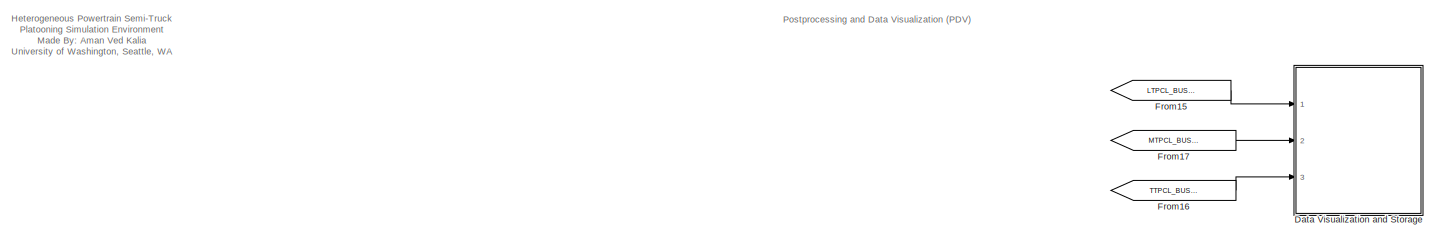
[diagram: root canvas - part 1/4, top center region]
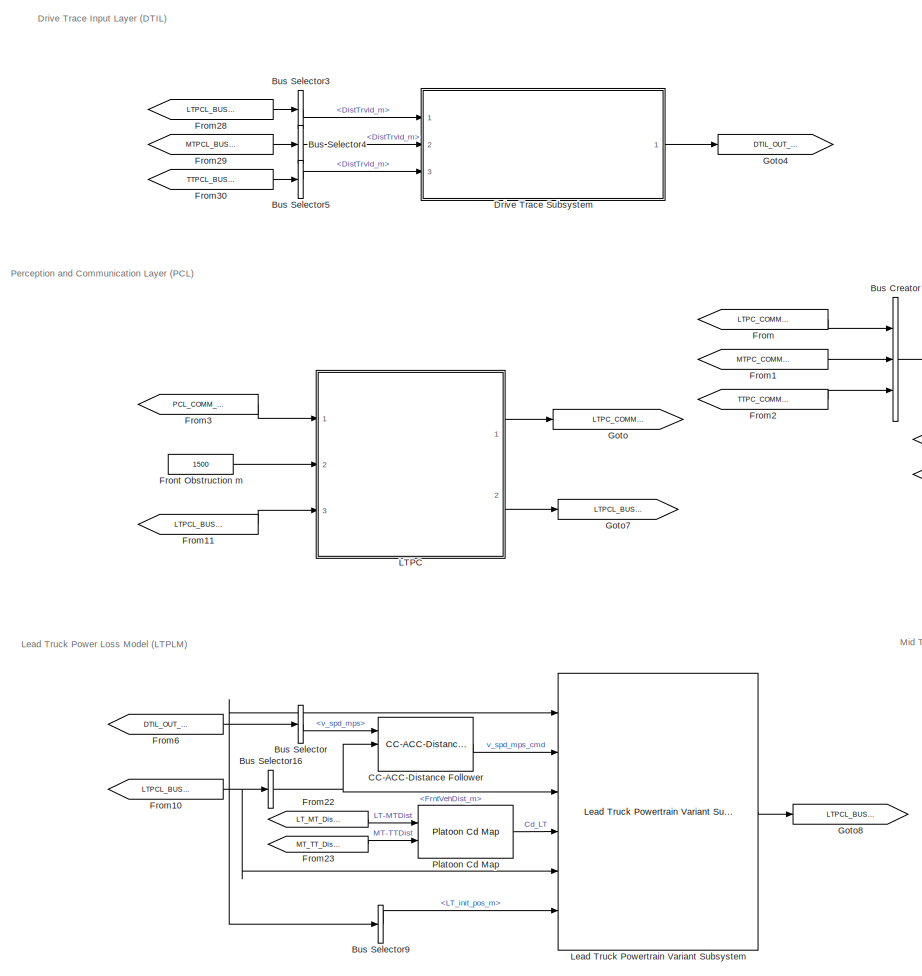
[diagram: root canvas - part 2/4, left side, full height]
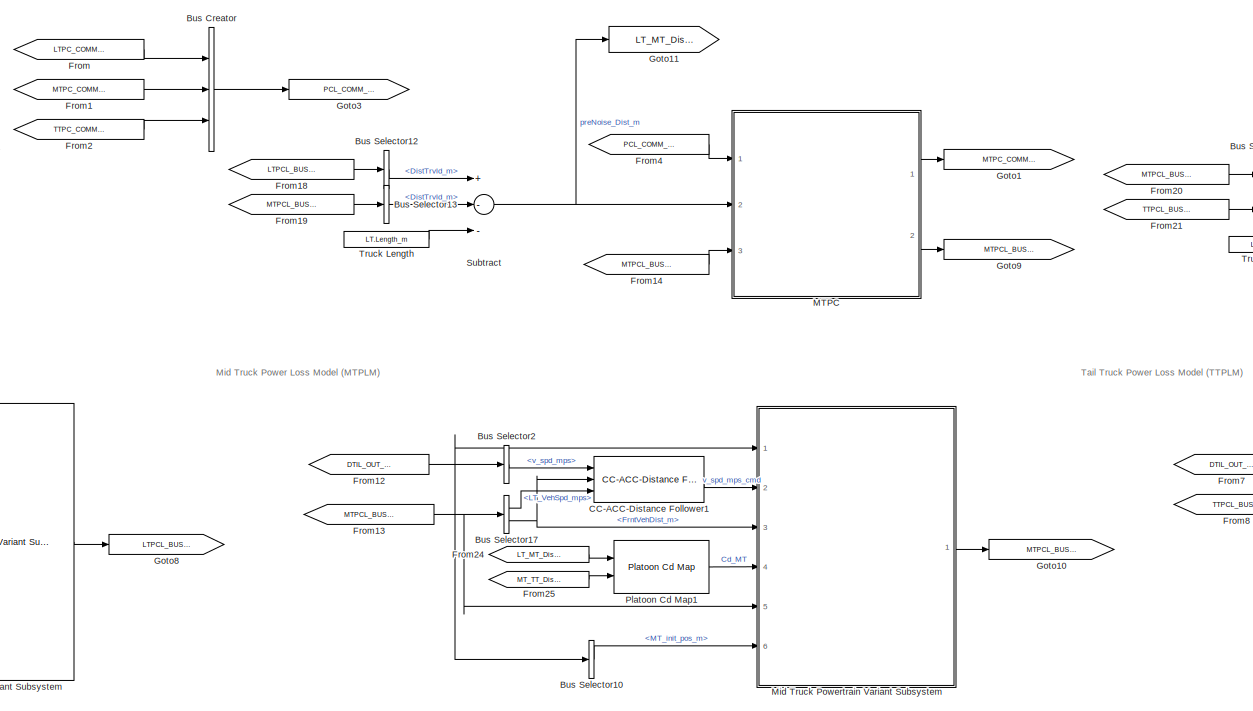
[diagram: root canvas - part 3/4, central region]
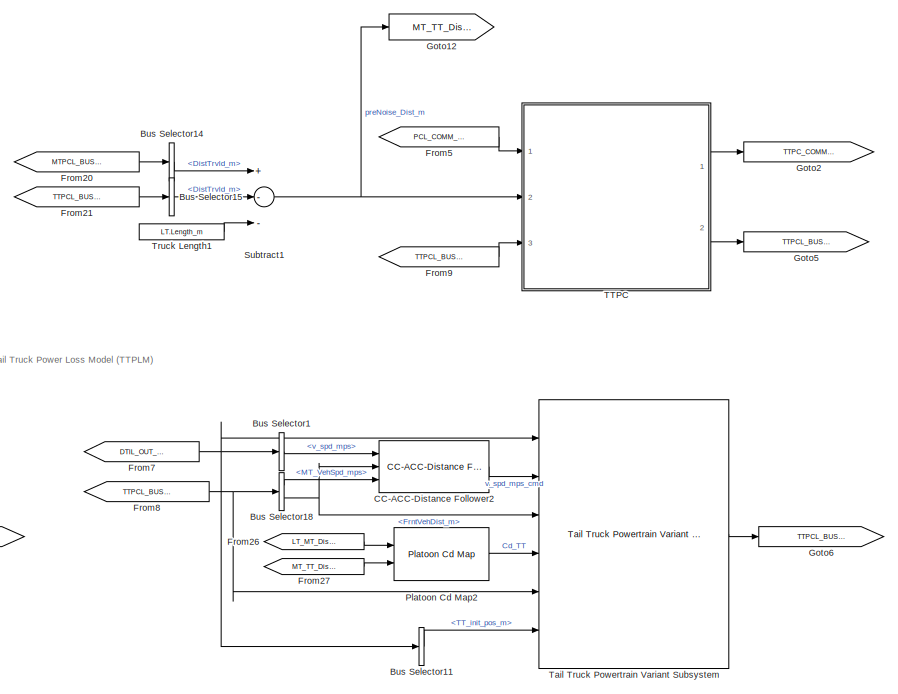
[diagram: root canvas - part 4/4, middle right region]
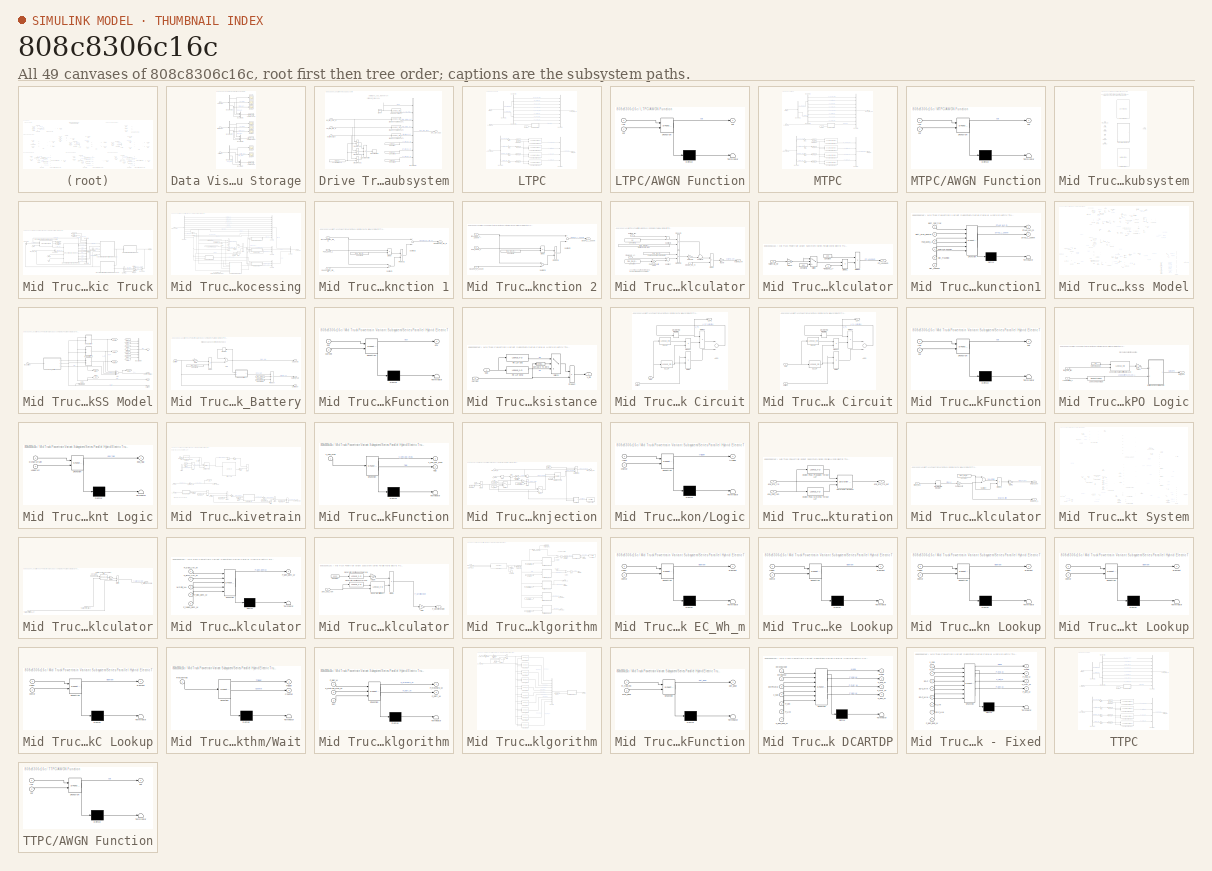
[diagram: thumbnail index - all 49 canvases of the model, root first then tree order]
MODEL slx_808c8306c16c
KIND model
CONFIG AbsTol = auto
CONFIG EnableMultiTasking = off
CONFIG FixedStep = sim_t_step
CONFIG MaxStep = auto
CONFIG MinStep = auto
CONFIG RelTol = 1e-3
CONFIG SampleTimeConstraint = Unconstrained
CONFIG Solver = ode1
CONFIG SolverName = ode1
CONFIG StartTime = 0.0
CONFIG StopTime = simDrv.time_s(end)
BLOCK [BusCreator] Bus Creator
  DisplayOption = bar
  InheritFromInputs = on
  Inputs = 3
  Ports = [3, 1]
BLOCK [BusSelector] Bus Selector
  OutputAsBus = off
  OutputSignals = v_spd_mps
  Ports = [1, 1]
BLOCK [BusSelector] Bus Selector1
  OutputAsBus = off
  OutputSignals = v_spd_mps
  Ports = [1, 1]
BLOCK [BusSelector] Bus Selector10
  OutputAsBus = off
  OutputSignals = MT_init_pos_m
  Ports = [1, 1]
BLOCK [BusSelector] Bus Selector11
  OutputAsBus = off
  OutputSignals = TT_init_pos_m
  Ports = [1, 1]
BLOCK [BusSelector] Bus Selector12
  OutputAsBus = off
  OutputSignals = State_BUS.DistTrvld_m
  Ports = [1, 1]
BLOCK [BusSelector] Bus Selector13
  OutputAsBus = off
  OutputSignals = State_BUS.DistTrvld_m
  Ports = [1, 1]
BLOCK [BusSelector] Bus Selector14
  OutputAsBus = off
  OutputSignals = State_BUS.DistTrvld_m
  Ports = [1, 1]
BLOCK [BusSelector] Bus Selector15
  OutputAsBus = off
  OutputSignals = State_BUS.DistTrvld_m
  Ports = [1, 1]
BLOCK [BusSelector] Bus Selector16
  OutputAsBus = off
  OutputSignals = FrntVehDist_m
  Ports = [1, 1]
BLOCK [BusSelector] Bus Selector17
  OutputAsBus = off
  OutputSignals = LT_VehSpd_mps,FrntVehDist_m
  Ports = [1, 2]
BLOCK [BusSelector] Bus Selector18
  OutputAsBus = off
  OutputSignals = MT_VehSpd_mps,FrntVehDist_m
  Ports = [1, 2]
BLOCK [BusSelector] Bus Selector2
  OutputAsBus = off
  OutputSignals = v_spd_mps
  Ports = [1, 1]
BLOCK [BusSelector] Bus Selector3
  OutputAsBus = off
  OutputSignals = State_BUS.DistTrvld_m
  Ports = [1, 1]
BLOCK [BusSelector] Bus Selector4
  OutputAsBus = off
  OutputSignals = State_BUS.DistTrvld_m
  Ports = [1, 1]
BLOCK [BusSelector] Bus Selector5
  OutputAsBus = off
  OutputSignals = State_BUS.DistTrvld_m
  Ports = [1, 1]
BLOCK [BusSelector] Bus Selector9
  OutputAsBus = off
  OutputSignals = LT_init_pos_m
  Ports = [1, 1]
BLOCK [Reference] CC-ACC-Distance Follower  REF=platooning_custom_blocks/CC-ACC-Distance Follower  (lib defined in slx_64fc7da9e19a)
  Ports = [3, 1]
  SourceBlock = platooning_custom_blocks/CC-ACC-Distance Follower
BLOCK [Reference] CC-ACC-Distance Follower1  REF=platooning_custom_blocks/CC-ACC-Distance Follower  (lib defined in slx_64fc7da9e19a)
  Ports = [3, 1]
  SourceBlock = platooning_custom_blocks/CC-ACC-Distance Follower
BLOCK [Reference] CC-ACC-Distance Follower2  REF=platooning_custom_blocks/CC-ACC-Distance Follower  (lib defined in slx_64fc7da9e19a)
  Ports = [3, 1]
  SourceBlock = platooning_custom_blocks/CC-ACC-Distance Follower
BLOCK [SubSystem] Data Visualization and Storage
  Ports = [3]
  RequestExecContextInheritance = off
BLOCK [BusCreator] Data Visualization and Storage/Bus Creator
  DisplayOption = bar
  InheritFromInputs = on
  Inputs = 3
  Ports = [3, 1]
BLOCK [BusCreator] Data Visualization and Storage/Bus Creator1
  DisplayOption = bar
  InheritFromInputs = on
  Inputs = 3
  Ports = [3, 1]
BLOCK [BusCreator] Data Visualization and Storage/Bus Creator2
  DisplayOption = bar
  InheritFromInputs = on
  Inputs = 3
  Ports = [3, 1]
BLOCK [BusSelector] Data Visualization and Storage/Bus Selector3
  OutputAsBus = off
  OutputSignals = EC_BUS,FC_BUS,State_BUS
  Ports = [1, 3]
BLOCK [BusSelector] Data Visualization and Storage/Bus Selector5
  OutputAsBus = off
  OutputSignals = EC_BUS,State_BUS,FC_BUS
  Ports = [1, 3]
BLOCK [BusSelector] Data Visualization and Storage/Bus Selector7
  OutputAsBus = off
  OutputSignals = EC_BUS,FC_BUS,State_BUS
  Ports = [1, 3]
BLOCK [Inport] Data Visualization and Storage/LeadTruck
  IconDisplay = Port number
BLOCK [Inport] Data Visualization and Storage/MiddleTruck
  IconDisplay = Port number
  Port = 2
BLOCK [Scope] Data Visualization and Storage/Scope
  Floating = off
  NumInputPorts = 1
  Ports = [1]
  ScopeSpecificationString = Simulink.scopes.TimeScopeBlockCfg('CurrentConfiguration', extmgr.ConfigurationSet(extmgr.Configuration('Core','General UI',true),extmgr.Configuration('Core','Source UI',true),extmgr.Configuration('Sources','WiredSimulink',true),extmgr.Configuration('Visuals','Time Domain',true,'SerializedDisplays',{struct('MinYLimReal','-4.23969','MaxYLimReal','38.15718','YLabelReal','','MinYLimMag','0.00000','Max...<+1458ch>
BLOCK [Scope] Data Visualization and Storage/Scope1
  Floating = off
  NumInputPorts = 1
  Ports = [1]
  ScopeSpecificationString = Simulink.scopes.TimeScopeBlockCfg('CurrentConfiguration', extmgr.ConfigurationSet(extmgr.Configuration('Core','General UI',true),extmgr.Configuration('Core','Source UI',true),extmgr.Configuration('Sources','WiredSimulink',true,'DataLoggingVariableName','ScopeData1'),extmgr.Configuration('Visuals','Time Domain',true,'SerializedDisplays',{struct('MinYLimReal','23.20023','MaxYLimReal','29.50825','YLa...<+1499ch>
BLOCK [Scope] Data Visualization and Storage/Scope2
  Floating = off
  NumInputPorts = 1
  Ports = [1]
  ScopeSpecificationString = Simulink.scopes.TimeScopeBlockCfg('CurrentConfiguration', extmgr.ConfigurationSet(extmgr.Configuration('Core','General UI',true),extmgr.Configuration('Core','Source UI',true),extmgr.Configuration('Sources','WiredSimulink',true,'DataLoggingVariableName','ScopeData2'),extmgr.Configuration('Visuals','Time Domain',true,'SerializedDisplays',{struct('MinYLimReal','-3.57849','MaxYLimReal','32.20643','YLa...<+1399ch>
BLOCK [Scope] Data Visualization and Storage/Scope3
  Floating = off
  NumInputPorts = 1
  Ports = [1]
  ScopeSpecificationString = Simulink.scopes.TimeScopeBlockCfg('CurrentConfiguration', extmgr.ConfigurationSet(extmgr.Configuration('Core','General UI',true),extmgr.Configuration('Core','Source UI',true),extmgr.Configuration('Sources','WiredSimulink',true,'DataLoggingVariableName','ScopeData1'),extmgr.Configuration('Visuals','Time Domain',true,'SerializedDisplays',{struct('MinYLimReal','1.36884','MaxYLimReal','1.91494','YLabe...<+1491ch>
BLOCK [Scope] Data Visualization and Storage/Scope4
  Floating = off
  NumInputPorts = 1
  Ports = [1]
  ScopeSpecificationString = Simulink.scopes.TimeScopeBlockCfg('CurrentConfiguration', extmgr.ConfigurationSet(extmgr.Configuration('Core','General UI',true),extmgr.Configuration('Core','Source UI',true),extmgr.Configuration('Sources','WiredSimulink',true,'DataLoggingVariableName','ScopeData3'),extmgr.Configuration('Visuals','Time Domain',true,'SerializedDisplays',{struct('MinYLimReal','0.65425','MaxYLimReal','1.05341','YLabe...<+1580ch>
BLOCK [Scope] Data Visualization and Storage/Scope5
  Floating = off
  NumInputPorts = 1
  Ports = [1]
  ScopeSpecificationString = Simulink.scopes.TimeScopeBlockCfg('CurrentConfiguration', extmgr.ConfigurationSet(extmgr.Configuration('Core','General UI',true),extmgr.Configuration('Core','Source UI',true),extmgr.Configuration('Sources','WiredSimulink',true,'DataLoggingVariableName','ScopeData1'),extmgr.Configuration('Visuals','Time Domain',true,'SerializedDisplays',{struct('MinYLimReal','2.83359','MaxYLimReal','3.67396','YLabe...<+1493ch>
BLOCK [Scope] Data Visualization and Storage/Scope6
  Floating = off
  NumInputPorts = 1
  Ports = [1]
  ScopeSpecificationString = Simulink.scopes.TimeScopeBlockCfg('CurrentConfiguration', extmgr.ConfigurationSet(extmgr.Configuration('Core','General UI',true),extmgr.Configuration('Core','Source UI',true),extmgr.Configuration('Sources','WiredSimulink',true,'DataLoggingVariableName','ScopeData2'),extmgr.Configuration('Visuals','Time Domain',true,'SerializedDisplays',{struct('MinYLimReal','-3.57849','MaxYLimReal','32.20643','YLa...<+1399ch>
BLOCK [Scope] Data Visualization and Storage/Scope7
  Floating = off
  NumInputPorts = 1
  Ports = [1]
  ScopeSpecificationString = Simulink.scopes.TimeScopeBlockCfg('CurrentConfiguration', extmgr.ConfigurationSet(extmgr.Configuration('Core','General UI',true),extmgr.Configuration('Core','Source UI',true),extmgr.Configuration('Sources','WiredSimulink',true,'DataLoggingVariableName','ScopeData1'),extmgr.Configuration('Visuals','Time Domain',true,'SerializedDisplays',{struct('MinYLimReal','-2005.23091','MaxYLimReal','2263.82854'...<+1626ch>
BLOCK [Inport] Data Visualization and Storage/TailTruck
  IconDisplay = Port number
  Port = 3
BLOCK [ToWorkspace] Data Visualization and Storage/To Workspace
  FixptAsFi = on
  MaxDataPoints = inf
  Ports = [1]
  SampleTime = -1
  Save2DSignal = 3-D array (concatenate along third dimension)
  SaveFormat = Timeseries
  VariableName = TT_SimData
BLOCK [ToWorkspace] Data Visualization and Storage/To Workspace1
  FixptAsFi = on
  MaxDataPoints = inf
  Ports = [1]
  SampleTime = -1
  Save2DSignal = 3-D array (concatenate along third dimension)
  SaveFormat = Timeseries
  VariableName = LT_SimData
BLOCK [ToWorkspace] Data Visualization and Storage/To Workspace2
  FixptAsFi = on
  MaxDataPoints = inf
  Ports = [1]
  SampleTime = -1
  Save2DSignal = 3-D array (concatenate along third dimension)
  SaveFormat = Timeseries
  VariableName = MT_SimData
BLOCK [SubSystem] Drive Trace Subsystem
  Ports = [3, 1]
  RequestExecContextInheritance = off
BLOCK [BusCreator] Drive Trace Subsystem/Bus Creator
  DisplayOption = bar
  InheritFromInputs = on
  Inputs = 8
  Ports = [8, 1]
BLOCK [Clock] Drive Trace Subsystem/Clock
  DisplayTime = on
BLOCK [Constant] Drive Trace Subsystem/Constant
  Value = LT.Init_Pos_m
BLOCK [Constant] Drive Trace Subsystem/Constant1
  Value = MT.Init_Pos_m
BLOCK [Constant] Drive Trace Subsystem/Constant2
  Value = TT.Init_Pos_m
BLOCK [Constant] Drive Trace Subsystem/Cycle Distance
  Commented = on
  Value = simDrv.dist_mi(end) * 1609.34
BLOCK [Outport] Drive Trace Subsystem/DTIL_OUT_BUS
  IconDisplay = Port number
BLOCK [Lookup_n-D] Drive Trace Subsystem/Distance vs Grade LUT1
  BreakpointsForDimension1 = simDrv.dist_m(2:6)
  ExtrapMethod = Clip
  InternalRulePriority = Speed
  NumberOfTableDimensions = 1
  Ports = [1, 1]
  RndMeth = Simplest
  Table = simDrv.grade_pct(2:6)
  UseLastTableValue = on
BLOCK [Lookup_n-D] Drive Trace Subsystem/Distance vs Grade LUT2
  BreakpointsForDimension1 = simDrv.dist_m(2:6)
  ExtrapMethod = Clip
  InternalRulePriority = Speed
  NumberOfTableDimensions = 1
  Ports = [1, 1]
  RndMeth = Simplest
  Table = simDrv.grade_pct(2:6)
  UseLastTableValue = on
BLOCK [Lookup_n-D] Drive Trace Subsystem/Distance vs Grade LUT3
  BreakpointsForDimension1 = simDrv.dist_m(2:6)
  ExtrapMethod = Clip
  InternalRulePriority = Speed
  NumberOfTableDimensions = 1
  Ports = [1, 1]
  RndMeth = Simplest
  Table = simDrv.grade_pct(2:6)
  UseLastTableValue = on
BLOCK [RelationalOperator] Drive Trace Subsystem/GreaterThan
  Commented = on
  InputSameDT = off
  OutDataTypeStr = boolean
  Ports = [2, 1]
  RndMeth = Simplest
BLOCK [RelationalOperator] Drive Trace Subsystem/GreaterThan1
  Commented = on
  InputSameDT = off
  OutDataTypeStr = boolean
  Ports = [2, 1]
  RndMeth = Simplest
BLOCK [RelationalOperator] Drive Trace Subsystem/GreaterThan2
  Commented = on
  InputSameDT = off
  OutDataTypeStr = boolean
  Ports = [2, 1]
  RndMeth = Simplest
BLOCK [Logic] Drive Trace Subsystem/Logical Operator
  AllPortsSameDT = off
  Commented = on
  Inputs = 3
  OutDataTypeStr = boolean
  Ports = [3, 1]
BLOCK [Lookup_n-D] Drive Trace Subsystem/Speed vs Time LUT
  BreakpointsForDimension1 = simDrv.time_s
  ExtrapMethod = Clip
  InternalRulePriority = Speed
  NumberOfTableDimensions = 1
  Ports = [1, 1]
  RndMeth = Simplest
  Table = simDrv.spd_mps
  UseLastTableValue = on
BLOCK [Stop] Drive Trace Subsystem/Stop Simulation
  Commented = on
BLOCK [Inport] Drive Trace Subsystem/dist_trvld_lead_m
  IconDisplay = Port number
BLOCK [Inport] Drive Trace Subsystem/dist_trvld_mid_m
  IconDisplay = Port number
  Port = 2
BLOCK [Inport] Drive Trace Subsystem/dist_trvld_tail_m
  IconDisplay = Port number
  Port = 3
BLOCK [From] From
  GotoTag = LTPC_COMM_OUT
BLOCK [From] From1
  GotoTag = MTPC_COMM_OUT
BLOCK [From] From10
  GotoTag = LTPCL_BUS_OUT
BLOCK [From] From11
  GotoTag = LTPCL_BUS_IN
BLOCK [From] From12
  GotoTag = DTIL_OUT_BUS
BLOCK [From] From13
  GotoTag = MTPCL_BUS_OUT
BLOCK [From] From14
  GotoTag = MTPCL_BUS_IN
BLOCK [From] From15
  GotoTag = LTPCL_BUS_IN
BLOCK [From] From16
  GotoTag = TTPCL_BUS_IN
BLOCK [From] From17
  GotoTag = MTPCL_BUS_IN
BLOCK [From] From18
  GotoTag = LTPCL_BUS_IN
BLOCK [From] From19
  GotoTag = MTPCL_BUS_IN
BLOCK [From] From2
  GotoTag = TTPC_COMM_OUT
BLOCK [From] From20
  GotoTag = MTPCL_BUS_IN
BLOCK [From] From21
  GotoTag = TTPCL_BUS_IN
BLOCK [From] From22
  GotoTag = LT_MT_Dist_m
BLOCK [From] From23
  GotoTag = MT_TT_Dist_m
BLOCK [From] From24
  GotoTag = LT_MT_Dist_m
BLOCK [From] From25
  GotoTag = MT_TT_Dist_m
BLOCK [From] From26
  GotoTag = LT_MT_Dist_m
BLOCK [From] From27
  GotoTag = MT_TT_Dist_m
BLOCK [From] From28
  GotoTag = LTPCL_BUS_IN
BLOCK [From] From29
  GotoTag = MTPCL_BUS_IN
BLOCK [From] From3
  GotoTag = PCL_COMM_BUS
BLOCK [From] From30
  GotoTag = TTPCL_BUS_IN
BLOCK [From] From4
  GotoTag = PCL_COMM_BUS
BLOCK [From] From5
  GotoTag = PCL_COMM_BUS
BLOCK [From] From6
  GotoTag = DTIL_OUT_BUS
BLOCK [From] From7
  GotoTag = DTIL_OUT_BUS
BLOCK [From] From8
  GotoTag = TTPCL_BUS_OUT
BLOCK [From] From9
  GotoTag = TTPCL_BUS_IN
BLOCK [Constant] Front Obstruction m
  Value = 1500
BLOCK [Goto] Goto
  GotoTag = LTPC_COMM_OUT
BLOCK [Goto] Goto1
  GotoTag = MTPC_COMM_OUT
BLOCK [Goto] Goto10
  GotoTag = MTPCL_BUS_IN
BLOCK [Goto] Goto11
  GotoTag = LT_MT_Dist_m
BLOCK [Goto] Goto12
  GotoTag = MT_TT_Dist_m
BLOCK [Goto] Goto2
  GotoTag = TTPC_COMM_OUT
BLOCK [Goto] Goto3
  GotoTag = PCL_COMM_BUS
BLOCK [Goto] Goto4
  GotoTag = DTIL_OUT_BUS
BLOCK [Goto] Goto5
  GotoTag = TTPCL_BUS_OUT
BLOCK [Goto] Goto6
  GotoTag = TTPCL_BUS_IN
BLOCK [Goto] Goto7
  GotoTag = LTPCL_BUS_OUT
BLOCK [Goto] Goto8
  GotoTag = LTPCL_BUS_IN
BLOCK [Goto] Goto9
  GotoTag = MTPCL_BUS_OUT
BLOCK [SubSystem] LTPC
  Ports = [3, 2]
  RequestExecContextInheritance = off
BLOCK [SubSystem] LTPC/AWGN Function
  ErrorFcn = Stateflow.Translate.translate
  PermitHierarchicalResolution = ExplicitOnly
  Ports = [2, 1]
  RequestExecContextInheritance = off
  SFBlockType = MATLAB Function
  TreatAsAtomicUnit = on
BLOCK [Demux] LTPC/AWGN Function/ Demux 
  Outputs = 1
  Ports = [1, 1]
BLOCK [S-Function] LTPC/AWGN Function/ SFunction 
  EnableBusSupport = on
  FunctionName = sf_sfun
  PortCounts = [2 2]
  Ports = [2, 2]
  SFcnIsStateOwnerBlock = off
  SFunctionDeploymentMode = off
  Tag = Stateflow S-Function het_platoon_model 1
BLOCK [Terminator] LTPC/AWGN Function/ Terminator 
BLOCK [Inport] LTPC/AWGN Function/inp
  IconDisplay = Port number
BLOCK [Outport] LTPC/AWGN Function/out
  IconDisplay = Port number
BLOCK [Inport] LTPC/AWGN Function/snr
  IconDisplay = Port number
  Port = 2
BLOCK [BusCreator] LTPC/Bus Creator
  DisplayOption = bar
  InheritFromInputs = on
  Inputs = 4
  Ports = [4, 1]
BLOCK [BusCreator] LTPC/Bus Creator1
  DisplayOption = bar
  InheritFromInputs = on
  Inputs = 9
  Ports = [9, 1]
BLOCK [BusSelector] LTPC/Bus Selector
  OutputAsBus = off
  OutputSignals = State_BUS.act_VehSpd_mps,State_BUS.DistTrvld_m,EC_BUS.blndElecEC_Wh_m,State_BUS.estDTE_km
  Ports = [1, 4]
BLOCK [BusSelector] LTPC/Bus Selector1
  OutputAsBus = off
  OutputSignals = MT_COMM_BUS,TT_COMM_BUS
  Ports = [1, 2]
BLOCK [BusSelector] LTPC/Bus Selector2
  OutputAsBus = off
  OutputSignals = MT_VehSpd_mps,MT_DistTrvld_m,MT_EC_Wh_m,MT_estDTE_km
  Ports = [1, 4]
BLOCK [BusSelector] LTPC/Bus Selector3
  OutputAsBus = off
  OutputSignals = TT_VehSpd_mps,TT_DistTrvld_m,TT_EC_Wh_m,TT_estDTE_km
  Ports = [1, 4]
BLOCK [Inport] LTPC/COMM_IN
  IconDisplay = Port number
BLOCK [Outport] LTPC/COMM_OUT
  IconDisplay = Port number
BLOCK [Constant] LTPC/Comm Latency
  Value = 0.2
BLOCK [Constant] LTPC/Constant
  Value = 100
BLOCK [Inport] LTPC/F_PRCPN_IN
  IconDisplay = Port number
  Port = 2
BLOCK [Gain] LTPC/Gain
  OutDataTypeStr = Inherit: Inherit via internal rule
  ParamDataTypeStr = Inherit: Inherit via internal rule
  SaturateOnIntegerOverflow = off
BLOCK [Gain] LTPC/Gain1
  OutDataTypeStr = Inherit: Inherit via internal rule
  ParamDataTypeStr = Inherit: Inherit via internal rule
  SaturateOnIntegerOverflow = off
BLOCK [Gain] LTPC/Gain2
  OutDataTypeStr = Inherit: Inherit via internal rule
  ParamDataTypeStr = Inherit: Inherit via internal rule
  SaturateOnIntegerOverflow = off
BLOCK [Gain] LTPC/Gain3
  OutDataTypeStr = Inherit: Inherit via internal rule
  ParamDataTypeStr = Inherit: Inherit via internal rule
  SaturateOnIntegerOverflow = off
BLOCK [Inport] LTPC/LTPCL_BUS_IN
  IconDisplay = Port number
  Port = 3
BLOCK [Outport] LTPC/LTPCL_BUS_OUT
  IconDisplay = Port number
  Port = 2
BLOCK [RateTransition] LTPC/RT_0p2hz
  OutPortSampleTime = 1
BLOCK [RateTransition] LTPC/RT_10hz
  OutPortSampleTime = 0.1
BLOCK [RateTransition] LTPC/RT_1hz
  OutPortSampleTime = 1
BLOCK [RateTransition] LTPC/RT_1hz1
  OutPortSampleTime = 1
BLOCK [Reference] LTPC/V2V Communication Block  REF=platooning_custom_blocks/V2V Communication Block  (lib defined in slx_64fc7da9e19a)
  Ports = [2, 1]
  SourceBlock = platooning_custom_blocks/V2V Communication Block
BLOCK [Reference] LTPC/V2V Communication Block1  REF=platooning_custom_blocks/V2V Communication Block  (lib defined in slx_64fc7da9e19a)
  Ports = [2, 1]
  SourceBlock = platooning_custom_blocks/V2V Communication Block
BLOCK [Reference] LTPC/V2V Communication Block2  REF=platooning_custom_blocks/V2V Communication Block  (lib defined in slx_64fc7da9e19a)
  Ports = [2, 1]
  SourceBlock = platooning_custom_blocks/V2V Communication Block
BLOCK [Reference] LTPC/V2V Communication Block3  REF=platooning_custom_blocks/V2V Communication Block  (lib defined in slx_64fc7da9e19a)
  Ports = [2, 1]
  SourceBlock = platooning_custom_blocks/V2V Communication Block
BLOCK [Reference] Lead Truck Powertrain Variant Subsystem  REF=platooning_custom_blocks/Lead Truck Powertrain Variant Subsystem  (lib defined in slx_64fc7da9e19a)
  Ports = [6, 1]
  SourceBlock = platooning_custom_blocks/Lead Truck Powertrain Variant Subsystem
  SourceType = SubSystem
BLOCK [SubSystem] MTPC
  Ports = [3, 2]
  RequestExecContextInheritance = off
BLOCK [SubSystem] MTPC/AWGN Function
  ErrorFcn = Stateflow.Translate.translate
  PermitHierarchicalResolution = ExplicitOnly
  Ports = [2, 1]
  RequestExecContextInheritance = off
  SFBlockType = MATLAB Function
  TreatAsAtomicUnit = on
BLOCK [Demux] MTPC/AWGN Function/ Demux 
  Outputs = 1
  Ports = [1, 1]
BLOCK [S-Function] MTPC/AWGN Function/ SFunction 
  EnableBusSupport = on
  FunctionName = sf_sfun
  PortCounts = [2 2]
  Ports = [2, 2]
  SFcnIsStateOwnerBlock = off
  SFunctionDeploymentMode = off
  Tag = Stateflow S-Function het_platoon_model 2
BLOCK [Terminator] MTPC/AWGN Function/ Terminator 
BLOCK [Inport] MTPC/AWGN Function/inp
  IconDisplay = Port number
BLOCK [Outport] MTPC/AWGN Function/out
  IconDisplay = Port number
BLOCK [Inport] MTPC/AWGN Function/snr
  IconDisplay = Port number
  Port = 2
BLOCK [BusCreator] MTPC/Bus Creator
  DisplayOption = bar
  InheritFromInputs = on
  Inputs = 4
  Ports = [4, 1]
BLOCK [BusCreator] MTPC/Bus Creator1
  DisplayOption = bar
  InheritFromInputs = on
  Inputs = 9
  Ports = [9, 1]
BLOCK [BusSelector] MTPC/Bus Selector
  OutputAsBus = off
  OutputSignals = State_BUS.act_VehSpd_mps,State_BUS.DistTrvld_m,EC_BUS.blndElecEC_Wh_m,State_BUS.estDTE_km
  Ports = [1, 4]
BLOCK [BusSelector] MTPC/Bus Selector1
  OutputAsBus = off
  OutputSignals = LT_COMM_BUS,TT_COMM_BUS
  Ports = [1, 2]
BLOCK [BusSelector] MTPC/Bus Selector2
  OutputAsBus = off
  OutputSignals = LT_VehSpd_mps,LT_DistTrvld_m,LT_EC_Wh_m,LT_estDTE_km
  Ports = [1, 4]
BLOCK [BusSelector] MTPC/Bus Selector3
  OutputAsBus = off
  OutputSignals = TT_VehSpd_mps,TT_DistTrvld_m,TT_EC_Wh_m,TT_estDTE_km
  Ports = [1, 4]
BLOCK [Inport] MTPC/COMM_IN
  IconDisplay = Port number
BLOCK [Outport] MTPC/COMM_OUT
  IconDisplay = Port number
BLOCK [Constant] MTPC/Comm Latency
  Value = 0.2
BLOCK [Constant] MTPC/Constant
  Value = 100
BLOCK [Inport] MTPC/F_PRCPN_IN
  IconDisplay = Port number
  Port = 2
BLOCK [Gain] MTPC/Gain
  OutDataTypeStr = Inherit: Inherit via internal rule
  ParamDataTypeStr = Inherit: Inherit via internal rule
  SaturateOnIntegerOverflow = off
BLOCK [Gain] MTPC/Gain1
  OutDataTypeStr = Inherit: Inherit via internal rule
  ParamDataTypeStr = Inherit: Inherit via internal rule
  SaturateOnIntegerOverflow = off
BLOCK [Gain] MTPC/Gain2
  OutDataTypeStr = Inherit: Inherit via internal rule
  ParamDataTypeStr = Inherit: Inherit via internal rule
  SaturateOnIntegerOverflow = off
BLOCK [Gain] MTPC/Gain3
  OutDataTypeStr = Inherit: Inherit via internal rule
  ParamDataTypeStr = Inherit: Inherit via internal rule
  SaturateOnIntegerOverflow = off
BLOCK [Inport] MTPC/MTPCL_BUS_IN
  IconDisplay = Port number
  Port = 3
BLOCK [Outport] MTPC/MTPCL_BUS_OUT
  IconDisplay = Port number
  Port = 2
BLOCK [RateTransition] MTPC/RT_0p2hz
  OutPortSampleTime = 1
BLOCK [RateTransition] MTPC/RT_10hz
  OutPortSampleTime = 0.1
BLOCK [RateTransition] MTPC/RT_1hz
  OutPortSampleTime = 1
BLOCK [RateTransition] MTPC/RT_1hz1
  OutPortSampleTime = 1
BLOCK [Reference] MTPC/V2V Communication Block  REF=platooning_custom_blocks/V2V Communication Block  (lib defined in slx_64fc7da9e19a)
  Ports = [2, 1]
  SourceBlock = platooning_custom_blocks/V2V Communication Block
BLOCK [Reference] MTPC/V2V Communication Block1  REF=platooning_custom_blocks/V2V Communication Block  (lib defined in slx_64fc7da9e19a)
  Ports = [2, 1]
  SourceBlock = platooning_custom_blocks/V2V Communication Block
BLOCK [Reference] MTPC/V2V Communication Block2  REF=platooning_custom_blocks/V2V Communication Block  (lib defined in slx_64fc7da9e19a)
  Ports = [2, 1]
  SourceBlock = platooning_custom_blocks/V2V Communication Block
BLOCK [Reference] MTPC/V2V Communication Block3  REF=platooning_custom_blocks/V2V Communication Block  (lib defined in slx_64fc7da9e19a)
  Ports = [2, 1]
  SourceBlock = platooning_custom_blocks/V2V Communication Block
BLOCK [SubSystem] Mid Truck Powertrain Variant Subsystem
  AncestorBlock = platooning_custom_blocks/Mid Truck Powertrain Variant Subsystem
  Ports = [6, 1]
  RequestExecContextInheritance = off
  Variant = on
BLOCK [Reference] Mid Truck Powertrain Variant Subsystem/Battery Electric Truck  REF=platooning_custom_blocks/Battery Electric Truck  (lib defined in slx_64fc7da9e19a)
  Ports = [6, 1]
  SourceBlock = platooning_custom_blocks/Battery Electric Truck
  SourceType = SubSystem
BLOCK [Inport] Mid Truck Powertrain Variant Subsystem/Cd
  IconDisplay = Port number
  Port = 4
BLOCK [Reference] Mid Truck Powertrain Variant Subsystem/Conventional Truck  REF=platooning_custom_blocks/Conventional Truck  (lib defined in slx_64fc7da9e19a)
  Ports = [6, 1]
  SourceBlock = platooning_custom_blocks/Conventional Truck
  SourceType = SubSystem
BLOCK [Inport] Mid Truck Powertrain Variant Subsystem/F_Dist_m
  IconDisplay = Port number
  Port = 3
BLOCK [Inport] Mid Truck Powertrain Variant Subsystem/From_DTIL_BUS
  IconDisplay = Port number
BLOCK [Inport] Mid Truck Powertrain Variant Subsystem/From_PCL
  IconDisplay = Port number
  Port = 5
BLOCK [Inport] Mid Truck Powertrain Variant Subsystem/Init_Pos_m
  IconDisplay = Port number
  Port = 6
BLOCK [SubSystem] Mid Truck Powertrain Variant Subsystem/Series Parallel Hybrid Electric Truck
  AncestorBlock = platooning_custom_blocks/Series Parallel Hybrid\nElectric Truck
  Ports = [6, 1]
  RequestExecContextInheritance = off
  VariantControl = MT.Type == 2
BLOCK [Reference] Mid Truck Powertrain Variant Subsystem/Series Parallel Hybrid Electric Truck/2 DOF Longitudinal Dynamics Model - Force Input  REF=platooning_custom_blocks/2 DOF Longitudinal Dynamics Model - Force Input  (lib defined in slx_64fc7da9e19a)
  Ports = [4, 10]
  SourceBlock = platooning_custom_blocks/2 DOF Longitudinal Dynamics Model - Force Input
BLOCK [BusCreator] Mid Truck Powertrain Variant Subsystem/Series Parallel Hybrid Electric Truck/Bus Creator
  DisplayOption = bar
  InheritFromInputs = on
  Inputs = 3
  Ports = [3, 1]
BLOCK [BusCreator] Mid Truck Powertrain Variant Subsystem/Series Parallel Hybrid Electric Truck/Bus Creator1
  DisplayOption = bar
  InheritFromInputs = on
  Inputs = 4
  Ports = [4, 1]
BLOCK [BusCreator] Mid Truck Powertrain Variant Subsystem/Series Parallel Hybrid Electric Truck/Bus Creator2
  DisplayOption = bar
  InheritFromInputs = on
  Inputs = 4
  Ports = [4, 1]
BLOCK [BusCreator] Mid Truck Powertrain Variant Subsystem/Series Parallel Hybrid Electric Truck/Bus Creator3
  DisplayOption = bar
  InheritFromInputs = on
  Inputs = 4
  Ports = [4, 1]
BLOCK [BusSelector] Mid Truck Powertrain Variant Subsystem/Series Parallel Hybrid Electric Truck/Bus Selector
  OutputAsBus = off
  OutputSignals = opt_gear
  Ports = [1, 1]
BLOCK [BusSelector] Mid Truck Powertrain Variant Subsystem/Series Parallel Hybrid Electric Truck/Bus Selector1
  OutputAsBus = off
  OutputSignals = EC_BUS.blndElecEC_Wh_m,State_BUS.DistTrvld_m
  Ports = [1, 2]
BLOCK [BusSelector] Mid Truck Powertrain Variant Subsystem/Series Parallel Hybrid Electric Truck/Bus Selector2
  OutputAsBus = off
  OutputSignals = tail_grade_pct
  Ports = [1, 1]
BLOCK [BusSelector] Mid Truck Powertrain Variant Subsystem/Series Parallel Hybrid Electric Truck/Bus Selector3
  OutputAsBus = off
  OutputSignals = clock
  Ports = [1, 1]
BLOCK [Inport] Mid Truck Powertrain Variant Subsystem/Series Parallel Hybrid Electric Truck/Cd
  IconDisplay = Port number
  Port = 4
BLOCK [Inport] Mid Truck Powertrain Variant Subsystem/Series Parallel Hybrid Electric Truck/F_Dist_m
  IconDisplay = Port number
  Port = 3
BLOCK [From] Mid Truck Powertrain Variant Subsystem/Series Parallel Hybrid Electric Truck/From
  GotoTag = gear_ratio
BLOCK [From] Mid Truck Powertrain Variant Subsystem/Series Parallel Hybrid Electric Truck/From1
  GotoTag = gear_cmd
BLOCK [Inport] Mid Truck Powertrain Variant Subsystem/Series Parallel Hybrid Electric Truck/From_DTIL_BUS
  IconDisplay = Port number
BLOCK [Inport] Mid Truck Powertrain Variant Subsystem/Series Parallel Hybrid Electric Truck/From_PCL
  IconDisplay = Port number
  Port = 5
BLOCK [Goto] Mid Truck Powertrain Variant Subsystem/Series Parallel Hybrid Electric Truck/Goto
  GotoTag = gear_ratio
BLOCK [Goto] Mid Truck Powertrain Variant Subsystem/Series Parallel Hybrid Electric Truck/Goto1
  GotoTag = gear_cmd
BLOCK [Inport] Mid Truck Powertrain Variant Subsystem/Series Parallel Hybrid Electric Truck/Init_Pos_m
  IconDisplay = Port number
  Port = 6
BLOCK [SubSystem] Mid Truck Powertrain Variant Subsystem/Series Parallel Hybrid Electric Truck/Series Parallel Hybrid Electric Post-Processing
  Ports = [1, 1]
  RequestExecContextInheritance = off
BLOCK [Sum] Mid Truck Powertrain Variant Subsystem/Series Parallel Hybrid Electric Truck/Series Parallel Hybrid Electric Post-Processing/Add
  InputSameDT = off
  OutDataTypeStr = Inherit: Inherit via internal rule
  Ports = [2, 1]
  SaturateOnIntegerOverflow = off
BLOCK [Constant] Mid Truck Powertrain Variant Subsystem/Series Parallel Hybrid Electric Truck/Series Parallel Hybrid Electric Post-Processing/Battery Energy Max
  Value = msk_batt_Ns * msk_batt_Np * msk_batt_Nmod * msk_cell_Vnom * msk_cell_Q_Ah
BLOCK [SubSystem] Mid Truck Powertrain Variant Subsystem/Series Parallel Hybrid Electric Truck/Series Parallel Hybrid Electric Post-Processing/Blending Function 1
  Ports = [3, 1]
  RequestExecContextInheritance = off
BLOCK [Constant] Mid Truck Powertrain Variant Subsystem/Series Parallel Hybrid Electric Truck/Series Parallel Hybrid Electric Post-Processing/Blending Function 1/Constant1
  Value = msk_fuel_init_liters
BLOCK [Product] Mid Truck Powertrain Variant Subsystem/Series Parallel Hybrid Electric Truck/Series Parallel Hybrid Electric Post-Processing/Blending Function 1/Divide
  InputSameDT = off
  Inputs = */
  OutDataTypeStr = Inherit: Inherit via internal rule
  Ports = [2, 1]
  RndMeth = Floor
  SaturateOnIntegerOverflow = off
BLOCK [Inport] Mid Truck Powertrain Variant Subsystem/Series Parallel Hybrid Electric Truck/Series Parallel Hybrid Electric Post-Processing/Blending Function 1/Fuel_Used_L
  IconDisplay = Port number
  Port = 2
BLOCK [Product] Mid Truck Powertrain Variant Subsystem/Series Parallel Hybrid Electric Truck/Series Parallel Hybrid Electric Post-Processing/Blending Function 1/Product1
  InputSameDT = off
  OutDataTypeStr = Inherit: Inherit via internal rule
  Ports = [2, 1]
  RndMeth = Floor
  SaturateOnIntegerOverflow = off
BLOCK [Sum] Mid Truck Powertrain Variant Subsystem/Series Parallel Hybrid Electric Truck/Series Parallel Hybrid Electric Post-Processing/Blending Function 1/Subtract1
  InputSameDT = off
  Inputs = -+
  OutDataTypeStr = Inherit: Inherit via internal rule
  Ports = [2, 1]
  SaturateOnIntegerOverflow = off
BLOCK [Sum] Mid Truck Powertrain Variant Subsystem/Series Parallel Hybrid Electric Truck/Series Parallel Hybrid Electric Post-Processing/Blending Function 1/Subtract2
  InputSameDT = off
  OutDataTypeStr = Inherit: Inherit via internal rule
  Ports = [2, 1]
  SaturateOnIntegerOverflow = off
BLOCK [Outport] Mid Truck Powertrain Variant Subsystem/Series Parallel Hybrid Electric Truck/Series Parallel Hybrid Electric Post-Processing/Blending Function 1/blndElecEC_Wh_m
  IconDisplay = Port number
BLOCK [Inport] Mid Truck Powertrain Variant Subsystem/Series Parallel Hybrid Electric Truck/Series Parallel Hybrid Electric Post-Processing/Blending Function 1/runAvgFuelEC_Wh_m
  IconDisplay = Port number
BLOCK [Inport] Mid Truck Powertrain Variant Subsystem/Series Parallel Hybrid Electric Truck/Series Parallel Hybrid Electric Post-Processing/Blending Function 1/stAvgFuelEC_Wh_m
  IconDisplay = Port number
  Port = 3
BLOCK [SubSystem] Mid Truck Powertrain Variant Subsystem/Series Parallel Hybrid Electric Truck/Series Parallel Hybrid Electric Post-Processing/Blending Function 2
  Ports = [3, 1]
  RequestExecContextInheritance = off
BLOCK [Constant] Mid Truck Powertrain Variant Subsystem/Series Parallel Hybrid Electric Truck/Series Parallel Hybrid Electric Post-Processing/Blending Function 2/Constant1
  Value = msk_fuel_init_liters
BLOCK [Product] Mid Truck Powertrain Variant Subsystem/Series Parallel Hybrid Electric Truck/Series Parallel Hybrid Electric Post-Processing/Blending Function 2/Divide
  InputSameDT = off
  Inputs = */
  OutDataTypeStr = Inherit: Inherit via internal rule
  Ports = [2, 1]
  RndMeth = Floor
  SaturateOnIntegerOverflow = off
BLOCK [Inport] Mid Truck Powertrain Variant Subsystem/Series Parallel Hybrid Electric Truck/Series Parallel Hybrid Electric Post-Processing/Blending Function 2/Fuel_Used_L
  IconDisplay = Port number
  Port = 2
BLOCK [Product] Mid Truck Powertrain Variant Subsystem/Series Parallel Hybrid Electric Truck/Series Parallel Hybrid Electric Post-Processing/Blending Function 2/Product1
  InputSameDT = off
  OutDataTypeStr = Inherit: Inherit via internal rule
  Ports = [2, 1]
  RndMeth = Floor
  SaturateOnIntegerOverflow = off
BLOCK [Sum] Mid Truck Powertrain Variant Subsystem/Series Parallel Hybrid Electric Truck/Series Parallel Hybrid Electric Post-Processing/Blending Function 2/Subtract1
  InputSameDT = off
  Inputs = -+
  OutDataTypeStr = Inherit: Inherit via internal rule
  Ports = [2, 1]
  SaturateOnIntegerOverflow = off
BLOCK [Sum] Mid Truck Powertrain Variant Subsystem/Series Parallel Hybrid Electric Truck/Series Parallel Hybrid Electric Post-Processing/Blending Function 2/Subtract2
  InputSameDT = off
  OutDataTypeStr = Inherit: Inherit via internal rule
  Ports = [2, 1]
  SaturateOnIntegerOverflow = off
BLOCK [Outport] Mid Truck Powertrain Variant Subsystem/Series Parallel Hybrid Electric Truck/Series Parallel Hybrid Electric Post-Processing/Blending Function 2/blndFC_L_100km
  IconDisplay = Port number
BLOCK [Inport] Mid Truck Powertrain Variant Subsystem/Series Parallel Hybrid Electric Truck/Series Parallel Hybrid Electric Post-Processing/Blending Function 2/runAvgFC_L_100km
  IconDisplay = Port number
BLOCK [Inport] Mid Truck Powertrain Variant Subsystem/Series Parallel Hybrid Electric Truck/Series Parallel Hybrid Electric Post-Processing/Blending Function 2/stAvgFC_L_100km
  IconDisplay = Port number
  Port = 3
BLOCK [BusCreator] Mid Truck Powertrain Variant Subsystem/Series Parallel Hybrid Electric Truck/Series Parallel Hybrid Electric Post-Processing/Bus Creator1
  DisplayOption = bar
  InheritFromInputs = on
  Inputs = 11
  Ports = [11, 1]
BLOCK [BusCreator] Mid Truck Powertrain Variant Subsystem/Series Parallel Hybrid Electric Truck/Series Parallel Hybrid Electric Post-Processing/Bus Creator2
  DisplayOption = bar
  InheritFromInputs = on
  Inputs = 3
  Ports = [3, 1]
BLOCK [BusCreator] Mid Truck Powertrain Variant Subsystem/Series Parallel Hybrid Electric Truck/Series Parallel Hybrid Electric Post-Processing/Bus Creator3
  DisplayOption = bar
  InheritFromInputs = on
  Inputs = 3
  Ports = [3, 1]
BLOCK [BusCreator] Mid Truck Powertrain Variant Subsystem/Series Parallel Hybrid Electric Truck/Series Parallel Hybrid Electric Post-Processing/Bus Creator5
  DisplayOption = bar
  InheritFromInputs = on
  Inputs = 3
  Ports = [3, 1]
BLOCK [BusSelector] Mid Truck Powertrain Variant Subsystem/Series Parallel Hybrid Electric Truck/Series Parallel Hybrid Electric Post-Processing/Bus Selector
  OutputAsBus = off
  OutputSignals = Batt_Voltage_V,Batt_EPO_Flag,Batt_Current_A,P_gen_mech_W,GearCmd,eng_spd_rpm,Batt_SOC_frac,DistTrvld_m,Init_Pos_m,act_VehSpd_mps,fuelUsed_L
  Ports = [1, 11]
BLOCK [Constant] Mid Truck Powertrain Variant Subsystem/Series Parallel Hybrid Electric Truck/Series Parallel Hybrid Electric Post-Processing/Constant
  Value = msk_batt_soc_init
BLOCK [Constant] Mid Truck Powertrain Variant Subsystem/Series Parallel Hybrid Electric Truck/Series Parallel Hybrid Electric Post-Processing/Constant2
  Value = eps
BLOCK [SubSystem] Mid Truck Powertrain Variant Subsystem/Series Parallel Hybrid Electric Truck/Series Parallel Hybrid Electric Post-Processing/Distance to Empty Calculator
  Ports = [3, 1]
  RequestExecContextInheritance = off
BLOCK [Inport] Mid Truck Powertrain Variant Subsystem/Series Parallel Hybrid Electric Truck/Series Parallel Hybrid Electric Post-Processing/Distance to Empty Calculator/<fuelUsed_L>
  IconDisplay = Port number
  Port = 2
BLOCK [Constant] Mid Truck Powertrain Variant Subsystem/Series Parallel Hybrid Electric Truck/Series Parallel Hybrid Electric Post-Processing/Distance to Empty Calculator/Battery Energy Max
  Value = msk_batt_Ns * msk_batt_Np * msk_batt_Nmod * msk_cell_Vnom * msk_cell_Q_Ah
BLOCK [Constant] Mid Truck Powertrain Variant Subsystem/Series Parallel Hybrid Electric Truck/Series Parallel Hybrid Electric Post-Processing/Distance to Empty Calculator/Constant
  Value = msk_fuel_init_liters
BLOCK [Constant] Mid Truck Powertrain Variant Subsystem/Series Parallel Hybrid Electric Truck/Series Parallel Hybrid Electric Post-Processing/Distance to Empty Calculator/Constant1
  Value = 0.2
BLOCK [Product] Mid Truck Powertrain Variant Subsystem/Series Parallel Hybrid Electric Truck/Series Parallel Hybrid Electric Post-Processing/Distance to Empty Calculator/Divide
  InputSameDT = off
  Inputs = */
  OutDataTypeStr = Inherit: Inherit via internal rule
  Ports = [2, 1]
  RndMeth = Floor
  SaturateOnIntegerOverflow = off
BLOCK [Constant] Mid Truck Powertrain Variant Subsystem/Series Parallel Hybrid Electric Truck/Series Parallel Hybrid Electric Post-Processing/Distance to Empty Calculator/Fuel LHV energy per volume
  Value = msk_fuel_rho_kgpl * msk_fuel_lhv_kwhpkg
BLOCK [Gain] Mid Truck Powertrain Variant Subsystem/Series Parallel Hybrid Electric Truck/Series Parallel Hybrid Electric Post-Processing/Distance to Empty Calculator/Percent of Fuel in Tank
  Gain = 0.9
  OutDataTypeStr = Inherit: Inherit via internal rule
  ParamDataTypeStr = Inherit: Inherit via internal rule
  SaturateOnIntegerOverflow = off
BLOCK [Product] Mid Truck Powertrain Variant Subsystem/Series Parallel Hybrid Electric Truck/Series Parallel Hybrid Electric Post-Processing/Distance to Empty Calculator/Product2
  InputSameDT = off
  OutDataTypeStr = Inherit: Inherit via internal rule
  Ports = [2, 1]
  RndMeth = Floor
  SaturateOnIntegerOverflow = off
BLOCK [Product] Mid Truck Powertrain Variant Subsystem/Series Parallel Hybrid Electric Truck/Series Parallel Hybrid Electric Post-Processing/Distance to Empty Calculator/Product3
  InputSameDT = off
  OutDataTypeStr = Inherit: Inherit via internal rule
  Ports = [2, 1]
  RndMeth = Floor
  SaturateOnIntegerOverflow = off
BLOCK [Sum] Mid Truck Powertrain Variant Subsystem/Series Parallel Hybrid Electric Truck/Series Parallel Hybrid Electric Post-Processing/Distance to Empty Calculator/Subtract
  InputSameDT = off
  Inputs = -+
  OutDataTypeStr = Inherit: Inherit via internal rule
  Ports = [2, 1]
  SaturateOnIntegerOverflow = off
BLOCK [Sum] Mid Truck Powertrain Variant Subsystem/Series Parallel Hybrid Electric Truck/Series Parallel Hybrid Electric Post-Processing/Distance to Empty Calculator/Subtract1
  InputSameDT = off
  Inputs = +-
  OutDataTypeStr = Inherit: Inherit via internal rule
  Ports = [2, 1]
  SaturateOnIntegerOverflow = off
BLOCK [Sum] Mid Truck Powertrain Variant Subsystem/Series Parallel Hybrid Electric Truck/Series Parallel Hybrid Electric Post-Processing/Distance to Empty Calculator/Subtract2
  IconShape = round
  InputSameDT = off
  Inputs = ++|
  OutDataTypeStr = Inherit: Inherit via internal rule
  Ports = [2, 1]
  SaturateOnIntegerOverflow = off
BLOCK [Inport] Mid Truck Powertrain Variant Subsystem/Series Parallel Hybrid Electric Truck/Series Parallel Hybrid Electric Post-Processing/Distance to Empty Calculator/battSOC_frac
  IconDisplay = Port number
  Port = 3
BLOCK [Inport] Mid Truck Powertrain Variant Subsystem/Series Parallel Hybrid Electric Truck/Series Parallel Hybrid Electric Post-Processing/Distance to Empty Calculator/blndEC_Wh_m
  IconDisplay = Port number
BLOCK [Outport] Mid Truck Powertrain Variant Subsystem/Series Parallel Hybrid Electric Truck/Series Parallel Hybrid Electric Post-Processing/Distance to Empty Calculator/estDTE_km
  IconDisplay = Port number
BLOCK [Gain] Mid Truck Powertrain Variant Subsystem/Series Parallel Hybrid Electric Truck/Series Parallel Hybrid Electric Post-Processing/Distance to Empty Calculator/kWh2Wh
  Gain = 1000
  OutDataTypeStr = Inherit: Inherit via internal rule
  ParamDataTypeStr = Inherit: Inherit via internal rule
  SaturateOnIntegerOverflow = off
BLOCK [Gain] Mid Truck Powertrain Variant Subsystem/Series Parallel Hybrid Electric Truck/Series Parallel Hybrid Electric Post-Processing/Distance to Empty Calculator/m2km
  Gain = 0.001
  OutDataTypeStr = Inherit: Inherit via internal rule
  ParamDataTypeStr = Inherit: Inherit via internal rule
  SaturateOnIntegerOverflow = off
BLOCK [Product] Mid Truck Powertrain Variant Subsystem/Series Parallel Hybrid Electric Truck/Series Parallel Hybrid Electric Post-Processing/Divide1
  InputSameDT = off
  Inputs = */
  OutDataTypeStr = Inherit: Inherit via internal rule
  Ports = [2, 1]
  RndMeth = Floor
  SaturateOnIntegerOverflow = off
BLOCK [SubSystem] Mid Truck Powertrain Variant Subsystem/Series Parallel Hybrid Electric Truck/Series Parallel Hybrid Electric Post-Processing/Fuel Consumption Calculator
  Ports = [2, 1]
  RequestExecContextInheritance = off
BLOCK [Inport] Mid Truck Powertrain Variant Subsystem/Series Parallel Hybrid Electric Truck/Series Parallel Hybrid Electric Post-Processing/Fuel Consumption Calculator/<DistTrvld_m>
  IconDisplay = Port number
  Port = 2
BLOCK [Inport] Mid Truck Powertrain Variant Subsystem/Series Parallel Hybrid Electric Truck/Series Parallel Hybrid Electric Post-Processing/Fuel Consumption Calculator/<fuelUsed_L>
  IconDisplay = Port number
BLOCK [Constant] Mid Truck Powertrain Variant Subsystem/Series Parallel Hybrid Electric Truck/Series Parallel Hybrid Electric Post-Processing/Fuel Consumption Calculator/Constant
  Value = 100
BLOCK [Constant] Mid Truck Powertrain Variant Subsystem/Series Parallel Hybrid Electric Truck/Series Parallel Hybrid Electric Post-Processing/Fuel Consumption Calculator/Constant1
  Value = eps
BLOCK [Product] Mid Truck Powertrain Variant Subsystem/Series Parallel Hybrid Electric Truck/Series Parallel Hybrid Electric Post-Processing/Fuel Consumption Calculator/Divide1
  InputSameDT = off
  Inputs = */
  OutDataTypeStr = Inherit: Inherit via internal rule
  Ports = [2, 1]
  RndMeth = Floor
  SaturateOnIntegerOverflow = off
BLOCK [Product] Mid Truck Powertrain Variant Subsystem/Series Parallel Hybrid Electric Truck/Series Parallel Hybrid Electric Post-Processing/Fuel Consumption Calculator/Divide2
  InputSameDT = off
  Inputs = */
  OutDataTypeStr = Inherit: Inherit via internal rule
  Ports = [2, 1]
  RndMeth = Floor
  SaturateOnIntegerOverflow = off
BLOCK [Outport] Mid Truck Powertrain Variant Subsystem/Series Parallel Hybrid Electric Truck/Series Parallel Hybrid Electric Post-Processing/Fuel Consumption Calculator/FC_Lp100km
  IconDisplay = Port number
BLOCK [Switch] Mid Truck Powertrain Variant Subsystem/Series Parallel Hybrid Electric Truck/Series Parallel Hybrid Electric Post-Processing/Fuel Consumption Calculator/Switch
  Criteria = u2 > Threshold
  InputSameDT = off
  SaturateOnIntegerOverflow = off
BLOCK [Gain] Mid Truck Powertrain Variant Subsystem/Series Parallel Hybrid Electric Truck/Series Parallel Hybrid Electric Post-Processing/Fuel Consumption Calculator/m2km
  Gain = 1/1000
  OutDataTypeStr = Inherit: Inherit via internal rule
  ParamDataTypeStr = Inherit: Inherit via internal rule
  SaturateOnIntegerOverflow = off
BLOCK [Constant] Mid Truck Powertrain Variant Subsystem/Series Parallel Hybrid Electric Truck/Series Parallel Hybrid Electric Post-Processing/Fuel LHV energy per volume
  Value = msk_fuel_rho_kgpl * msk_fuel_lhv_kwhpkg
BLOCK [Product] Mid Truck Powertrain Variant Subsystem/Series Parallel Hybrid Electric Truck/Series Parallel Hybrid Electric Post-Processing/Product
  InputSameDT = off
  OutDataTypeStr = Inherit: Inherit via internal rule
  Ports = [2, 1]
  RndMeth = Floor
  SaturateOnIntegerOverflow = off
BLOCK [Product] Mid Truck Powertrain Variant Subsystem/Series Parallel Hybrid Electric Truck/Series Parallel Hybrid Electric Post-Processing/Product1
  InputSameDT = off
  OutDataTypeStr = Inherit: Inherit via internal rule
  Ports = [2, 1]
  RndMeth = Floor
  SaturateOnIntegerOverflow = off
BLOCK [Inport] Mid Truck Powertrain Variant Subsystem/Series Parallel Hybrid Electric Truck/Series Parallel Hybrid Electric Post-Processing/PropSys_to_EMC
  IconDisplay = Port number
BLOCK [SubSystem] Mid Truck Powertrain Variant Subsystem/Series Parallel Hybrid Electric Truck/Series Parallel Hybrid Electric Post-Processing/Short Term Averaging Function1
  ErrorFcn = Stateflow.Translate.translate
  PermitHierarchicalResolution = ExplicitOnly
  Ports = [6, 2]
  RequestExecContextInheritance = off
  SFBlockType = MATLAB Function
  TreatAsAtomicUnit = on
BLOCK [Demux] Mid Truck Powertrain Variant Subsystem/Series Parallel Hybrid Electric Truck/Series Parallel Hybrid Electric Post-Processing/Short Term Averaging Function1/ Demux 
  Outputs = 1
  Ports = [1, 1]
BLOCK [S-Function] Mid Truck Powertrain Variant Subsystem/Series Parallel Hybrid Electric Truck/Series Parallel Hybrid Electric Post-Processing/Short Term Averaging Function1/ SFunction 
  EnableBusSupport = off
  FunctionName = sf_sfun
  PortCounts = [6 3]
  Ports = [6, 3]
  SFcnIsStateOwnerBlock = off
  SFunctionDeploymentMode = off
  Tag = Stateflow S-Function het_platoon_model 6
BLOCK [Terminator] Mid Truck Powertrain Variant Subsystem/Series Parallel Hybrid Electric Truck/Series Parallel Hybrid Electric Post-Processing/Short Term Averaging Function1/ Terminator 
BLOCK [Inport] Mid Truck Powertrain Variant Subsystem/Series Parallel Hybrid Electric Truck/Series Parallel Hybrid Electric Post-Processing/Short Term Averaging Function1/Batt_Max_Energy
  IconDisplay = Port number
  Port = 2
BLOCK [Inport] Mid Truck Powertrain Variant Subsystem/Series Parallel Hybrid Electric Truck/Series Parallel Hybrid Electric Post-Processing/Short Term Averaging Function1/Batt_SOC_frac
  IconDisplay = Port number
BLOCK [Inport] Mid Truck Powertrain Variant Subsystem/Series Parallel Hybrid Electric Truck/Series Parallel Hybrid Electric Post-Processing/Short Term Averaging Function1/Dist_Traveled
  IconDisplay = Port number
  Port = 5
BLOCK [Inport] Mid Truck Powertrain Variant Subsystem/Series Parallel Hybrid Electric Truck/Series Parallel Hybrid Electric Post-Processing/Short Term Averaging Function1/Dist_Window
  IconDisplay = Port number
  Port = 6
BLOCK [Inport] Mid Truck Powertrain Variant Subsystem/Series Parallel Hybrid Electric Truck/Series Parallel Hybrid Electric Post-Processing/Short Term Averaging Function1/Fuel_LHV_kWhpL
  IconDisplay = Port number
  Port = 4
BLOCK [Inport] Mid Truck Powertrain Variant Subsystem/Series Parallel Hybrid Electric Truck/Series Parallel Hybrid Electric Post-Processing/Short Term Averaging Function1/Fuel_Used_L
  IconDisplay = Port number
  Port = 3
BLOCK [Outport] Mid Truck Powertrain Variant Subsystem/Series Parallel Hybrid Electric Truck/Series Parallel Hybrid Electric Post-Processing/Short Term Averaging Function1/STAvg_L_100km
  IconDisplay = Port number
  Port = 2
BLOCK [Outport] Mid Truck Powertrain Variant Subsystem/Series Parallel Hybrid Electric Truck/Series Parallel Hybrid Electric Post-Processing/Short Term Averaging Function1/STAvg_Wh_m
  IconDisplay = Port number
BLOCK [Constant] Mid Truck Powertrain Variant Subsystem/Series Parallel Hybrid Electric Truck/Series Parallel Hybrid Electric Post-Processing/Short term average distance window - meters1
  Value = msk_distwin
BLOCK [Sum] Mid Truck Powertrain Variant Subsystem/Series Parallel Hybrid Electric Truck/Series Parallel Hybrid Electric Post-Processing/Subtract
  InputSameDT = off
  Inputs = +-
  OutDataTypeStr = Inherit: Inherit via internal rule
  Ports = [2, 1]
  SaturateOnIntegerOverflow = off
BLOCK [Sum] Mid Truck Powertrain Variant Subsystem/Series Parallel Hybrid Electric Truck/Series Parallel Hybrid Electric Post-Processing/Subtract1
  InputSameDT = off
  Inputs = +-
  OutDataTypeStr = Inherit: Inherit via internal rule
  Ports = [2, 1]
  SaturateOnIntegerOverflow = off
BLOCK [Switch] Mid Truck Powertrain Variant Subsystem/Series Parallel Hybrid Electric Truck/Series Parallel Hybrid Electric Post-Processing/Switch
  Criteria = u2 > Threshold
  InputSameDT = off
  SaturateOnIntegerOverflow = off
BLOCK [Outport] Mid Truck Powertrain Variant Subsystem/Series Parallel Hybrid Electric Truck/Series Parallel Hybrid Electric Post-Processing/To_PCL_BUS
  IconDisplay = Port number
BLOCK [Gain] Mid Truck Powertrain Variant Subsystem/Series Parallel Hybrid Electric Truck/Series Parallel Hybrid Electric Post-Processing/kWh2Wh
  Gain = 1000
  OutDataTypeStr = Inherit: Inherit via internal rule
  ParamDataTypeStr = Inherit: Inherit via internal rule
  SaturateOnIntegerOverflow = off
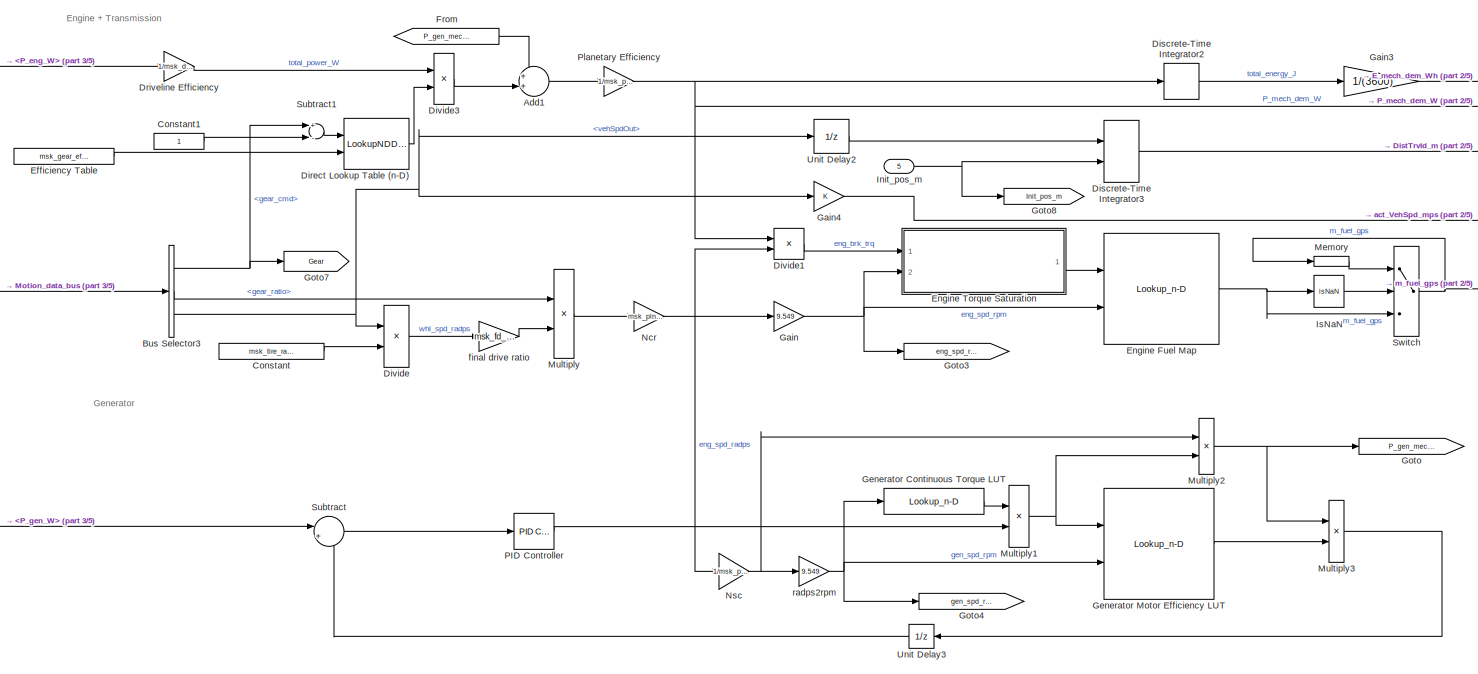
[diagram: Mid Truck Powertrain Variant Subsystem/Series Parallel Hybrid Electric Truck/Series Parallel Hybrid Electric Powertrain Power Loss Model - part 1/5, top center region]
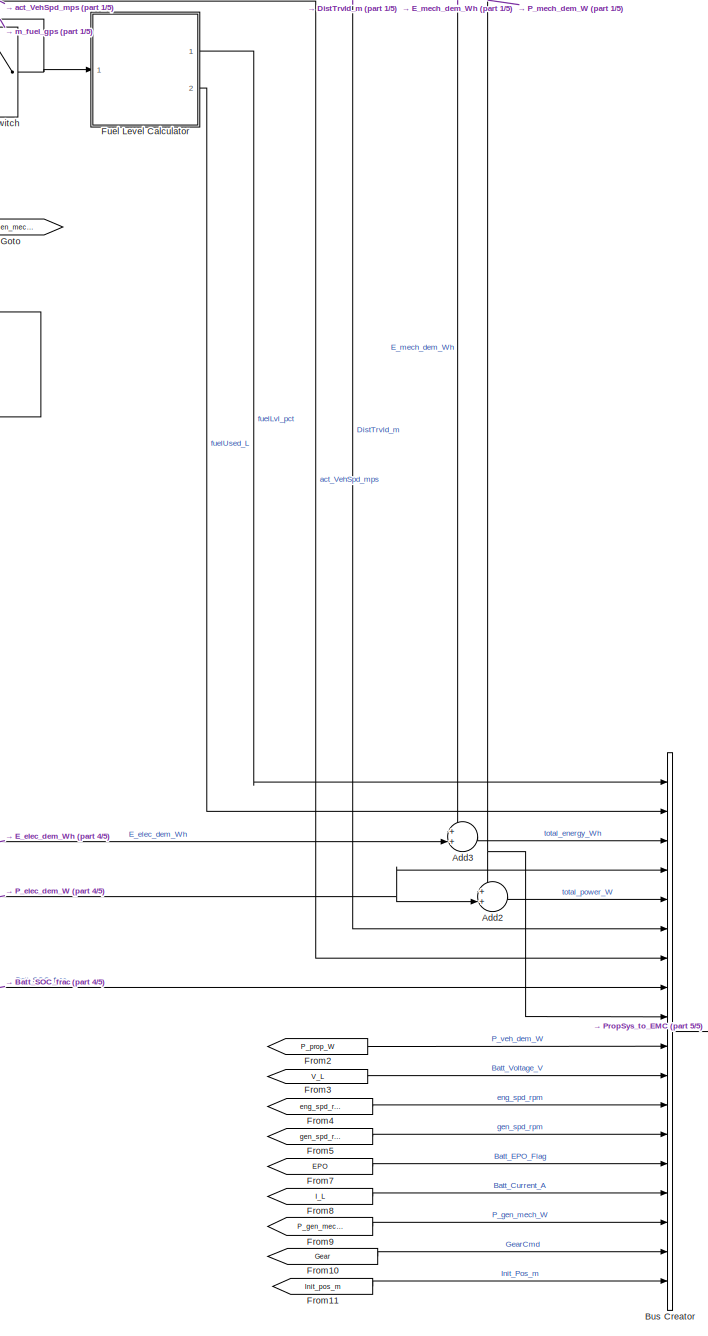
[diagram: Mid Truck Powertrain Variant Subsystem/Series Parallel Hybrid Electric Truck/Series Parallel Hybrid Electric Powertrain Power Loss Model - part 2/5, right side, full height]
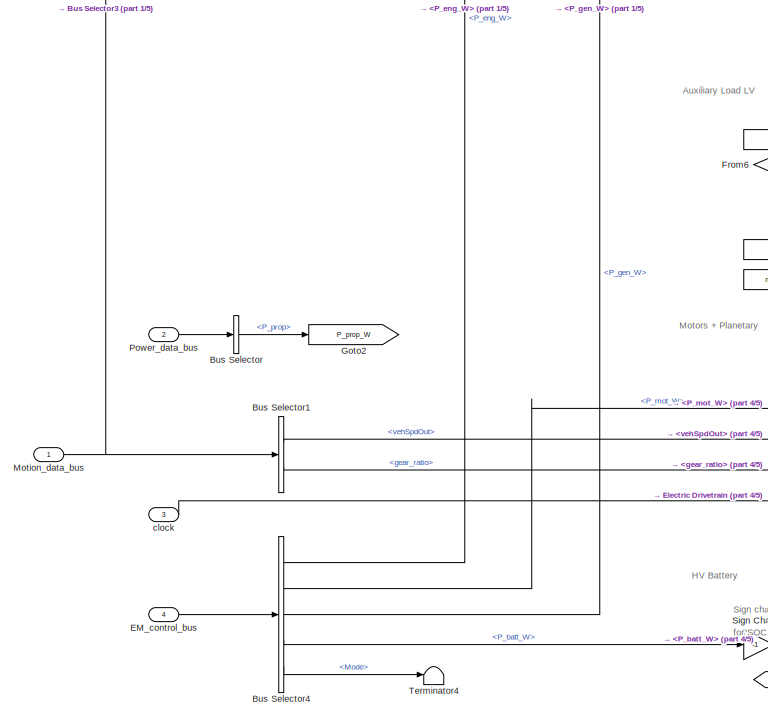
[diagram: Mid Truck Powertrain Variant Subsystem/Series Parallel Hybrid Electric Truck/Series Parallel Hybrid Electric Powertrain Power Loss Model - part 3/5, middle left region]
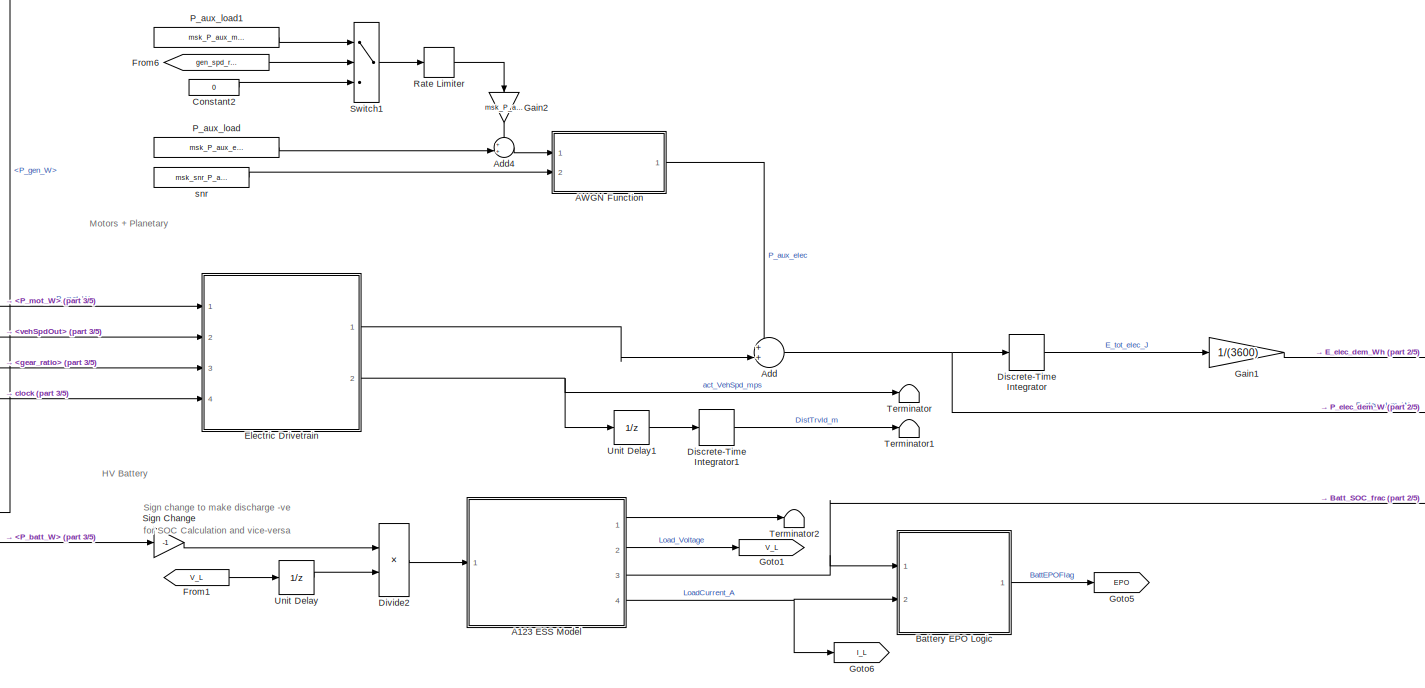
[diagram: Mid Truck Powertrain Variant Subsystem/Series Parallel Hybrid Electric Truck/Series Parallel Hybrid Electric Powertrain Power Loss Model - part 4/5, bottom center region]
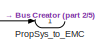
[diagram: Mid Truck Powertrain Variant Subsystem/Series Parallel Hybrid Electric Truck/Series Parallel Hybrid Electric Powertrain Power Loss Model - part 5/5, bottom right region]
BLOCK [SubSystem] Mid Truck Powertrain Variant Subsystem/Series Parallel Hybrid Electric Truck/Series Parallel Hybrid Electric Powertrain Power Loss Model
  Ports = [5, 1]
  RequestExecContextInheritance = off
BLOCK [SubSystem] Mid Truck Powertrain Variant Subsystem/Series Parallel Hybrid Electric Truck/Series Parallel Hybrid Electric Powertrain Power Loss Model/A123 ESS Model
  Ports = [1, 4]
  RequestExecContextInheritance = off
BLOCK [Sum] Mid Truck Powertrain Variant Subsystem/Series Parallel Hybrid Electric Truck/Series Parallel Hybrid Electric Powertrain Power Loss Model/A123 ESS Model/Add
  InputSameDT = off
  Inputs = ++++
  OutDataTypeStr = Inherit: Inherit via internal rule
  Ports = [4, 1]
  SaturateOnIntegerOverflow = off
BLOCK [BusCreator] Mid Truck Powertrain Variant Subsystem/Series Parallel Hybrid Electric Truck/Series Parallel Hybrid Electric Powertrain Power Loss Model/A123 ESS Model/Bus Creator
  DisplayOption = bar
  InheritFromInputs = on
  Inputs = 7
  Ports = [7, 1]
BLOCK [Outport] Mid Truck Powertrain Variant Subsystem/Series Parallel Hybrid Electric Truck/Series Parallel Hybrid Electric Powertrain Power Loss Model/A123 ESS Model/Current
  IconDisplay = Port number
  Port = 4
BLOCK [From] Mid Truck Powertrain Variant Subsystem/Series Parallel Hybrid Electric Truck/Series Parallel Hybrid Electric Powertrain Power Loss Model/A123 ESS Model/From
  GotoTag = U_PA
BLOCK [From] Mid Truck Powertrain Variant Subsystem/Series Parallel Hybrid Electric Truck/Series Parallel Hybrid Electric Powertrain Power Loss Model/A123 ESS Model/From1
  GotoTag = U_PC
BLOCK [From] Mid Truck Powertrain Variant Subsystem/Series Parallel Hybrid Electric Truck/Series Parallel Hybrid Electric Powertrain Power Loss Model/A123 ESS Model/From2
  GotoTag = V_R0
BLOCK [From] Mid Truck Powertrain Variant Subsystem/Series Parallel Hybrid Electric Truck/Series Parallel Hybrid Electric Powertrain Power Loss Model/A123 ESS Model/From3
  GotoTag = Em
BLOCK [From] Mid Truck Powertrain Variant Subsystem/Series Parallel Hybrid Electric Truck/Series Parallel Hybrid Electric Powertrain Power Loss Model/A123 ESS Model/From4
  GotoTag = V_L
BLOCK [From] Mid Truck Powertrain Variant Subsystem/Series Parallel Hybrid Electric Truck/Series Parallel Hybrid Electric Powertrain Power Loss Model/A123 ESS Model/From5
  GotoTag = SOC
BLOCK [From] Mid Truck Powertrain Variant Subsystem/Series Parallel Hybrid Electric Truck/Series Parallel Hybrid Electric Powertrain Power Loss Model/A123 ESS Model/From6
  GotoTag = current
BLOCK [Goto] Mid Truck Powertrain Variant Subsystem/Series Parallel Hybrid Electric Truck/Series Parallel Hybrid Electric Powertrain Power Loss Model/A123 ESS Model/Goto
  GotoTag = U_PA
BLOCK [Goto] Mid Truck Powertrain Variant Subsystem/Series Parallel Hybrid Electric Truck/Series Parallel Hybrid Electric Powertrain Power Loss Model/A123 ESS Model/Goto1
  GotoTag = U_PC
BLOCK [Goto] Mid Truck Powertrain Variant Subsystem/Series Parallel Hybrid Electric Truck/Series Parallel Hybrid Electric Powertrain Power Loss Model/A123 ESS Model/Goto2
  GotoTag = V_R0
BLOCK [Goto] Mid Truck Powertrain Variant Subsystem/Series Parallel Hybrid Electric Truck/Series Parallel Hybrid Electric Powertrain Power Loss Model/A123 ESS Model/Goto3
  GotoTag = V_L
BLOCK [Goto] Mid Truck Powertrain Variant Subsystem/Series Parallel Hybrid Electric Truck/Series Parallel Hybrid Electric Powertrain Power Loss Model/A123 ESS Model/Goto4
  GotoTag = Em
BLOCK [Goto] Mid Truck Powertrain Variant Subsystem/Series Parallel Hybrid Electric Truck/Series Parallel Hybrid Electric Powertrain Power Loss Model/A123 ESS Model/Goto5
  GotoTag = SOC
BLOCK [Goto] Mid Truck Powertrain Variant Subsystem/Series Parallel Hybrid Electric Truck/Series Parallel Hybrid Electric Powertrain Power Loss Model/A123 ESS Model/Goto6
  GotoTag = current
BLOCK [Outport] Mid Truck Powertrain Variant Subsystem/Series Parallel Hybrid Electric Truck/Series Parallel Hybrid Electric Powertrain Power Loss Model/A123 ESS Model/Info
  IconDisplay = Port number
BLOCK [Inport] Mid Truck Powertrain Variant Subsystem/Series Parallel Hybrid Electric Truck/Series Parallel Hybrid Electric Powertrain Power Loss Model/A123 ESS Model/Inp_Current
  IconDisplay = Port number
BLOCK [Outport] Mid Truck Powertrain Variant Subsystem/Series Parallel Hybrid Electric Truck/Series Parallel Hybrid Electric Powertrain Power Loss Model/A123 ESS Model/Load_Voltage
  IconDisplay = Port number
  Port = 2
BLOCK [SubSystem] Mid Truck Powertrain Variant Subsystem/Series Parallel Hybrid Electric Truck/Series Parallel Hybrid Electric Powertrain Power Loss Model/A123 ESS Model/OCV_Battery
  Ports = [1, 3]
  RequestExecContextInheritance = off
BLOCK [Sum] Mid Truck Powertrain Variant Subsystem/Series Parallel Hybrid Electric Truck/Series Parallel Hybrid Electric Powertrain Power Loss Model/A123 ESS Model/OCV_Battery/Add
  InputSameDT = off
  OutDataTypeStr = Inherit: Inherit via internal rule
  Ports = [2, 1]
  SaturateOnIntegerOverflow = off
BLOCK [Outport] Mid Truck Powertrain Variant Subsystem/Series Parallel Hybrid Electric Truck/Series Parallel Hybrid Electric Powertrain Power Loss Model/A123 ESS Model/OCV_Battery/BattVolt_calc
  IconDisplay = Port number
  Port = 3
BLOCK [Constant] Mid Truck Powertrain Variant Subsystem/Series Parallel Hybrid Electric Truck/Series Parallel Hybrid Electric Powertrain Power Loss Model/A123 ESS Model/OCV_Battery/Constant
  Value = msk_batt_Ns
BLOCK [Constant] Mid Truck Powertrain Variant Subsystem/Series Parallel Hybrid Electric Truck/Series Parallel Hybrid Electric Powertrain Power Loss Model/A123 ESS Model/OCV_Battery/Constant1
  Value = msk_cell_Q_Ah * msk_batt_Np
BLOCK [Constant] Mid Truck Powertrain Variant Subsystem/Series Parallel Hybrid Electric Truck/Series Parallel Hybrid Electric Powertrain Power Loss Model/A123 ESS Model/OCV_Battery/Constant2
  Value = msk_batt_Nmod
BLOCK [Inport] Mid Truck Powertrain Variant Subsystem/Series Parallel Hybrid Electric Truck/Series Parallel Hybrid Electric Powertrain Power Loss Model/A123 ESS Model/OCV_Battery/Current
  IconDisplay = Port number
BLOCK [Outport] Mid Truck Powertrain Variant Subsystem/Series Parallel Hybrid Electric Truck/Series Parallel Hybrid Electric Powertrain Power Loss Model/A123 ESS Model/OCV_Battery/Current_pt
  IconDisplay = Port number
  Port = 2
BLOCK [Product] Mid Truck Powertrain Variant Subsystem/Series Parallel Hybrid Electric Truck/Series Parallel Hybrid Electric Powertrain Power Loss Model/A123 ESS Model/OCV_Battery/Divide
  InputSameDT = off
  Inputs = */
  OutDataTypeStr = Inherit: Inherit via internal rule
  Ports = [2, 1]
  RndMeth = Floor
  SaturateOnIntegerOverflow = off
BLOCK [Gain] Mid Truck Powertrain Variant Subsystem/Series Parallel Hybrid Electric Truck/Series Parallel Hybrid Electric Powertrain Power Loss Model/A123 ESS Model/OCV_Battery/Gain
  Gain = msk_t_step/3600
  OutDataTypeStr = Inherit: Inherit via internal rule
  ParamDataTypeStr = Inherit: Inherit via internal rule
  SaturateOnIntegerOverflow = off
BLOCK [Memory] Mid Truck Powertrain Variant Subsystem/Series Parallel Hybrid Electric Truck/Series Parallel Hybrid Electric Powertrain Power Loss Model/A123 ESS Model/OCV_Battery/Memory
  InheritSampleTime = on
  InitialCondition = msk_batt_soc_init
  LinearizeAsDelay = on
BLOCK [SubSystem] Mid Truck Powertrain Variant Subsystem/Series Parallel Hybrid Electric Truck/Series Parallel Hybrid Electric Powertrain Power Loss Model/A123 ESS Model/OCV_Battery/OCV Function
  ErrorFcn = Stateflow.Translate.translate
  PermitHierarchicalResolution = ExplicitOnly
  Ports = [2, 1]
  RequestExecContextInheritance = off
  SFBlockType = MATLAB Function
  TreatAsAtomicUnit = on
BLOCK [Demux] Mid Truck Powertrain Variant Subsystem/Series Parallel Hybrid Electric Truck/Series Parallel Hybrid Electric Powertrain Power Loss Model/A123 ESS Model/OCV_Battery/OCV Function/ Demux 
  Outputs = 1
  Ports = [1, 1]
BLOCK [S-Function] Mid Truck Powertrain Variant Subsystem/Series Parallel Hybrid Electric Truck/Series Parallel Hybrid Electric Powertrain Power Loss Model/A123 ESS Model/OCV_Battery/OCV Function/ SFunction 
  EnableBusSupport = off
  FunctionName = sf_sfun
  PortCounts = [2 2]
  Ports = [2, 2]
  SFcnIsStateOwnerBlock = off
  SFunctionDeploymentMode = off
  Tag = Stateflow S-Function het_platoon_model 9
BLOCK [Terminator] Mid Truck Powertrain Variant Subsystem/Series Parallel Hybrid Electric Truck/Series Parallel Hybrid Electric Powertrain Power Loss Model/A123 ESS Model/OCV_Battery/OCV Function/ Terminator 
BLOCK [Inport] Mid Truck Powertrain Variant Subsystem/Series Parallel Hybrid Electric Truck/Series Parallel Hybrid Electric Powertrain Power Loss Model/A123 ESS Model/OCV_Battery/OCV Function/current
  IconDisplay = Port number
  Port = 2
BLOCK [Outport] Mid Truck Powertrain Variant Subsystem/Series Parallel Hybrid Electric Truck/Series Parallel Hybrid Electric Powertrain Power Loss Model/A123 ESS Model/OCV_Battery/OCV Function/ocv
  IconDisplay = Port number
BLOCK [Inport] Mid Truck Powertrain Variant Subsystem/Series Parallel Hybrid Electric Truck/Series Parallel Hybrid Electric Powertrain Power Loss Model/A123 ESS Model/OCV_Battery/OCV Function/soc
  IconDisplay = Port number
BLOCK [Product] Mid Truck Powertrain Variant Subsystem/Series Parallel Hybrid Electric Truck/Series Parallel Hybrid Electric Powertrain Power Loss Model/A123 ESS Model/OCV_Battery/Product
  InputSameDT = off
  Inputs = 3
  OutDataTypeStr = Inherit: Inherit via internal rule
  Ports = [3, 1]
  RndMeth = Floor
  SaturateOnIntegerOverflow = off
BLOCK [Outport] Mid Truck Powertrain Variant Subsystem/Series Parallel Hybrid Electric Truck/Series Parallel Hybrid Electric Powertrain Power Loss Model/A123 ESS Model/OCV_Battery/SOC_calc
  IconDisplay = Port number
BLOCK [SubSystem] Mid Truck Powertrain Variant Subsystem/Series Parallel Hybrid Electric Truck/Series Parallel Hybrid Electric Powertrain Power Loss Model/A123 ESS Model/R0 Resistance
  Ports = [2, 1]
  RequestExecContextInheritance = off
BLOCK [Reference] Mid Truck Powertrain Variant Subsystem/Series Parallel Hybrid Electric Truck/Series Parallel Hybrid Electric Powertrain Power Loss Model/A123 ESS Model/R0 Resistance/Compare To Zero  REF=simulink/Logic and Bit
Operations/Compare
To Zero
  Ports = [1, 1]
  SourceBlock = simulink/Logic and Bit\nOperations/Compare\nTo Zero
  SourceProductBaseCode = SL
  SourceProductName = Simulink
  SourceType = Compare To Zero
BLOCK [Inport] Mid Truck Powertrain Variant Subsystem/Series Parallel Hybrid Electric Truck/Series Parallel Hybrid Electric Powertrain Power Loss Model/A123 ESS Model/R0 Resistance/Current
  IconDisplay = Port number
  Port = 2
BLOCK [Product] Mid Truck Powertrain Variant Subsystem/Series Parallel Hybrid Electric Truck/Series Parallel Hybrid Electric Powertrain Power Loss Model/A123 ESS Model/R0 Resistance/Product
  InputSameDT = off
  OutDataTypeStr = Inherit: Inherit via internal rule
  Ports = [2, 1]
  RndMeth = Floor
  SaturateOnIntegerOverflow = off
BLOCK [Lookup_n-D] Mid Truck Powertrain Variant Subsystem/Series Parallel Hybrid Electric Truck/Series Parallel Hybrid Electric Powertrain Power Loss Model/A123 ESS Model/R0 Resistance/R0 LUT Chg
  BreakpointsForDimension1 = msk_batt_soc_bpt
  ExtrapMethod = Clip
  InternalRulePriority = Speed
  NumberOfTableDimensions = 1
  Ports = [1, 1]
  RndMeth = Simplest
  Table = msk_batt_R0 * 0.05
  UseLastTableValue = on
BLOCK [Lookup_n-D] Mid Truck Powertrain Variant Subsystem/Series Parallel Hybrid Electric Truck/Series Parallel Hybrid Electric Powertrain Power Loss Model/A123 ESS Model/R0 Resistance/R0 LUT Dchg
  BreakpointsForDimension1 = msk_batt_soc_bpt
  ExtrapMethod = Clip
  InternalRulePriority = Speed
  NumberOfTableDimensions = 1
  Ports = [1, 1]
  RndMeth = Simplest
  Table = msk_batt_R0 * 0.25
  UseLastTableValue = on
BLOCK [Inport] Mid Truck Powertrain Variant Subsystem/Series Parallel Hybrid Electric Truck/Series Parallel Hybrid Electric Powertrain Power Loss Model/A123 ESS Model/R0 Resistance/SOC
  IconDisplay = Port number
BLOCK [Switch] Mid Truck Powertrain Variant Subsystem/Series Parallel Hybrid Electric Truck/Series Parallel Hybrid Electric Powertrain Power Loss Model/A123 ESS Model/R0 Resistance/Switch
  Criteria = u2 > Threshold
  InputSameDT = off
  SaturateOnIntegerOverflow = off
BLOCK [Outport] Mid Truck Powertrain Variant Subsystem/Series Parallel Hybrid Electric Truck/Series Parallel Hybrid Electric Powertrain Power Loss Model/A123 ESS Model/R0 Resistance/V_R0
  IconDisplay = Port number
BLOCK [SubSystem] Mid Truck Powertrain Variant Subsystem/Series Parallel Hybrid Electric Truck/Series Parallel Hybrid Electric Powertrain Power Loss Model/A123 ESS Model/R1_C1 Circuit
  Ports = [2, 1]
  RequestExecContextInheritance = off
BLOCK [Sum] Mid Truck Powertrain Variant Subsystem/Series Parallel Hybrid Electric Truck/Series Parallel Hybrid Electric Powertrain Power Loss Model/A123 ESS Model/R1_C1 Circuit/Add1
  InputSameDT = off
  OutDataTypeStr = Inherit: Inherit via internal rule
  Ports = [2, 1]
  SaturateOnIntegerOverflow = off
BLOCK [Lookup_n-D] Mid Truck Powertrain Variant Subsystem/Series Parallel Hybrid Electric Truck/Series Parallel Hybrid Electric Powertrain Power Loss Model/A123 ESS Model/R1_C1 Circuit/C1 LUT
  BreakpointsForDimension1 = msk_batt_soc_bpt
  ExtrapMethod = Clip
  InternalRulePriority = Speed
  NumberOfTableDimensions = 1
  Ports = [1, 1]
  RndMeth = Simplest
  Table = msk_batt_C1
  UseLastTableValue = on
BLOCK [Inport] Mid Truck Powertrain Variant Subsystem/Series Parallel Hybrid Electric Truck/Series Parallel Hybrid Electric Powertrain Power Loss Model/A123 ESS Model/R1_C1 Circuit/Current
  IconDisplay = Port number
  Port = 2
BLOCK [DiscreteIntegrator] Mid Truck Powertrain Variant Subsystem/Series Parallel Hybrid Electric Truck/Series Parallel Hybrid Electric Powertrain Power Loss Model/A123 ESS Model/R1_C1 Circuit/Discrete-Time Integrator
  ICPrevOutput = DiscIntNeverNeededParam
  ICPrevScaledInput = DiscIntNeverNeededParam
  InitialConditionSetting = Auto
  Ports = [1, 1]
  SampleTime = -1
BLOCK [Product] Mid Truck Powertrain Variant Subsystem/Series Parallel Hybrid Electric Truck/Series Parallel Hybrid Electric Powertrain Power Loss Model/A123 ESS Model/R1_C1 Circuit/Divide
  InputSameDT = off
  Inputs = */
  OutDataTypeStr = Inherit: Inherit via internal rule
  Ports = [2, 1]
  RndMeth = Floor
  SaturateOnIntegerOverflow = off
BLOCK [Product] Mid Truck Powertrain Variant Subsystem/Series Parallel Hybrid Electric Truck/Series Parallel Hybrid Electric Powertrain Power Loss Model/A123 ESS Model/R1_C1 Circuit/Divide1
  InputSameDT = off
  Inputs = */
  OutDataTypeStr = Inherit: Inherit via internal rule
  Ports = [2, 1]
  RndMeth = Floor
  SaturateOnIntegerOverflow = off
BLOCK [Product] Mid Truck Powertrain Variant Subsystem/Series Parallel Hybrid Electric Truck/Series Parallel Hybrid Electric Powertrain Power Loss Model/A123 ESS Model/R1_C1 Circuit/Product
  InputSameDT = off
  OutDataTypeStr = Inherit: Inherit via internal rule
  Ports = [2, 1]
  RndMeth = Floor
  SaturateOnIntegerOverflow = off
BLOCK [Lookup_n-D] Mid Truck Powertrain Variant Subsystem/Series Parallel Hybrid Electric Truck/Series Parallel Hybrid Electric Powertrain Power Loss Model/A123 ESS Model/R1_C1 Circuit/R1 LUT
  BreakpointsForDimension1 = msk_batt_soc_bpt
  ExtrapMethod = Clip
  InternalRulePriority = Speed
  NumberOfTableDimensions = 1
  Ports = [1, 1]
  RndMeth = Simplest
  Table = msk_batt_R1
  UseLastTableValue = on
BLOCK [Inport] Mid Truck Powertrain Variant Subsystem/Series Parallel Hybrid Electric Truck/Series Parallel Hybrid Electric Powertrain Power Loss Model/A123 ESS Model/R1_C1 Circuit/SOC
  IconDisplay = Port number
BLOCK [Outport] Mid Truck Powertrain Variant Subsystem/Series Parallel Hybrid Electric Truck/Series Parallel Hybrid Electric Powertrain Power Loss Model/A123 ESS Model/R1_C1 Circuit/U_PC
  IconDisplay = Port number
BLOCK [SubSystem] Mid Truck Powertrain Variant Subsystem/Series Parallel Hybrid Electric Truck/Series Parallel Hybrid Electric Powertrain Power Loss Model/A123 ESS Model/R2_C2 Circuit
  Ports = [2, 1]
  RequestExecContextInheritance = off
BLOCK [Sum] Mid Truck Powertrain Variant Subsystem/Series Parallel Hybrid Electric Truck/Series Parallel Hybrid Electric Powertrain Power Loss Model/A123 ESS Model/R2_C2 Circuit/Add1
  InputSameDT = off
  OutDataTypeStr = Inherit: Inherit via internal rule
  Ports = [2, 1]
  SaturateOnIntegerOverflow = off
BLOCK [Lookup_n-D] Mid Truck Powertrain Variant Subsystem/Series Parallel Hybrid Electric Truck/Series Parallel Hybrid Electric Powertrain Power Loss Model/A123 ESS Model/R2_C2 Circuit/C2 LUT
  BreakpointsForDimension1 = msk_batt_soc_bpt
  ExtrapMethod = Clip
  InternalRulePriority = Speed
  NumberOfTableDimensions = 1
  Ports = [1, 1]
  RndMeth = Simplest
  Table = msk_batt_C2
  UseLastTableValue = on
BLOCK [Inport] Mid Truck Powertrain Variant Subsystem/Series Parallel Hybrid Electric Truck/Series Parallel Hybrid Electric Powertrain Power Loss Model/A123 ESS Model/R2_C2 Circuit/Current
  IconDisplay = Port number
  Port = 2
BLOCK [DiscreteIntegrator] Mid Truck Powertrain Variant Subsystem/Series Parallel Hybrid Electric Truck/Series Parallel Hybrid Electric Powertrain Power Loss Model/A123 ESS Model/R2_C2 Circuit/Discrete-Time Integrator
  ICPrevOutput = DiscIntNeverNeededParam
  ICPrevScaledInput = DiscIntNeverNeededParam
  InitialConditionSetting = Auto
  Ports = [1, 1]
  SampleTime = -1
BLOCK [Product] Mid Truck Powertrain Variant Subsystem/Series Parallel Hybrid Electric Truck/Series Parallel Hybrid Electric Powertrain Power Loss Model/A123 ESS Model/R2_C2 Circuit/Divide
  InputSameDT = off
  Inputs = */
  OutDataTypeStr = Inherit: Inherit via internal rule
  Ports = [2, 1]
  RndMeth = Floor
  SaturateOnIntegerOverflow = off
BLOCK [Product] Mid Truck Powertrain Variant Subsystem/Series Parallel Hybrid Electric Truck/Series Parallel Hybrid Electric Powertrain Power Loss Model/A123 ESS Model/R2_C2 Circuit/Divide1
  InputSameDT = off
  Inputs = */
  OutDataTypeStr = Inherit: Inherit via internal rule
  Ports = [2, 1]
  RndMeth = Floor
  SaturateOnIntegerOverflow = off
BLOCK [Product] Mid Truck Powertrain Variant Subsystem/Series Parallel Hybrid Electric Truck/Series Parallel Hybrid Electric Powertrain Power Loss Model/A123 ESS Model/R2_C2 Circuit/Product
  InputSameDT = off
  OutDataTypeStr = Inherit: Inherit via internal rule
  Ports = [2, 1]
  RndMeth = Floor
  SaturateOnIntegerOverflow = off
BLOCK [Lookup_n-D] Mid Truck Powertrain Variant Subsystem/Series Parallel Hybrid Electric Truck/Series Parallel Hybrid Electric Powertrain Power Loss Model/A123 ESS Model/R2_C2 Circuit/R2 LUT
  BreakpointsForDimension1 = msk_batt_soc_bpt
  ExtrapMethod = Clip
  InternalRulePriority = Speed
  NumberOfTableDimensions = 1
  Ports = [1, 1]
  RndMeth = Simplest
  Table = msk_batt_R2
  UseLastTableValue = on
BLOCK [Inport] Mid Truck Powertrain Variant Subsystem/Series Parallel Hybrid Electric Truck/Series Parallel Hybrid Electric Powertrain Power Loss Model/A123 ESS Model/R2_C2 Circuit/SOC
  IconDisplay = Port number
BLOCK [Outport] Mid Truck Powertrain Variant Subsystem/Series Parallel Hybrid Electric Truck/Series Parallel Hybrid Electric Powertrain Power Loss Model/A123 ESS Model/R2_C2 Circuit/U_PA
  IconDisplay = Port number
BLOCK [Outport] Mid Truck Powertrain Variant Subsystem/Series Parallel Hybrid Electric Truck/Series Parallel Hybrid Electric Powertrain Power Loss Model/A123 ESS Model/SOC
  IconDisplay = Port number
  Port = 3
BLOCK [SubSystem] Mid Truck Powertrain Variant Subsystem/Series Parallel Hybrid Electric Truck/Series Parallel Hybrid Electric Powertrain Power Loss Model/AWGN Function
  ErrorFcn = Stateflow.Translate.translate
  PermitHierarchicalResolution = ExplicitOnly
  Ports = [2, 1]
  RequestExecContextInheritance = off
  SFBlockType = MATLAB Function
  TreatAsAtomicUnit = on
BLOCK [Demux] Mid Truck Powertrain Variant Subsystem/Series Parallel Hybrid Electric Truck/Series Parallel Hybrid Electric Powertrain Power Loss Model/AWGN Function/ Demux 
  Outputs = 1
  Ports = [1, 1]
BLOCK [S-Function] Mid Truck Powertrain Variant Subsystem/Series Parallel Hybrid Electric Truck/Series Parallel Hybrid Electric Powertrain Power Loss Model/AWGN Function/ SFunction 
  EnableBusSupport = off
  FunctionName = sf_sfun
  PortCounts = [2 2]
  Ports = [2, 2]
  SFcnIsStateOwnerBlock = off
  SFunctionDeploymentMode = off
  Tag = Stateflow S-Function het_platoon_model 10
BLOCK [Terminator] Mid Truck Powertrain Variant Subsystem/Series Parallel Hybrid Electric Truck/Series Parallel Hybrid Electric Powertrain Power Loss Model/AWGN Function/ Terminator 
BLOCK [Inport] Mid Truck Powertrain Variant Subsystem/Series Parallel Hybrid Electric Truck/Series Parallel Hybrid Electric Powertrain Power Loss Model/AWGN Function/inp
  IconDisplay = Port number
BLOCK [Outport] Mid Truck Powertrain Variant Subsystem/Series Parallel Hybrid Electric Truck/Series Parallel Hybrid Electric Powertrain Power Loss Model/AWGN Function/out
  IconDisplay = Port number
BLOCK [Inport] Mid Truck Powertrain Variant Subsystem/Series Parallel Hybrid Electric Truck/Series Parallel Hybrid Electric Powertrain Power Loss Model/AWGN Function/snr
  IconDisplay = Port number
  Port = 2
BLOCK [Sum] Mid Truck Powertrain Variant Subsystem/Series Parallel Hybrid Electric Truck/Series Parallel Hybrid Electric Powertrain Power Loss Model/Add
  IconShape = round
  InputSameDT = off
  Inputs = ++|
  OutDataTypeStr = Inherit: Inherit via internal rule
  Ports = [2, 1]
  SaturateOnIntegerOverflow = off
BLOCK [Sum] Mid Truck Powertrain Variant Subsystem/Series Parallel Hybrid Electric Truck/Series Parallel Hybrid Electric Powertrain Power Loss Model/Add1
  IconShape = round
  InputSameDT = off
  Inputs = ++|
  OutDataTypeStr = Inherit: Inherit via internal rule
  Ports = [2, 1]
  SaturateOnIntegerOverflow = off
BLOCK [Sum] Mid Truck Powertrain Variant Subsystem/Series Parallel Hybrid Electric Truck/Series Parallel Hybrid Electric Powertrain Power Loss Model/Add2
  IconShape = round
  InputSameDT = off
  Inputs = ++|
  OutDataTypeStr = Inherit: Inherit via internal rule
  Ports = [2, 1]
  SaturateOnIntegerOverflow = off
BLOCK [Sum] Mid Truck Powertrain Variant Subsystem/Series Parallel Hybrid Electric Truck/Series Parallel Hybrid Electric Powertrain Power Loss Model/Add3
  IconShape = round
  InputSameDT = off
  Inputs = ++|
  OutDataTypeStr = Inherit: Inherit via internal rule
  Ports = [2, 1]
  SaturateOnIntegerOverflow = off
BLOCK [Sum] Mid Truck Powertrain Variant Subsystem/Series Parallel Hybrid Electric Truck/Series Parallel Hybrid Electric Powertrain Power Loss Model/Add4
  IconShape = round
  InputSameDT = off
  Inputs = ++|
  OutDataTypeStr = Inherit: Inherit via internal rule
  Ports = [2, 1]
  SaturateOnIntegerOverflow = off
BLOCK [SubSystem] Mid Truck Powertrain Variant Subsystem/Series Parallel Hybrid Electric Truck/Series Parallel Hybrid Electric Powertrain Power Loss Model/Battery EPO Logic
  Ports = [2, 1]
  RequestExecContextInheritance = off
BLOCK [Reference] Mid Truck Powertrain Variant Subsystem/Series Parallel Hybrid Electric Truck/Series Parallel Hybrid Electric Powertrain Power Loss Model/Battery EPO Logic/10-second average  REF=dspstat3/Moving
Average
  Ports = [1, 1]
  SourceBlock = dspstat3/Moving\nAverage
  SourceProductBaseCode = DS
  SourceProductName = DSP System Toolbox
  SourceType = dsp.simulink.MovingAverage
BLOCK [Lookup_n-D] Mid Truck Powertrain Variant Subsystem/Series Parallel Hybrid Electric Truck/Series Parallel Hybrid Electric Powertrain Power Loss Model/Battery EPO Logic/10sec Discharge Limit Table A123
  BreakpointsForDimension1 = msk_cellTempbpt
  BreakpointsForDimension2 = msk_soc_bpt
  ExtrapMethod = Clip
  InternalRulePriority = Speed
  Ports = [2, 1]
  RndMeth = Simplest
  Table = msk_dchglim10s
  UseLastTableValue = on
BLOCK [Outport] Mid Truck Powertrain Variant Subsystem/Series Parallel Hybrid Electric Truck/Series Parallel Hybrid Electric Powertrain Power Loss Model/Battery EPO Logic/Batt_EPO
  IconDisplay = Port number
BLOCK [Inport] Mid Truck Powertrain Variant Subsystem/Series Parallel Hybrid Electric Truck/Series Parallel Hybrid Electric Powertrain Power Loss Model/Battery EPO Logic/Batt_SOC_frac
  IconDisplay = Port number
BLOCK [SubSystem] Mid Truck Powertrain Variant Subsystem/Series Parallel Hybrid Electric Truck/Series Parallel Hybrid Electric Powertrain Power Loss Model/Battery EPO Logic/Battery EPO Constraint Logic
  ErrorFcn = Stateflow.Translate.translate
  PermitHierarchicalResolution = ExplicitOnly
  Ports = [2, 1]
  RequestExecContextInheritance = off
  SFBlockType = Chart
  TreatAsAtomicUnit = on
BLOCK [Demux] Mid Truck Powertrain Variant Subsystem/Series Parallel Hybrid Electric Truck/Series Parallel Hybrid Electric Powertrain Power Loss Model/Battery EPO Logic/Battery EPO Constraint Logic/ Demux 
  Outputs = 1
  Ports = [1, 1]
BLOCK [S-Function] Mid Truck Powertrain Variant Subsystem/Series Parallel Hybrid Electric Truck/Series Parallel Hybrid Electric Powertrain Power Loss Model/Battery EPO Logic/Battery EPO Constraint Logic/ SFunction 
  EnableBusSupport = off
  FunctionName = sf_sfun
  PortCounts = [2 2]
  Ports = [2, 2]
  SFcnIsStateOwnerBlock = off
  SFunctionDeploymentMode = off
  Tag = Stateflow S-Function het_platoon_model 11
BLOCK [Terminator] Mid Truck Powertrain Variant Subsystem/Series Parallel Hybrid Electric Truck/Series Parallel Hybrid Electric Powertrain Power Loss Model/Battery EPO Logic/Battery EPO Constraint Logic/ Terminator 
BLOCK [Inport] Mid Truck Powertrain Variant Subsystem/Series Parallel Hybrid Electric Truck/Series Parallel Hybrid Electric Powertrain Power Loss Model/Battery EPO Logic/Battery EPO Constraint Logic/DchgCurrLim
  IconDisplay = Port number
BLOCK [Inport] Mid Truck Powertrain Variant Subsystem/Series Parallel Hybrid Electric Truck/Series Parallel Hybrid Electric Powertrain Power Loss Model/Battery EPO Logic/Battery EPO Constraint Logic/LoadCurr
  IconDisplay = Port number
  Port = 2
BLOCK [Outport] Mid Truck Powertrain Variant Subsystem/Series Parallel Hybrid Electric Truck/Series Parallel Hybrid Electric Powertrain Power Loss Model/Battery EPO Logic/Battery EPO Constraint Logic/epo_flag
  IconDisplay = Port number
BLOCK [Constant] Mid Truck Powertrain Variant Subsystem/Series Parallel Hybrid Electric Truck/Series Parallel Hybrid Electric Powertrain Power Loss Model/Battery EPO Logic/CellTemp degC
  Value = 35
BLOCK [Gain] Mid Truck Powertrain Variant Subsystem/Series Parallel Hybrid Electric Truck/Series Parallel Hybrid Electric Powertrain Power Loss Model/Battery EPO Logic/Gain1
  Gain = -1
  OutDataTypeStr = Inherit: Inherit via internal rule
  ParamDataTypeStr = Inherit: Inherit via internal rule
  SaturateOnIntegerOverflow = off
BLOCK [Inport] Mid Truck Powertrain Variant Subsystem/Series Parallel Hybrid Electric Truck/Series Parallel Hybrid Electric Powertrain Power Loss Model/Battery EPO Logic/LoadCurrent_A
  IconDisplay = Port number
  Port = 2
BLOCK [BusCreator] Mid Truck Powertrain Variant Subsystem/Series Parallel Hybrid Electric Truck/Series Parallel Hybrid Electric Powertrain Power Loss Model/Bus Creator
  DisplayOption = bar
  InheritFromInputs = on
  Inputs = 18
  Ports = [18, 1]
BLOCK [BusSelector] Mid Truck Powertrain Variant Subsystem/Series Parallel Hybrid Electric Truck/Series Parallel Hybrid Electric Powertrain Power Loss Model/Bus Selector
  OutputAsBus = off
  OutputSignals = P_prop
  Ports = [1, 1]
BLOCK [BusSelector] Mid Truck Powertrain Variant Subsystem/Series Parallel Hybrid Electric Truck/Series Parallel Hybrid Electric Powertrain Power Loss Model/Bus Selector1
  OutputAsBus = off
  OutputSignals = vehSpdOut,gear_ratio
  Ports = [1, 2]
BLOCK [BusSelector] Mid Truck Powertrain Variant Subsystem/Series Parallel Hybrid Electric Truck/Series Parallel Hybrid Electric Powertrain Power Loss Model/Bus Selector3
  OutputAsBus = off
  OutputSignals = gear_cmd,gear_ratio,vehSpdOut
  Ports = [1, 3]
BLOCK [BusSelector] Mid Truck Powertrain Variant Subsystem/Series Parallel Hybrid Electric Truck/Series Parallel Hybrid Electric Powertrain Power Loss Model/Bus Selector4
  OutputAsBus = off
  OutputSignals = P_eng_W,P_mot_W,P_gen_W,P_batt_W,Mode
  Ports = [1, 5]
BLOCK [Constant] Mid Truck Powertrain Variant Subsystem/Series Parallel Hybrid Electric Truck/Series Parallel Hybrid Electric Powertrain Power Loss Model/Constant
  Value = msk_tire_radius_m
BLOCK [Constant] Mid Truck Powertrain Variant Subsystem/Series Parallel Hybrid Electric Truck/Series Parallel Hybrid Electric Powertrain Power Loss Model/Constant1
BLOCK [Constant] Mid Truck Powertrain Variant Subsystem/Series Parallel Hybrid Electric Truck/Series Parallel Hybrid Electric Powertrain Power Loss Model/Constant2
  Value = 0
BLOCK [LookupNDDirect] Mid Truck Powertrain Variant Subsystem/Series Parallel Hybrid Electric Truck/Series Parallel Hybrid Electric Powertrain Power Loss Model/Direct Lookup Table (n-D)
  NumberOfTableDimensions = 1
  Ports = [2, 1]
  TableIsInput = on
BLOCK [DiscreteIntegrator] Mid Truck Powertrain Variant Subsystem/Series Parallel Hybrid Electric Truck/Series Parallel Hybrid Electric Powertrain Power Loss Model/Discrete-Time Integrator
  ICPrevOutput = DiscIntNeverNeededParam
  ICPrevScaledInput = DiscIntNeverNeededParam
  InitialConditionSetting = Auto
  Ports = [1, 1]
  SampleTime = msk_t_step
BLOCK [DiscreteIntegrator] Mid Truck Powertrain Variant Subsystem/Series Parallel Hybrid Electric Truck/Series Parallel Hybrid Electric Powertrain Power Loss Model/Discrete-Time Integrator1
  ICPrevOutput = DiscIntNeverNeededParam
  ICPrevScaledInput = DiscIntNeverNeededParam
  InitialConditionSetting = Auto
  Ports = [1, 1]
  SampleTime = msk_t_step
BLOCK [DiscreteIntegrator] Mid Truck Powertrain Variant Subsystem/Series Parallel Hybrid Electric Truck/Series Parallel Hybrid Electric Powertrain Power Loss Model/Discrete-Time Integrator2
  ICPrevOutput = DiscIntNeverNeededParam
  ICPrevScaledInput = DiscIntNeverNeededParam
  InitialConditionSetting = Auto
  Ports = [1, 1]
  SampleTime = -1
BLOCK [DiscreteIntegrator] Mid Truck Powertrain Variant Subsystem/Series Parallel Hybrid Electric Truck/Series Parallel Hybrid Electric Powertrain Power Loss Model/Discrete-Time Integrator3
  ICPrevOutput = DiscIntNeverNeededParam
  ICPrevScaledInput = DiscIntNeverNeededParam
  InitialConditionSetting = Auto
  InitialConditionSource = external
  Ports = [2, 1]
  SampleTime = msk_t_step
BLOCK [Product] Mid Truck Powertrain Variant Subsystem/Series Parallel Hybrid Electric Truck/Series Parallel Hybrid Electric Powertrain Power Loss Model/Divide
  InputSameDT = off
  Inputs = */
  OutDataTypeStr = Inherit: Inherit via internal rule
  Ports = [2, 1]
  RndMeth = Floor
  SaturateOnIntegerOverflow = off
BLOCK [Product] Mid Truck Powertrain Variant Subsystem/Series Parallel Hybrid Electric Truck/Series Parallel Hybrid Electric Powertrain Power Loss Model/Divide1
  InputSameDT = off
  Inputs = */
  OutDataTypeStr = Inherit: Inherit via internal rule
  Ports = [2, 1]
  RndMeth = Floor
  SaturateOnIntegerOverflow = off
BLOCK [Product] Mid Truck Powertrain Variant Subsystem/Series Parallel Hybrid Electric Truck/Series Parallel Hybrid Electric Powertrain Power Loss Model/Divide2
  InputSameDT = off
  Inputs = */
  OutDataTypeStr = Inherit: Inherit via internal rule
  Ports = [2, 1]
  RndMeth = Floor
  SaturateOnIntegerOverflow = off
BLOCK [Product] Mid Truck Powertrain Variant Subsystem/Series Parallel Hybrid Electric Truck/Series Parallel Hybrid Electric Powertrain Power Loss Model/Divide3
  InputSameDT = off
  Inputs = */
  OutDataTypeStr = Inherit: Inherit via internal rule
  Ports = [2, 1]
  RndMeth = Floor
  SaturateOnIntegerOverflow = off
BLOCK [Gain] Mid Truck Powertrain Variant Subsystem/Series Parallel Hybrid Electric Truck/Series Parallel Hybrid Electric Powertrain Power Loss Model/Driveline Efficiency
  Gain = 1/msk_drv_eff
  OutDataTypeStr = Inherit: Inherit via internal rule
  ParamDataTypeStr = Inherit: Inherit via internal rule
  SaturateOnIntegerOverflow = off
BLOCK [Inport] Mid Truck Powertrain Variant Subsystem/Series Parallel Hybrid Electric Truck/Series Parallel Hybrid Electric Powertrain Power Loss Model/EM_control_bus
  IconDisplay = Port number
  Port = 4
BLOCK [Constant] Mid Truck Powertrain Variant Subsystem/Series Parallel Hybrid Electric Truck/Series Parallel Hybrid Electric Powertrain Power Loss Model/Efficiency Table
  Value = msk_gear_eff_vec
BLOCK [SubSystem] Mid Truck Powertrain Variant Subsystem/Series Parallel Hybrid Electric Truck/Series Parallel Hybrid Electric Powertrain Power Loss Model/Electric Drivetrain
  Ports = [4, 2]
  RequestExecContextInheritance = off
BLOCK [Inport] Mid Truck Powertrain Variant Subsystem/Series Parallel Hybrid Electric Truck/Series Parallel Hybrid Electric Powertrain Power Loss Model/Electric Drivetrain/Clock
  IconDisplay = Port number
  Port = 4
BLOCK [Constant] Mid Truck Powertrain Variant Subsystem/Series Parallel Hybrid Electric Truck/Series Parallel Hybrid Electric Powertrain Power Loss Model/Electric Drivetrain/Constant
  Commented = on
  Value = 0
BLOCK [Product] Mid Truck Powertrain Variant Subsystem/Series Parallel Hybrid Electric Truck/Series Parallel Hybrid Electric Powertrain Power Loss Model/Electric Drivetrain/Divide
  InputSameDT = off
  Inputs = */
  OutDataTypeStr = Inherit: Inherit via internal rule
  Ports = [2, 1]
  RndMeth = Floor
  SaturateOnIntegerOverflow = off
BLOCK [Product] Mid Truck Powertrain Variant Subsystem/Series Parallel Hybrid Electric Truck/Series Parallel Hybrid Electric Powertrain Power Loss Model/Electric Drivetrain/Divide1
  Commented = on
  InputSameDT = off
  Inputs = */
  OutDataTypeStr = Inherit: Inherit via internal rule
  Ports = [2, 1]
  RndMeth = Floor
  SaturateOnIntegerOverflow = off
BLOCK [Product] Mid Truck Powertrain Variant Subsystem/Series Parallel Hybrid Electric Truck/Series Parallel Hybrid Electric Powertrain Power Loss Model/Electric Drivetrain/Divide2
  Commented = on
  InputSameDT = off
  Inputs = */
  OutDataTypeStr = Inherit: Inherit via internal rule
  Ports = [2, 1]
  RndMeth = Floor
  SaturateOnIntegerOverflow = off
BLOCK [Product] Mid Truck Powertrain Variant Subsystem/Series Parallel Hybrid Electric Truck/Series Parallel Hybrid Electric Powertrain Power Loss Model/Electric Drivetrain/Divide3
  InputSameDT = off
  Inputs = */
  OutDataTypeStr = Inherit: Inherit via internal rule
  Ports = [2, 1]
  RndMeth = Floor
  SaturateOnIntegerOverflow = off
BLOCK [Lookup_n-D] Mid Truck Powertrain Variant Subsystem/Series Parallel Hybrid Electric Truck/Series Parallel Hybrid Electric Powertrain Power Loss Model/Electric Drivetrain/EMRAX 268 Torque-Speed Curve Continuous
  BreakpointsForDimension1 = msk_mot_spd_bpt
  Commented = on
  InternalRulePriority = Speed
  NumberOfTableDimensions = 1
  Ports = [1, 1]
  RndMeth = Simplest
  Table = msk_mot_cont_trq
BLOCK [Lookup_n-D] Mid Truck Powertrain Variant Subsystem/Series Parallel Hybrid Electric Truck/Series Parallel Hybrid Electric Powertrain Power Loss Model/Electric Drivetrain/Efficiency Table
  BreakpointsForDimension1 = motTrqVec
  BreakpointsForDimension2 = motSpdVec
  Commented = on
  ExtrapMethod = Clip
  InternalRulePriority = Speed
  Ports = [2, 1]
  RndMeth = Simplest
  Table = adj_motEffMap
  UseLastTableValue = on
BLOCK [From] Mid Truck Powertrain Variant Subsystem/Series Parallel Hybrid Electric Truck/Series Parallel Hybrid Electric Powertrain Power Loss Model/Electric Drivetrain/From
  Commented = on
  GotoTag = zcflag_1
BLOCK [From] Mid Truck Powertrain Variant Subsystem/Series Parallel Hybrid Electric Truck/Series Parallel Hybrid Electric Powertrain Power Loss Model/Electric Drivetrain/From1
  GotoTag = P_elec
BLOCK [Gain] Mid Truck Powertrain Variant Subsystem/Series Parallel Hybrid Electric Truck/Series Parallel Hybrid Electric Powertrain Power Loss Model/Electric Drivetrain/Gain
  Commented = on
  Gain = -1
  OutDataTypeStr = Inherit: Inherit via internal rule
  ParamDataTypeStr = Inherit: Inherit via internal rule
  SaturateOnIntegerOverflow = off
BLOCK [Gain] Mid Truck Powertrain Variant Subsystem/Series Parallel Hybrid Electric Truck/Series Parallel Hybrid Electric Powertrain Power Loss Model/Electric Drivetrain/Gain1
  Gain = msk_plnt_m_r_ratio
  OutDataTypeStr = Inherit: Inherit via internal rule
  ParamDataTypeStr = Inherit: Inherit via internal rule
  SaturateOnIntegerOverflow = off
BLOCK [Gain] Mid Truck Powertrain Variant Subsystem/Series Parallel Hybrid Electric Truck/Series Parallel Hybrid Electric Powertrain Power Loss Model/Electric Drivetrain/Gain2
  Commented = on
  OutDataTypeStr = Inherit: Inherit via internal rule
  ParamDataTypeStr = Inherit: Inherit via internal rule
  SaturateOnIntegerOverflow = off
BLOCK [Gain] Mid Truck Powertrain Variant Subsystem/Series Parallel Hybrid Electric Truck/Series Parallel Hybrid Electric Powertrain Power Loss Model/Electric Drivetrain/Gain3
  Commented = on
  Gain = msk_mot_num
  OutDataTypeStr = Inherit: Inherit via internal rule
  ParamDataTypeStr = Inherit: Inherit via internal rule
  SaturateOnIntegerOverflow = off
BLOCK [Gain] Mid Truck Powertrain Variant Subsystem/Series Parallel Hybrid Electric Truck/Series Parallel Hybrid Electric Powertrain Power Loss Model/Electric Drivetrain/Gain4
  Gain = 1/msk_plnt_m_r_ratio
  OutDataTypeStr = Inherit: Inherit via internal rule
  ParamDataTypeStr = Inherit: Inherit via internal rule
  SaturateOnIntegerOverflow = off
BLOCK [Goto] Mid Truck Powertrain Variant Subsystem/Series Parallel Hybrid Electric Truck/Series Parallel Hybrid Electric Powertrain Power Loss Model/Electric Drivetrain/Goto
  GotoTag = zcflag_1
BLOCK [Goto] Mid Truck Powertrain Variant Subsystem/Series Parallel Hybrid Electric Truck/Series Parallel Hybrid Electric Powertrain Power Loss Model/Electric Drivetrain/Goto1
  GotoTag = P_elec
BLOCK [SubSystem] Mid Truck Powertrain Variant Subsystem/Series Parallel Hybrid Electric Truck/Series Parallel Hybrid Electric Powertrain Power Loss Model/Electric Drivetrain/MATLAB Function
  ErrorFcn = Stateflow.Translate.translate
  PermitHierarchicalResolution = ExplicitOnly
  Ports = [1, 2]
  RequestExecContextInheritance = off
  SFBlockType = MATLAB Function
  TreatAsAtomicUnit = on
BLOCK [Demux] Mid Truck Powertrain Variant Subsystem/Series Parallel Hybrid Electric Truck/Series Parallel Hybrid Electric Powertrain Power Loss Model/Electric Drivetrain/MATLAB Function/ Demux 
  Outputs = 1
  Ports = [1, 1]
BLOCK [S-Function] Mid Truck Powertrain Variant Subsystem/Series Parallel Hybrid Electric Truck/Series Parallel Hybrid Electric Powertrain Power Loss Model/Electric Drivetrain/MATLAB Function/ SFunction 
  EnableBusSupport = off
  FunctionName = sf_sfun
  PortCounts = [1 3]
  Ports = [1, 3]
  SFcnIsStateOwnerBlock = off
  SFunctionDeploymentMode = off
  Tag = Stateflow S-Function het_platoon_model 12
BLOCK [Terminator] Mid Truck Powertrain Variant Subsystem/Series Parallel Hybrid Electric Truck/Series Parallel Hybrid Electric Powertrain Power Loss Model/Electric Drivetrain/MATLAB Function/ Terminator 
BLOCK [Outport] Mid Truck Powertrain Variant Subsystem/Series Parallel Hybrid Electric Truck/Series Parallel Hybrid Electric Powertrain Power Loss Model/Electric Drivetrain/MATLAB Function/flag
  IconDisplay = Port number
  Port = 2
BLOCK [Inport] Mid Truck Powertrain Variant Subsystem/Series Parallel Hybrid Electric Truck/Series Parallel Hybrid Electric Powertrain Power Loss Model/Electric Drivetrain/MATLAB Function/v_veh_mps
  IconDisplay = Port number
BLOCK [Outport] Mid Truck Powertrain Variant Subsystem/Series Parallel Hybrid Electric Truck/Series Parallel Hybrid Electric Powertrain Power Loss Model/Electric Drivetrain/MATLAB Function/v_veh_out_mps
  IconDisplay = Port number
BLOCK [SubSystem] Mid Truck Powertrain Variant Subsystem/Series Parallel Hybrid Electric Truck/Series Parallel Hybrid Electric Powertrain Power Loss Model/Electric Drivetrain/Motor Fault Injection
  Ports = [3, 1]
  RequestExecContextInheritance = off
BLOCK [Sum] Mid Truck Powertrain Variant Subsystem/Series Parallel Hybrid Electric Truck/Series Parallel Hybrid Electric Powertrain Power Loss Model/Electric Drivetrain/Motor Fault Injection/Add
  IconShape = round
  InputSameDT = off
  Inputs = |-+
  OutDataTypeStr = Inherit: Inherit via internal rule
  Ports = [2, 1]
  SaturateOnIntegerOverflow = off
BLOCK [Sum] Mid Truck Powertrain Variant Subsystem/Series Parallel Hybrid Electric Truck/Series Parallel Hybrid Electric Powertrain Power Loss Model/Electric Drivetrain/Motor Fault Injection/Add1
  InputSameDT = off
  OutDataTypeStr = Inherit: Inherit via internal rule
  Ports = [2, 1]
  SaturateOnIntegerOverflow = off
BLOCK [Inport] Mid Truck Powertrain Variant Subsystem/Series Parallel Hybrid Electric Truck/Series Parallel Hybrid Electric Powertrain Power Loss Model/Electric Drivetrain/Motor Fault Injection/Clock
  IconDisplay = Port number
  Port = 3
BLOCK [Constant] Mid Truck Powertrain Variant Subsystem/Series Parallel Hybrid Electric Truck/Series Parallel Hybrid Electric Powertrain Power Loss Model/Electric Drivetrain/Motor Fault Injection/Constant
  Value = t_fault
BLOCK [Constant] Mid Truck Powertrain Variant Subsystem/Series Parallel Hybrid Electric Truck/Series Parallel Hybrid Electric Powertrain Power Loss Model/Electric Drivetrain/Motor Fault Injection/Constant1
  Value = 0
BLOCK [Constant] Mid Truck Powertrain Variant Subsystem/Series Parallel Hybrid Electric Truck/Series Parallel Hybrid Electric Powertrain Power Loss Model/Electric Drivetrain/Motor Fault Injection/Constant2
  Value = contMotTrqMax
BLOCK [Delay] Mid Truck Powertrain Variant Subsystem/Series Parallel Hybrid Electric Truck/Series Parallel Hybrid Electric Powertrain Power Loss Model/Electric Drivetrain/Motor Fault Injection/Delay
  DelayLength = 1
  InputPortMap = u0
  Ports = [1, 1]
BLOCK [Reference] Mid Truck Powertrain Variant Subsystem/Series Parallel Hybrid Electric Truck/Series Parallel Hybrid Electric Powertrain Power Loss Model/Electric Drivetrain/Motor Fault Injection/Discrete PID Controller  REF=simulink/Continuous/PID Controller
  Ports = [1, 1]
  SourceBlock = simulink/Continuous/PID Controller
  SourceProductBaseCode = SL
  SourceProductName = Simulink
  SourceType = PID 1dof
BLOCK [Product] Mid Truck Powertrain Variant Subsystem/Series Parallel Hybrid Electric Truck/Series Parallel Hybrid Electric Powertrain Power Loss Model/Electric Drivetrain/Motor Fault Injection/Divide
  InputSameDT = off
  Inputs = */
  OutDataTypeStr = Inherit: Inherit via internal rule
  Ports = [2, 1]
  RndMeth = Floor
  SaturateOnIntegerOverflow = off
BLOCK [RelationalOperator] Mid Truck Powertrain Variant Subsystem/Series Parallel Hybrid Electric Truck/Series Parallel Hybrid Electric Powertrain Power Loss Model/Electric Drivetrain/Motor Fault Injection/Equal
  InputSameDT = off
  OutDataTypeStr = boolean
  Ports = [2, 1]
  RndMeth = Simplest
BLOCK [Assertion] Mid Truck Powertrain Variant Subsystem/Series Parallel Hybrid Electric Truck/Series Parallel Hybrid Electric Powertrain Power Loss Model/Electric Drivetrain/Motor Fault Injection/Fault Assertion
  AssertionFailFcn = set_param(bdroot,'SimulationCommand','pause');\ndisp('## Paused due to Motor fault insertion')
  Commented = on
  StopWhenAssertionFail = off
BLOCK [Gain] Mid Truck Powertrain Variant Subsystem/Series Parallel Hybrid Electric Truck/Series Parallel Hybrid Electric Powertrain Power Loss Model/Electric Drivetrain/Motor Fault Injection/Gain
  Gain = 2
  OutDataTypeStr = Inherit: Inherit via internal rule
  ParamDataTypeStr = Inherit: Inherit via internal rule
  SaturateOnIntegerOverflow = off
BLOCK [SubSystem] Mid Truck Powertrain Variant Subsystem/Series Parallel Hybrid Electric Truck/Series Parallel Hybrid Electric Powertrain Power Loss Model/Electric Drivetrain/Motor Fault Injection/Logic
  ErrorFcn = Stateflow.Translate.translate
  PermitHierarchicalResolution = ExplicitOnly
  Ports = [2, 1]
  RequestExecContextInheritance = off
  SFBlockType = Chart
  TreatAsAtomicUnit = on
BLOCK [Demux] Mid Truck Powertrain Variant Subsystem/Series Parallel Hybrid Electric Truck/Series Parallel Hybrid Electric Powertrain Power Loss Model/Electric Drivetrain/Motor Fault Injection/Logic/ Demux 
  Outputs = 1
  Ports = [1, 1]
BLOCK [S-Function] Mid Truck Powertrain Variant Subsystem/Series Parallel Hybrid Electric Truck/Series Parallel Hybrid Electric Powertrain Power Loss Model/Electric Drivetrain/Motor Fault Injection/Logic/ SFunction 
  EnableBusSupport = off
  FunctionName = sf_sfun
  PortCounts = [2 2]
  Ports = [2, 2]
  SFcnIsStateOwnerBlock = off
  SFunctionDeploymentMode = off
  Tag = Stateflow S-Function het_platoon_model 13
BLOCK [Terminator] Mid Truck Powertrain Variant Subsystem/Series Parallel Hybrid Electric Truck/Series Parallel Hybrid Electric Powertrain Power Loss Model/Electric Drivetrain/Motor Fault Injection/Logic/ Terminator 
BLOCK [Inport] Mid Truck Powertrain Variant Subsystem/Series Parallel Hybrid Electric Truck/Series Parallel Hybrid Electric Powertrain Power Loss Model/Electric Drivetrain/Motor Fault Injection/Logic/choice
  IconDisplay = Port number
  Port = 2
BLOCK [Inport] Mid Truck Powertrain Variant Subsystem/Series Parallel Hybrid Electric Truck/Series Parallel Hybrid Electric Powertrain Power Loss Model/Electric Drivetrain/Motor Fault Injection/Logic/input
  IconDisplay = Port number
BLOCK [Outport] Mid Truck Powertrain Variant Subsystem/Series Parallel Hybrid Electric Truck/Series Parallel Hybrid Electric Powertrain Power Loss Model/Electric Drivetrain/Motor Fault Injection/Logic/trigger
  IconDisplay = Port number
BLOCK [Inport] Mid Truck Powertrain Variant Subsystem/Series Parallel Hybrid Electric Truck/Series Parallel Hybrid Electric Powertrain Power Loss Model/Electric Drivetrain/Motor Fault Injection/MOT_SPD_IN
  IconDisplay = Port number
BLOCK [Outport] Mid Truck Powertrain Variant Subsystem/Series Parallel Hybrid Electric Truck/Series Parallel Hybrid Electric Powertrain Power Loss Model/Electric Drivetrain/Motor Fault Injection/MOT_SPD_OUT
  IconDisplay = Port number
BLOCK [MultiPortSwitch] Mid Truck Powertrain Variant Subsystem/Series Parallel Hybrid Electric Truck/Series Parallel Hybrid Electric Powertrain Power Loss Model/Electric Drivetrain/Motor Fault Injection/Multiport Switch
  DataPortOrder = Zero-based contiguous
  InputSameDT = off
  Inputs = 2
  Ports = [3, 1]
  SaturateOnIntegerOverflow = off
  zeroidx = on
BLOCK [Inport] Mid Truck Powertrain Variant Subsystem/Series Parallel Hybrid Electric Truck/Series Parallel Hybrid Electric Powertrain Power Loss Model/Electric Drivetrain/Motor Fault Injection/P_ELEC
  IconDisplay = Port number
  Port = 2
BLOCK [Constant] Mid Truck Powertrain Variant Subsystem/Series Parallel Hybrid Electric Truck/Series Parallel Hybrid Electric Powertrain Power Loss Model/Electric Drivetrain/Motor Fault Injection/P_ref
  Value = P_derate/2
BLOCK [Constant] Mid Truck Powertrain Variant Subsystem/Series Parallel Hybrid Electric Truck/Series Parallel Hybrid Electric Powertrain Power Loss Model/Electric Drivetrain/Motor Fault Injection/P_ref1
  Value = inf
BLOCK [Reference] Mid Truck Powertrain Variant Subsystem/Series Parallel Hybrid Electric Truck/Series Parallel Hybrid Electric Powertrain Power Loss Model/Electric Drivetrain/Motor Fault Injection/Saturation Dynamic  REF=simulink/Discontinuities/Saturation
Dynamic
  Ports = [3, 1]
  SourceBlock = simulink/Discontinuities/Saturation\nDynamic
  SourceProductBaseCode = SL
  SourceProductName = Simulink
  SourceType = Saturation Dynamic
BLOCK [Switch] Mid Truck Powertrain Variant Subsystem/Series Parallel Hybrid Electric Truck/Series Parallel Hybrid Electric Powertrain Power Loss Model/Electric Drivetrain/Motor Fault Injection/Switch
  Criteria = u2 > Threshold
  InputSameDT = off
  SaturateOnIntegerOverflow = off
BLOCK [Switch] Mid Truck Powertrain Variant Subsystem/Series Parallel Hybrid Electric Truck/Series Parallel Hybrid Electric Powertrain Power Loss Model/Electric Drivetrain/Motor Fault Injection/Switch1
  Criteria = u2 > Threshold
  InputSameDT = off
  SaturateOnIntegerOverflow = off
BLOCK [Constant] Mid Truck Powertrain Variant Subsystem/Series Parallel Hybrid Electric Truck/Series Parallel Hybrid Electric Powertrain Power Loss Model/Electric Drivetrain/Motor Fault Injection/choice
  Value = FaultDec
BLOCK [Product] Mid Truck Powertrain Variant Subsystem/Series Parallel Hybrid Electric Truck/Series Parallel Hybrid Electric Powertrain Power Loss Model/Electric Drivetrain/Multiply
  InputSameDT = off
  OutDataTypeStr = Inherit: Inherit via internal rule
  Ports = [2, 1]
  RndMeth = Floor
  SaturateOnIntegerOverflow = off
BLOCK [Outport] Mid Truck Powertrain Variant Subsystem/Series Parallel Hybrid Electric Truck/Series Parallel Hybrid Electric Powertrain Power Loss Model/Electric Drivetrain/P_elec_dem_W
  IconDisplay = Port number
BLOCK [Gain] Mid Truck Powertrain Variant Subsystem/Series Parallel Hybrid Electric Truck/Series Parallel Hybrid Electric Powertrain Power Loss Model/Electric Drivetrain/P_mech 2 P_elec
  Gain = 1/(msk_mot_eff * msk_plnt_gear_eff)
  OutDataTypeStr = Inherit: Inherit via internal rule
  ParamDataTypeStr = Inherit: Inherit via internal rule
  SaturateOnIntegerOverflow = off
BLOCK [Inport] Mid Truck Powertrain Variant Subsystem/Series Parallel Hybrid Electric Truck/Series Parallel Hybrid Electric Powertrain Power Loss Model/Electric Drivetrain/P_veh_W
  IconDisplay = Port number
BLOCK [Product] Mid Truck Powertrain Variant Subsystem/Series Parallel Hybrid Electric Truck/Series Parallel Hybrid Electric Powertrain Power Loss Model/Electric Drivetrain/Product
  InputSameDT = off
  Inputs = 3
  OutDataTypeStr = Inherit: Inherit via internal rule
  Ports = [3, 1]
  RndMeth = Floor
  SaturateOnIntegerOverflow = off
BLOCK [Product] Mid Truck Powertrain Variant Subsystem/Series Parallel Hybrid Electric Truck/Series Parallel Hybrid Electric Powertrain Power Loss Model/Electric Drivetrain/Product1
  Commented = on
  InputSameDT = off
  OutDataTypeStr = Inherit: Inherit via internal rule
  Ports = [2, 1]
  RndMeth = Floor
  SaturateOnIntegerOverflow = off
BLOCK [Product] Mid Truck Powertrain Variant Subsystem/Series Parallel Hybrid Electric Truck/Series Parallel Hybrid Electric Powertrain Power Loss Model/Electric Drivetrain/Product2
  InputSameDT = off
  OutDataTypeStr = Inherit: Inherit via internal rule
  Ports = [2, 1]
  RndMeth = Floor
  SaturateOnIntegerOverflow = off
BLOCK [Reference] Mid Truck Powertrain Variant Subsystem/Series Parallel Hybrid Electric Truck/Series Parallel Hybrid Electric Powertrain Power Loss Model/Electric Drivetrain/Saturation Dynamic  REF=simulink/Discontinuities/Saturation
Dynamic
  Commented = on
  Ports = [3, 1]
  SourceBlock = simulink/Discontinuities/Saturation\nDynamic
  SourceProductBaseCode = SL
  SourceProductName = Simulink
  SourceType = Saturation Dynamic
BLOCK [Switch] Mid Truck Powertrain Variant Subsystem/Series Parallel Hybrid Electric Truck/Series Parallel Hybrid Electric Powertrain Power Loss Model/Electric Drivetrain/Switch
  Commented = on
  Criteria = u2 > Threshold
  InputSameDT = off
  SaturateOnIntegerOverflow = off
BLOCK [Outport] Mid Truck Powertrain Variant Subsystem/Series Parallel Hybrid Electric Truck/Series Parallel Hybrid Electric Powertrain Power Loss Model/Electric Drivetrain/act_VehSpd_mps
  IconDisplay = Port number
  Port = 2
BLOCK [Inport] Mid Truck Powertrain Variant Subsystem/Series Parallel Hybrid Electric Truck/Series Parallel Hybrid Electric Powertrain Power Loss Model/Electric Drivetrain/gear_ratio
  IconDisplay = Port number
  Port = 3
BLOCK [Constant] Mid Truck Powertrain Variant Subsystem/Series Parallel Hybrid Electric Truck/Series Parallel Hybrid Electric Powertrain Power Loss Model/Electric Drivetrain/mot_const_1
  Value = msk_fd_ratio
BLOCK [Constant] Mid Truck Powertrain Variant Subsystem/Series Parallel Hybrid Electric Truck/Series Parallel Hybrid Electric Powertrain Power Loss Model/Electric Drivetrain/mot_const_2
  Value = msk_tire_radius_m
BLOCK [Constant] Mid Truck Powertrain Variant Subsystem/Series Parallel Hybrid Electric Truck/Series Parallel Hybrid Electric Powertrain Power Loss Model/Electric Drivetrain/mot_const_3
  Value = msk_fd_ratio
BLOCK [Constant] Mid Truck Powertrain Variant Subsystem/Series Parallel Hybrid Electric Truck/Series Parallel Hybrid Electric Powertrain Power Loss Model/Electric Drivetrain/mot_const_4
  Value = msk_tire_radius_m
BLOCK [Gain] Mid Truck Powertrain Variant Subsystem/Series Parallel Hybrid Electric Truck/Series Parallel Hybrid Electric Powertrain Power Loss Model/Electric Drivetrain/radps to RPM
  Commented = on
  Gain = 1/0.1047
  OutDataTypeStr = Inherit: Inherit via internal rule
  ParamDataTypeStr = Inherit: Inherit via internal rule
  SaturateOnIntegerOverflow = off
BLOCK [Inport] Mid Truck Powertrain Variant Subsystem/Series Parallel Hybrid Electric Truck/Series Parallel Hybrid Electric Powertrain Power Loss Model/Electric Drivetrain/v_veh_mps
  IconDisplay = Port number
  Port = 2
BLOCK [Lookup_n-D] Mid Truck Powertrain Variant Subsystem/Series Parallel Hybrid Electric Truck/Series Parallel Hybrid Electric Powertrain Power Loss Model/Engine Fuel Map
  BreakpointsForDimension1 = msk_eng_trq_bpt
  BreakpointsForDimension2 = msk_eng_spd_bpt
  ExtrapMethod = Clip
  InternalRulePriority = Speed
  Ports = [2, 1]
  RndMeth = Simplest
  Table = msk_eng_fuel_map
  UseLastTableValue = on
BLOCK [SubSystem] Mid Truck Powertrain Variant Subsystem/Series Parallel Hybrid Electric Truck/Series Parallel Hybrid Electric Powertrain Power Loss Model/Engine Torque Saturation
  Ports = [2, 1]
  RequestExecContextInheritance = off
BLOCK [Lookup_n-D] Mid Truck Powertrain Variant Subsystem/Series Parallel Hybrid Electric Truck/Series Parallel Hybrid Electric Powertrain Power Loss Model/Engine Torque Saturation/Engine Peak Motoring Torque LUT
  BreakpointsForDimension1 = msk_eng_trq_spd_bpt
  ExtrapMethod = Clip
  InternalRulePriority = Speed
  NumberOfTableDimensions = 1
  Ports = [1, 1]
  RndMeth = Simplest
  Table = msk_eng_pk_mtr_trq
  UseLastTableValue = on
BLOCK [Lookup_n-D] Mid Truck Powertrain Variant Subsystem/Series Parallel Hybrid Electric Truck/Series Parallel Hybrid Electric Powertrain Power Loss Model/Engine Torque Saturation/Engine Peak Propulsion Torque LUT 
  BreakpointsForDimension1 = msk_eng_trq_spd_bpt
  ExtrapMethod = Clip
  InternalRulePriority = Speed
  NumberOfTableDimensions = 1
  Ports = [1, 1]
  RndMeth = Simplest
  Table = msk_eng_pk_trq_vec
  UseLastTableValue = on
BLOCK [Reference] Mid Truck Powertrain Variant Subsystem/Series Parallel Hybrid Electric Truck/Series Parallel Hybrid Electric Powertrain Power Loss Model/Engine Torque Saturation/Saturation Dynamic  REF=simulink/Discontinuities/Saturation
Dynamic
  Ports = [3, 1]
  SourceBlock = simulink/Discontinuities/Saturation\nDynamic
  SourceProductBaseCode = SL
  SourceProductName = Simulink
  SourceType = Saturation Dynamic
BLOCK [Inport] Mid Truck Powertrain Variant Subsystem/Series Parallel Hybrid Electric Truck/Series Parallel Hybrid Electric Powertrain Power Loss Model/Engine Torque Saturation/eng_brk_trq
  IconDisplay = Port number
BLOCK [Outport] Mid Truck Powertrain Variant Subsystem/Series Parallel Hybrid Electric Truck/Series Parallel Hybrid Electric Powertrain Power Loss Model/Engine Torque Saturation/eng_brk_trq_out
  IconDisplay = Port number
BLOCK [Inport] Mid Truck Powertrain Variant Subsystem/Series Parallel Hybrid Electric Truck/Series Parallel Hybrid Electric Powertrain Power Loss Model/Engine Torque Saturation/eng_spd_rpm
  IconDisplay = Port number
  Port = 2
BLOCK [From] Mid Truck Powertrain Variant Subsystem/Series Parallel Hybrid Electric Truck/Series Parallel Hybrid Electric Powertrain Power Loss Model/From
  GotoTag = P_gen_mech_W
BLOCK [From] Mid Truck Powertrain Variant Subsystem/Series Parallel Hybrid Electric Truck/Series Parallel Hybrid Electric Powertrain Power Loss Model/From1
  GotoTag = V_L
BLOCK [From] Mid Truck Powertrain Variant Subsystem/Series Parallel Hybrid Electric Truck/Series Parallel Hybrid Electric Powertrain Power Loss Model/From10
  GotoTag = Gear
BLOCK [From] Mid Truck Powertrain Variant Subsystem/Series Parallel Hybrid Electric Truck/Series Parallel Hybrid Electric Powertrain Power Loss Model/From11
  GotoTag = Init_pos_m
BLOCK [From] Mid Truck Powertrain Variant Subsystem/Series Parallel Hybrid Electric Truck/Series Parallel Hybrid Electric Powertrain Power Loss Model/From2
  GotoTag = P_prop_W
BLOCK [From] Mid Truck Powertrain Variant Subsystem/Series Parallel Hybrid Electric Truck/Series Parallel Hybrid Electric Powertrain Power Loss Model/From3
  GotoTag = V_L
BLOCK [From] Mid Truck Powertrain Variant Subsystem/Series Parallel Hybrid Electric Truck/Series Parallel Hybrid Electric Powertrain Power Loss Model/From4
  GotoTag = eng_spd_rpm
BLOCK [From] Mid Truck Powertrain Variant Subsystem/Series Parallel Hybrid Electric Truck/Series Parallel Hybrid Electric Powertrain Power Loss Model/From5
  GotoTag = gen_spd_rpm
BLOCK [From] Mid Truck Powertrain Variant Subsystem/Series Parallel Hybrid Electric Truck/Series Parallel Hybrid Electric Powertrain Power Loss Model/From6
  GotoTag = gen_spd_rpm
BLOCK [From] Mid Truck Powertrain Variant Subsystem/Series Parallel Hybrid Electric Truck/Series Parallel Hybrid Electric Powertrain Power Loss Model/From7
  GotoTag = EPO
BLOCK [From] Mid Truck Powertrain Variant Subsystem/Series Parallel Hybrid Electric Truck/Series Parallel Hybrid Electric Powertrain Power Loss Model/From8
  GotoTag = I_L
BLOCK [From] Mid Truck Powertrain Variant Subsystem/Series Parallel Hybrid Electric Truck/Series Parallel Hybrid Electric Powertrain Power Loss Model/From9
  GotoTag = P_gen_mech_W
BLOCK [SubSystem] Mid Truck Powertrain Variant Subsystem/Series Parallel Hybrid Electric Truck/Series Parallel Hybrid Electric Powertrain Power Loss Model/Fuel Level Calculator
  Ports = [1, 2]
  RequestExecContextInheritance = off
BLOCK [Constant] Mid Truck Powertrain Variant Subsystem/Series Parallel Hybrid Electric Truck/Series Parallel Hybrid Electric Powertrain Power Loss Model/Fuel Level Calculator/Constant
  Value = msk_fuel_init_liters
BLOCK [DiscreteIntegrator] Mid Truck Powertrain Variant Subsystem/Series Parallel Hybrid Electric Truck/Series Parallel Hybrid Electric Powertrain Power Loss Model/Fuel Level Calculator/Discrete-Time Integrator
  ICPrevOutput = DiscIntNeverNeededParam
  ICPrevScaledInput = DiscIntNeverNeededParam
  InitialConditionSetting = Auto
  Ports = [1, 1]
  SampleTime = msk_t_step
BLOCK [Product] Mid Truck Powertrain Variant Subsystem/Series Parallel Hybrid Electric Truck/Series Parallel Hybrid Electric Powertrain Power Loss Model/Fuel Level Calculator/Divide1
  InputSameDT = off
  Inputs = */
  OutDataTypeStr = Inherit: Inherit via internal rule
  Ports = [2, 1]
  RndMeth = Floor
  SaturateOnIntegerOverflow = off
BLOCK [Gain] Mid Truck Powertrain Variant Subsystem/Series Parallel Hybrid Electric Truck/Series Parallel Hybrid Electric Powertrain Power Loss Model/Fuel Level Calculator/Fuel Density
  Gain = (0.001/msk_rho_fuel_kgpL)
  OutDataTypeStr = Inherit: Inherit via internal rule
  ParamDataTypeStr = Inherit: Inherit via internal rule
  SaturateOnIntegerOverflow = off
BLOCK [Gain] Mid Truck Powertrain Variant Subsystem/Series Parallel Hybrid Electric Truck/Series Parallel Hybrid Electric Powertrain Power Loss Model/Fuel Level Calculator/Gain1
  Gain = 100
  OutDataTypeStr = Inherit: Inherit via internal rule
  ParamDataTypeStr = Inherit: Inherit via internal rule
  SaturateOnIntegerOverflow = off
BLOCK [Sum] Mid Truck Powertrain Variant Subsystem/Series Parallel Hybrid Electric Truck/Series Parallel Hybrid Electric Powertrain Power Loss Model/Fuel Level Calculator/Subtract
  InputSameDT = off
  Inputs = +-
  OutDataTypeStr = Inherit: Inherit via internal rule
  Ports = [2, 1]
  SaturateOnIntegerOverflow = off
BLOCK [Outport] Mid Truck Powertrain Variant Subsystem/Series Parallel Hybrid Electric Truck/Series Parallel Hybrid Electric Powertrain Power Loss Model/Fuel Level Calculator/fuelLvl_pct
  IconDisplay = Port number
BLOCK [Outport] Mid Truck Powertrain Variant Subsystem/Series Parallel Hybrid Electric Truck/Series Parallel Hybrid Electric Powertrain Power Loss Model/Fuel Level Calculator/fuelUsed_L
  IconDisplay = Port number
  Port = 2
BLOCK [Inport] Mid Truck Powertrain Variant Subsystem/Series Parallel Hybrid Electric Truck/Series Parallel Hybrid Electric Powertrain Power Loss Model/Fuel Level Calculator/mfuel_gps
  IconDisplay = Port number
BLOCK [Gain] Mid Truck Powertrain Variant Subsystem/Series Parallel Hybrid Electric Truck/Series Parallel Hybrid Electric Powertrain Power Loss Model/Gain
  Gain = 9.549
  OutDataTypeStr = Inherit: Inherit via internal rule
  ParamDataTypeStr = Inherit: Inherit via internal rule
  SaturateOnIntegerOverflow = off
BLOCK [Gain] Mid Truck Powertrain Variant Subsystem/Series Parallel Hybrid Electric Truck/Series Parallel Hybrid Electric Powertrain Power Loss Model/Gain1
  Gain = 1/(3600)
  OutDataTypeStr = Inherit: Inherit via internal rule
  ParamDataTypeStr = Inherit: Inherit via internal rule
  SaturateOnIntegerOverflow = off
BLOCK [Gain] Mid Truck Powertrain Variant Subsystem/Series Parallel Hybrid Electric Truck/Series Parallel Hybrid Electric Powertrain Power Loss Model/Gain2
  Gain = msk_P_aux_load_frac
  OutDataTypeStr = Inherit: Inherit via internal rule
  ParamDataTypeStr = Inherit: Inherit via internal rule
  SaturateOnIntegerOverflow = off
BLOCK [Gain] Mid Truck Powertrain Variant Subsystem/Series Parallel Hybrid Electric Truck/Series Parallel Hybrid Electric Powertrain Power Loss Model/Gain3
  Gain = 1/(3600)
  OutDataTypeStr = Inherit: Inherit via internal rule
  ParamDataTypeStr = Inherit: Inherit via internal rule
  SaturateOnIntegerOverflow = off
BLOCK [Gain] Mid Truck Powertrain Variant Subsystem/Series Parallel Hybrid Electric Truck/Series Parallel Hybrid Electric Powertrain Power Loss Model/Gain4
  OutDataTypeStr = Inherit: Inherit via internal rule
  ParamDataTypeStr = Inherit: Inherit via internal rule
  SaturateOnIntegerOverflow = off
BLOCK [Lookup_n-D] Mid Truck Powertrain Variant Subsystem/Series Parallel Hybrid Electric Truck/Series Parallel Hybrid Electric Powertrain Power Loss Model/Generator Continuous Torque LUT
  BreakpointsForDimension1 = msk_gen_mtr_spdbpt
  InternalRulePriority = Speed
  NumberOfTableDimensions = 1
  Ports = [1, 1]
  RndMeth = Simplest
  Table = msk_gen_mtr_cont_trq
BLOCK [Lookup_n-D] Mid Truck Powertrain Variant Subsystem/Series Parallel Hybrid Electric Truck/Series Parallel Hybrid Electric Powertrain Power Loss Model/Generator Motor Efficiency LUT
  BreakpointsForDimension1 = msk_gen_mtr_trqbpt
  BreakpointsForDimension2 = msk_gen_mtr_spdbpt
  ExtrapMethod = Clip
  InternalRulePriority = Speed
  Ports = [2, 1]
  RndMeth = Simplest
  Table = msk_gen_mtr_eff_map
  UseLastTableValue = on
BLOCK [Goto] Mid Truck Powertrain Variant Subsystem/Series Parallel Hybrid Electric Truck/Series Parallel Hybrid Electric Powertrain Power Loss Model/Goto
  GotoTag = P_gen_mech_W
BLOCK [Goto] Mid Truck Powertrain Variant Subsystem/Series Parallel Hybrid Electric Truck/Series Parallel Hybrid Electric Powertrain Power Loss Model/Goto1
  GotoTag = V_L
BLOCK [Goto] Mid Truck Powertrain Variant Subsystem/Series Parallel Hybrid Electric Truck/Series Parallel Hybrid Electric Powertrain Power Loss Model/Goto2
  GotoTag = P_prop_W
BLOCK [Goto] Mid Truck Powertrain Variant Subsystem/Series Parallel Hybrid Electric Truck/Series Parallel Hybrid Electric Powertrain Power Loss Model/Goto3
  GotoTag = eng_spd_rpm
BLOCK [Goto] Mid Truck Powertrain Variant Subsystem/Series Parallel Hybrid Electric Truck/Series Parallel Hybrid Electric Powertrain Power Loss Model/Goto4
  GotoTag = gen_spd_rpm
BLOCK [Goto] Mid Truck Powertrain Variant Subsystem/Series Parallel Hybrid Electric Truck/Series Parallel Hybrid Electric Powertrain Power Loss Model/Goto5
  GotoTag = EPO
BLOCK [Goto] Mid Truck Powertrain Variant Subsystem/Series Parallel Hybrid Electric Truck/Series Parallel Hybrid Electric Powertrain Power Loss Model/Goto6
  GotoTag = I_L
BLOCK [Goto] Mid Truck Powertrain Variant Subsystem/Series Parallel Hybrid Electric Truck/Series Parallel Hybrid Electric Powertrain Power Loss Model/Goto7
  GotoTag = Gear
BLOCK [Goto] Mid Truck Powertrain Variant Subsystem/Series Parallel Hybrid Electric Truck/Series Parallel Hybrid Electric Powertrain Power Loss Model/Goto8
  GotoTag = Init_pos_m
BLOCK [Inport] Mid Truck Powertrain Variant Subsystem/Series Parallel Hybrid Electric Truck/Series Parallel Hybrid Electric Powertrain Power Loss Model/Init_pos_m
  IconDisplay = Port number
  Port = 5
BLOCK [RelationalOperator] Mid Truck Powertrain Variant Subsystem/Series Parallel Hybrid Electric Truck/Series Parallel Hybrid Electric Powertrain Power Loss Model/IsNaN
  InputSameDT = off
  Operator = isNaN
  OutDataTypeStr = boolean
  Ports = [1, 1]
  RndMeth = Simplest
BLOCK [Memory] Mid Truck Powertrain Variant Subsystem/Series Parallel Hybrid Electric Truck/Series Parallel Hybrid Electric Powertrain Power Loss Model/Memory
BLOCK [Inport] Mid Truck Powertrain Variant Subsystem/Series Parallel Hybrid Electric Truck/Series Parallel Hybrid Electric Powertrain Power Loss Model/Motion_data_bus
  IconDisplay = Port number
BLOCK [Product] Mid Truck Powertrain Variant Subsystem/Series Parallel Hybrid Electric Truck/Series Parallel Hybrid Electric Powertrain Power Loss Model/Multiply
  InputSameDT = off
  OutDataTypeStr = Inherit: Inherit via internal rule
  Ports = [2, 1]
  RndMeth = Floor
  SaturateOnIntegerOverflow = off
BLOCK [Product] Mid Truck Powertrain Variant Subsystem/Series Parallel Hybrid Electric Truck/Series Parallel Hybrid Electric Powertrain Power Loss Model/Multiply1
  InputSameDT = off
  OutDataTypeStr = Inherit: Inherit via internal rule
  Ports = [2, 1]
  RndMeth = Floor
  SaturateOnIntegerOverflow = off
BLOCK [Product] Mid Truck Powertrain Variant Subsystem/Series Parallel Hybrid Electric Truck/Series Parallel Hybrid Electric Powertrain Power Loss Model/Multiply2
  InputSameDT = off
  OutDataTypeStr = Inherit: Inherit via internal rule
  Ports = [2, 1]
  RndMeth = Floor
  SaturateOnIntegerOverflow = off
BLOCK [Product] Mid Truck Powertrain Variant Subsystem/Series Parallel Hybrid Electric Truck/Series Parallel Hybrid Electric Powertrain Power Loss Model/Multiply3
  InputSameDT = off
  OutDataTypeStr = Inherit: Inherit via internal rule
  Ports = [2, 1]
  RndMeth = Floor
  SaturateOnIntegerOverflow = off
BLOCK [Gain] Mid Truck Powertrain Variant Subsystem/Series Parallel Hybrid Electric Truck/Series Parallel Hybrid Electric Powertrain Power Loss Model/Ncr
  Gain = msk_plnt_c_r_ratio
  OutDataTypeStr = Inherit: Inherit via internal rule
  ParamDataTypeStr = Inherit: Inherit via internal rule
  SaturateOnIntegerOverflow = off
BLOCK [Gain] Mid Truck Powertrain Variant Subsystem/Series Parallel Hybrid Electric Truck/Series Parallel Hybrid Electric Powertrain Power Loss Model/Nsc
  Gain = 1/msk_plnt_c_s_ratio
  OutDataTypeStr = Inherit: Inherit via internal rule
  ParamDataTypeStr = Inherit: Inherit via internal rule
  SaturateOnIntegerOverflow = off
BLOCK [Reference] Mid Truck Powertrain Variant Subsystem/Series Parallel Hybrid Electric Truck/Series Parallel Hybrid Electric Powertrain Power Loss Model/PID Controller  REF=simulink/Continuous/PID Controller
  Ports = [1, 1]
  SourceBlock = simulink/Continuous/PID Controller
  SourceProductBaseCode = SL
  SourceProductName = Simulink
  SourceType = PID 1dof
BLOCK [Constant] Mid Truck Powertrain Variant Subsystem/Series Parallel Hybrid Electric Truck/Series Parallel Hybrid Electric Powertrain Power Loss Model/P_aux_load
  Value = msk_P_aux_elec_load
BLOCK [Constant] Mid Truck Powertrain Variant Subsystem/Series Parallel Hybrid Electric Truck/Series Parallel Hybrid Electric Powertrain Power Loss Model/P_aux_load1
  Value = msk_P_aux_mech_load
BLOCK [Gain] Mid Truck Powertrain Variant Subsystem/Series Parallel Hybrid Electric Truck/Series Parallel Hybrid Electric Powertrain Power Loss Model/Planetary Efficiency
  Gain = 1/msk_plnt_gear_eff
  OutDataTypeStr = Inherit: Inherit via internal rule
  ParamDataTypeStr = Inherit: Inherit via internal rule
  SaturateOnIntegerOverflow = off
BLOCK [Inport] Mid Truck Powertrain Variant Subsystem/Series Parallel Hybrid Electric Truck/Series Parallel Hybrid Electric Powertrain Power Loss Model/Power_data_bus
  IconDisplay = Port number
  Port = 2
BLOCK [Outport] Mid Truck Powertrain Variant Subsystem/Series Parallel Hybrid Electric Truck/Series Parallel Hybrid Electric Powertrain Power Loss Model/PropSys_to_EMC
  IconDisplay = Port number
BLOCK [RateLimiter] Mid Truck Powertrain Variant Subsystem/Series Parallel Hybrid Electric Truck/Series Parallel Hybrid Electric Powertrain Power Loss Model/Rate Limiter
  FallingSlewLimit = -100
  RisingSlewLimit = 100
  SampleTimeMode = inherited
BLOCK [Gain] Mid Truck Powertrain Variant Subsystem/Series Parallel Hybrid Electric Truck/Series Parallel Hybrid Electric Powertrain Power Loss Model/Sign Change
  Gain = -1
  OutDataTypeStr = Inherit: Inherit via internal rule
  ParamDataTypeStr = Inherit: Inherit via internal rule
  SaturateOnIntegerOverflow = off
BLOCK [Sum] Mid Truck Powertrain Variant Subsystem/Series Parallel Hybrid Electric Truck/Series Parallel Hybrid Electric Powertrain Power Loss Model/Subtract
  IconShape = round
  InputSameDT = off
  Inputs = |+-
  OutDataTypeStr = Inherit: Inherit via internal rule
  Ports = [2, 1]
  SaturateOnIntegerOverflow = off
BLOCK [Sum] Mid Truck Powertrain Variant Subsystem/Series Parallel Hybrid Electric Truck/Series Parallel Hybrid Electric Powertrain Power Loss Model/Subtract1
  InputSameDT = off
  Inputs = +-
  OutDataTypeStr = Inherit: Inherit via internal rule
  Ports = [2, 1]
  SaturateOnIntegerOverflow = off
BLOCK [Switch] Mid Truck Powertrain Variant Subsystem/Series Parallel Hybrid Electric Truck/Series Parallel Hybrid Electric Powertrain Power Loss Model/Switch
  Criteria = u2 > Threshold
  InputSameDT = off
  SaturateOnIntegerOverflow = off
BLOCK [Switch] Mid Truck Powertrain Variant Subsystem/Series Parallel Hybrid Electric Truck/Series Parallel Hybrid Electric Powertrain Power Loss Model/Switch1
  Criteria = u2 > Threshold
  InputSameDT = off
  SaturateOnIntegerOverflow = off
BLOCK [Terminator] Mid Truck Powertrain Variant Subsystem/Series Parallel Hybrid Electric Truck/Series Parallel Hybrid Electric Powertrain Power Loss Model/Terminator
BLOCK [Terminator] Mid Truck Powertrain Variant Subsystem/Series Parallel Hybrid Electric Truck/Series Parallel Hybrid Electric Powertrain Power Loss Model/Terminator1
BLOCK [Terminator] Mid Truck Powertrain Variant Subsystem/Series Parallel Hybrid Electric Truck/Series Parallel Hybrid Electric Powertrain Power Loss Model/Terminator2
BLOCK [Terminator] Mid Truck Powertrain Variant Subsystem/Series Parallel Hybrid Electric Truck/Series Parallel Hybrid Electric Powertrain Power Loss Model/Terminator4
BLOCK [UnitDelay] Mid Truck Powertrain Variant Subsystem/Series Parallel Hybrid Electric Truck/Series Parallel Hybrid Electric Powertrain Power Loss Model/Unit Delay
  InitialCondition = msk_batt_Ns* msk_batt_Nmod * msk_cell_Vnom
  InputProcessing = Elements as channels (sample based)
  SampleTime = -1
BLOCK [UnitDelay] Mid Truck Powertrain Variant Subsystem/Series Parallel Hybrid Electric Truck/Series Parallel Hybrid Electric Powertrain Power Loss Model/Unit Delay1
  InputProcessing = Elements as channels (sample based)
  SampleTime = -1
BLOCK [UnitDelay] Mid Truck Powertrain Variant Subsystem/Series Parallel Hybrid Electric Truck/Series Parallel Hybrid Electric Powertrain Power Loss Model/Unit Delay2
  InputProcessing = Elements as channels (sample based)
  SampleTime = -1
BLOCK [UnitDelay] Mid Truck Powertrain Variant Subsystem/Series Parallel Hybrid Electric Truck/Series Parallel Hybrid Electric Powertrain Power Loss Model/Unit Delay3
  InputProcessing = Elements as channels (sample based)
  SampleTime = -1
BLOCK [Inport] Mid Truck Powertrain Variant Subsystem/Series Parallel Hybrid Electric Truck/Series Parallel Hybrid Electric Powertrain Power Loss Model/clock
  IconDisplay = Port number
  Port = 3
BLOCK [Gain] Mid Truck Powertrain Variant Subsystem/Series Parallel Hybrid Electric Truck/Series Parallel Hybrid Electric Powertrain Power Loss Model/final drive ratio
  Gain = msk_fd_ratio
  OutDataTypeStr = Inherit: Inherit via internal rule
  ParamDataTypeStr = Inherit: Inherit via internal rule
  SaturateOnIntegerOverflow = off
BLOCK [Gain] Mid Truck Powertrain Variant Subsystem/Series Parallel Hybrid Electric Truck/Series Parallel Hybrid Electric Powertrain Power Loss Model/radps2rpm
  Gain = 9.549
  OutDataTypeStr = Inherit: Inherit via internal rule
  ParamDataTypeStr = Inherit: Inherit via internal rule
  SaturateOnIntegerOverflow = off
BLOCK [Constant] Mid Truck Powertrain Variant Subsystem/Series Parallel Hybrid Electric Truck/Series Parallel Hybrid Electric Powertrain Power Loss Model/snr
  Value = msk_snr_P_aux
BLOCK [Reference] Mid Truck Powertrain Variant Subsystem/Series Parallel Hybrid Electric Truck/Series Parallel Hybrid Electric Truck Driver and Vehicle Acceleration Dynamics Model - Force Output  REF=platooning_custom_blocks/Series Parallel Hybrid Electric Truck Driver and   (lib defined in slx_64fc7da9e19a)
Vehicle Acceleration Dynamics Model
 - Force Output
  Ports = [3, 3]
  SourceBlock = platooning_custom_blocks/Series Parallel Hybrid Electric Truck Driver and \nVehicle Acceleration Dynamics Model\n - Force Output
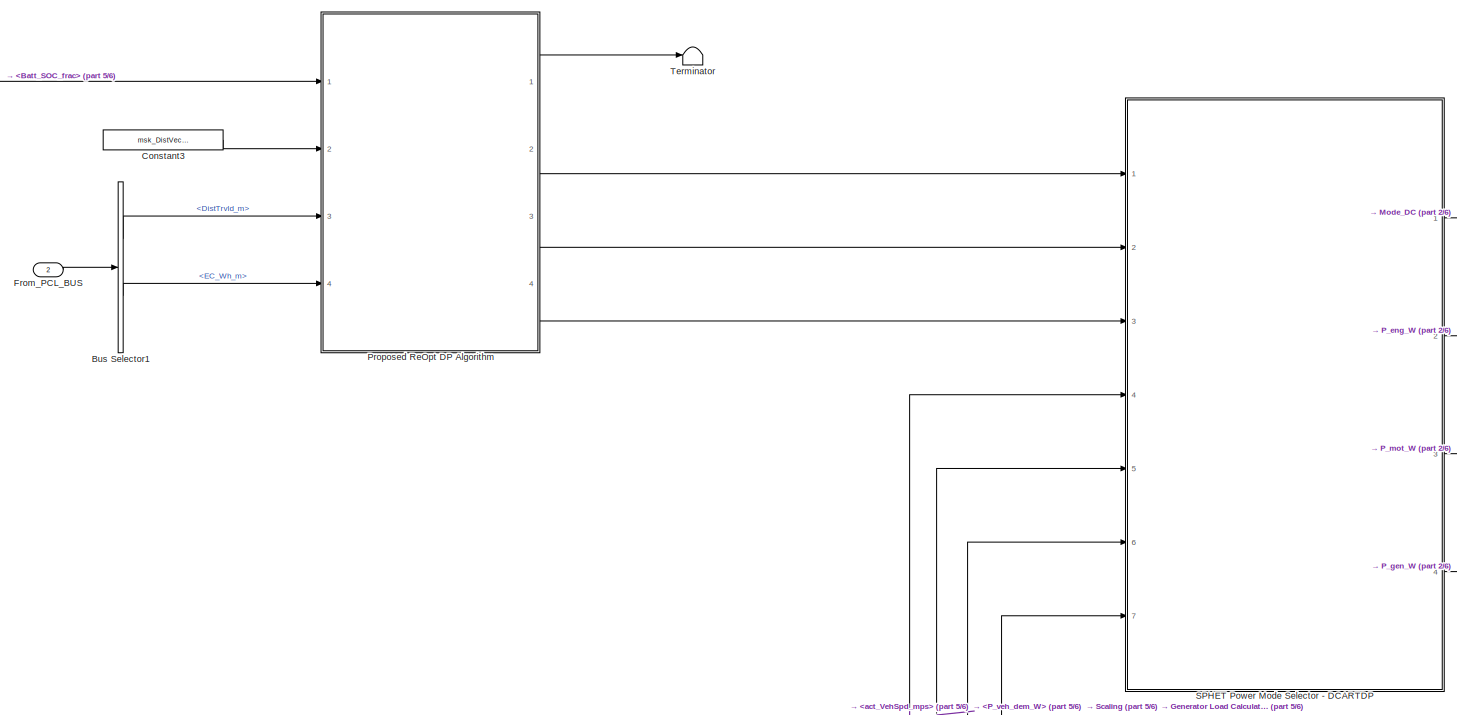
[diagram: Mid Truck Powertrain Variant Subsystem/Series Parallel Hybrid Electric Truck/Series Parallel Hybrid Electric Truck Energy Management System - part 1/6, top center region]
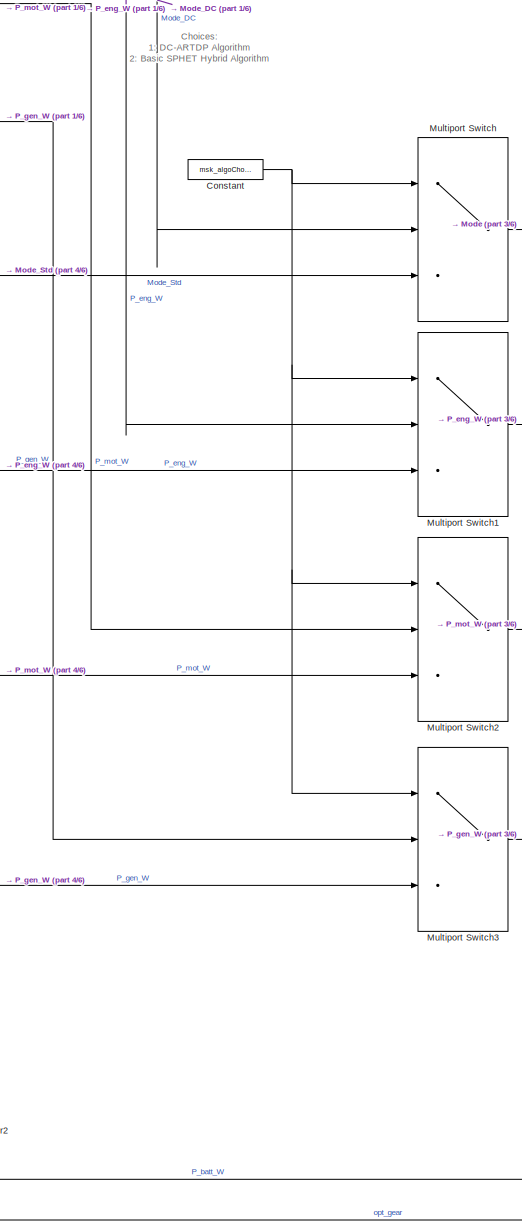
[diagram: Mid Truck Powertrain Variant Subsystem/Series Parallel Hybrid Electric Truck/Series Parallel Hybrid Electric Truck Energy Management System - part 2/6, middle right region]
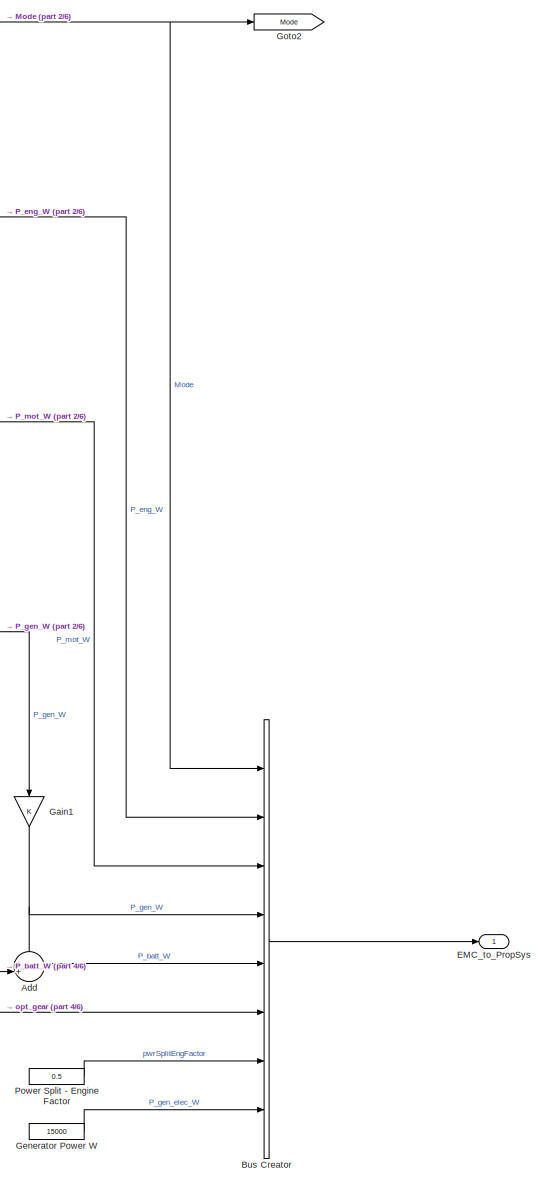
[diagram: Mid Truck Powertrain Variant Subsystem/Series Parallel Hybrid Electric Truck/Series Parallel Hybrid Electric Truck Energy Management System - part 3/6, bottom right region]
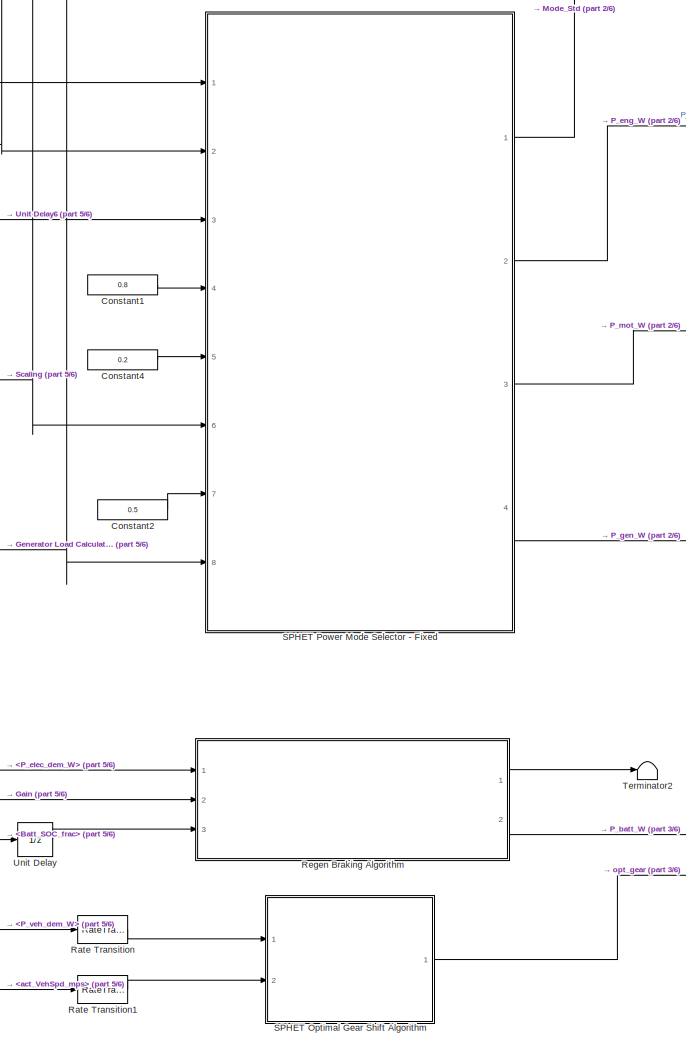
[diagram: Mid Truck Powertrain Variant Subsystem/Series Parallel Hybrid Electric Truck/Series Parallel Hybrid Electric Truck Energy Management System - part 4/6, bottom center region]
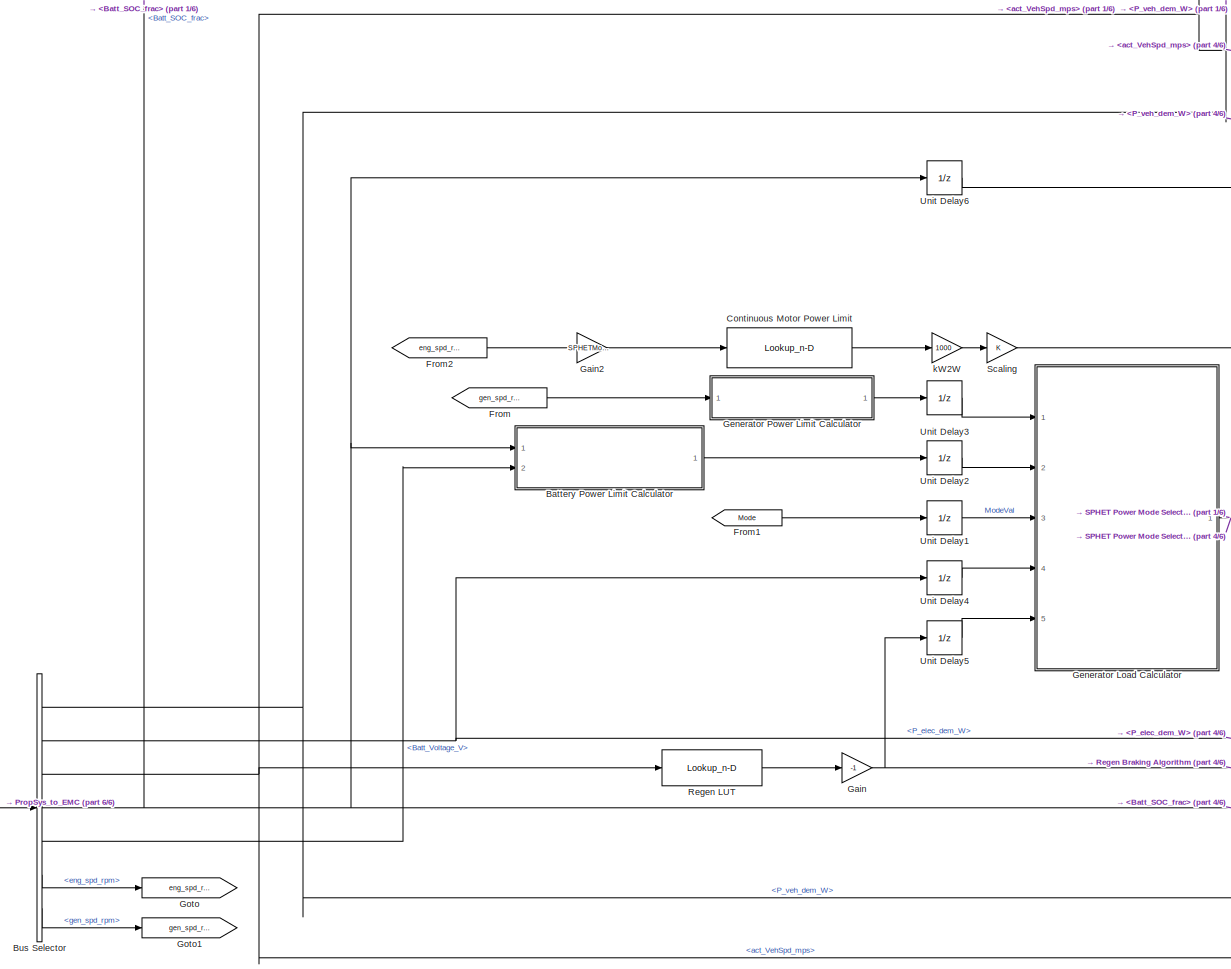
[diagram: Mid Truck Powertrain Variant Subsystem/Series Parallel Hybrid Electric Truck/Series Parallel Hybrid Electric Truck Energy Management System - part 5/6, bottom left region]
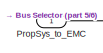
[diagram: Mid Truck Powertrain Variant Subsystem/Series Parallel Hybrid Electric Truck/Series Parallel Hybrid Electric Truck Energy Management System - part 6/6, bottom left region]
BLOCK [SubSystem] Mid Truck Powertrain Variant Subsystem/Series Parallel Hybrid Electric Truck/Series Parallel Hybrid Electric Truck Energy Management System
  Ports = [2, 1]
  RequestExecContextInheritance = off
BLOCK [Sum] Mid Truck Powertrain Variant Subsystem/Series Parallel Hybrid Electric Truck/Series Parallel Hybrid Electric Truck Energy Management System/Add
  IconShape = round
  InputSameDT = off
  Inputs = -+|
  OutDataTypeStr = Inherit: Inherit via internal rule
  Ports = [2, 1]
  SaturateOnIntegerOverflow = off
BLOCK [SubSystem] Mid Truck Powertrain Variant Subsystem/Series Parallel Hybrid Electric Truck/Series Parallel Hybrid Electric Truck Energy Management System/Battery Power Limit Calculator
  Ports = [2, 1]
  RequestExecContextInheritance = off
BLOCK [Inport] Mid Truck Powertrain Variant Subsystem/Series Parallel Hybrid Electric Truck/Series Parallel Hybrid Electric Truck Energy Management System/Battery Power Limit Calculator/<Batt_SOC_frac>
  IconDisplay = Port number
BLOCK [Inport] Mid Truck Powertrain Variant Subsystem/Series Parallel Hybrid Electric Truck/Series Parallel Hybrid Electric Truck Energy Management System/Battery Power Limit Calculator/<Batt_Voltage_V>
  IconDisplay = Port number
  Port = 2
BLOCK [Lookup_n-D] Mid Truck Powertrain Variant Subsystem/Series Parallel Hybrid Electric Truck/Series Parallel Hybrid Electric Truck Energy Management System/Battery Power Limit Calculator/Battery Continuous Charge Limit
  BreakpointsForDimension1 = SPHETModel.cellTempbpt_C
  BreakpointsForDimension2 = SPHETModel.socbpt
  ExtrapMethod = Clip
  InternalRulePriority = Speed
  Ports = [2, 1]
  RndMeth = Simplest
  Table = SPHETModel.ChgCurrLim_cont_A
  UseLastTableValue = on
BLOCK [Constant] Mid Truck Powertrain Variant Subsystem/Series Parallel Hybrid Electric Truck/Series Parallel Hybrid Electric Truck Energy Management System/Battery Power Limit Calculator/Constant3
  Value = 25
BLOCK [Gain] Mid Truck Powertrain Variant Subsystem/Series Parallel Hybrid Electric Truck/Series Parallel Hybrid Electric Truck Energy Management System/Battery Power Limit Calculator/Gain1
  OutDataTypeStr = Inherit: Inherit via internal rule
  ParamDataTypeStr = Inherit: Inherit via internal rule
  SaturateOnIntegerOverflow = off
BLOCK [Product] Mid Truck Powertrain Variant Subsystem/Series Parallel Hybrid Electric Truck/Series Parallel Hybrid Electric Truck Energy Management System/Battery Power Limit Calculator/Multiply
  InputSameDT = off
  OutDataTypeStr = Inherit: Inherit via internal rule
  Ports = [2, 1]
  RndMeth = Floor
  SaturateOnIntegerOverflow = off
BLOCK [Outport] Mid Truck Powertrain Variant Subsystem/Series Parallel Hybrid Electric Truck/Series Parallel Hybrid Electric Truck Energy Management System/Battery Power Limit Calculator/P_BattChgContLim
  IconDisplay = Port number
BLOCK [BusCreator] Mid Truck Powertrain Variant Subsystem/Series Parallel Hybrid Electric Truck/Series Parallel Hybrid Electric Truck Energy Management System/Bus Creator
  DisplayOption = bar
  InheritFromInputs = on
  Inputs = 8
  Ports = [8, 1]
BLOCK [BusSelector] Mid Truck Powertrain Variant Subsystem/Series Parallel Hybrid Electric Truck/Series Parallel Hybrid Electric Truck Energy Management System/Bus Selector
  OutputAsBus = off
  OutputSignals = P_veh_dem_W,P_elec_dem_W,act_VehSpd_mps,Batt_SOC_frac,Batt_Voltage_V,eng_spd_rpm,gen_spd_rpm
  Ports = [1, 7]
BLOCK [BusSelector] Mid Truck Powertrain Variant Subsystem/Series Parallel Hybrid Electric Truck/Series Parallel Hybrid Electric Truck Energy Management System/Bus Selector1
  OutputAsBus = off
  OutputSignals = DistTrvld_m,EC_Wh_m
  Ports = [1, 2]
BLOCK [Constant] Mid Truck Powertrain Variant Subsystem/Series Parallel Hybrid Electric Truck/Series Parallel Hybrid Electric Truck Energy Management System/Constant
  Value = msk_algoChoice
BLOCK [Constant] Mid Truck Powertrain Variant Subsystem/Series Parallel Hybrid Electric Truck/Series Parallel Hybrid Electric Truck Energy Management System/Constant1
  Value = 0.8
BLOCK [Constant] Mid Truck Powertrain Variant Subsystem/Series Parallel Hybrid Electric Truck/Series Parallel Hybrid Electric Truck Energy Management System/Constant2
  Value = 0.5
BLOCK [Constant] Mid Truck Powertrain Variant Subsystem/Series Parallel Hybrid Electric Truck/Series Parallel Hybrid Electric Truck Energy Management System/Constant3
  Value = msk_DistVector
BLOCK [Constant] Mid Truck Powertrain Variant Subsystem/Series Parallel Hybrid Electric Truck/Series Parallel Hybrid Electric Truck Energy Management System/Constant4
  Value = 0.2
BLOCK [Lookup_n-D] Mid Truck Powertrain Variant Subsystem/Series Parallel Hybrid Electric Truck/Series Parallel Hybrid Electric Truck Energy Management System/Continuous Motor Power Limit
  BreakpointsForDimension1 = SPHETModel.cont_mtr_trq_spdbpt
  InternalRulePriority = Speed
  NumberOfTableDimensions = 1
  Ports = [1, 1]
  RndMeth = Simplest
  Table = SPHETModel.cont_mtr_pwr_map
BLOCK [Outport] Mid Truck Powertrain Variant Subsystem/Series Parallel Hybrid Electric Truck/Series Parallel Hybrid Electric Truck Energy Management System/EMC_to_PropSys
  IconDisplay = Port number
BLOCK [From] Mid Truck Powertrain Variant Subsystem/Series Parallel Hybrid Electric Truck/Series Parallel Hybrid Electric Truck Energy Management System/From
  GotoTag = gen_spd_rpm
BLOCK [From] Mid Truck Powertrain Variant Subsystem/Series Parallel Hybrid Electric Truck/Series Parallel Hybrid Electric Truck Energy Management System/From1
  GotoTag = Mode
BLOCK [From] Mid Truck Powertrain Variant Subsystem/Series Parallel Hybrid Electric Truck/Series Parallel Hybrid Electric Truck Energy Management System/From2
  GotoTag = eng_spd_rpm
BLOCK [Inport] Mid Truck Powertrain Variant Subsystem/Series Parallel Hybrid Electric Truck/Series Parallel Hybrid Electric Truck Energy Management System/From_PCL_BUS
  IconDisplay = Port number
  Port = 2
BLOCK [Gain] Mid Truck Powertrain Variant Subsystem/Series Parallel Hybrid Electric Truck/Series Parallel Hybrid Electric Truck Energy Management System/Gain
  Gain = -1
  OutDataTypeStr = Inherit: Inherit via internal rule
  ParamDataTypeStr = Inherit: Inherit via internal rule
  SaturateOnIntegerOverflow = off
BLOCK [Gain] Mid Truck Powertrain Variant Subsystem/Series Parallel Hybrid Electric Truck/Series Parallel Hybrid Electric Truck Energy Management System/Gain1
  OutDataTypeStr = Inherit: Inherit via internal rule
  ParamDataTypeStr = Inherit: Inherit via internal rule
  SaturateOnIntegerOverflow = off
BLOCK [Gain] Mid Truck Powertrain Variant Subsystem/Series Parallel Hybrid Electric Truck/Series Parallel Hybrid Electric Truck Energy Management System/Gain2
  Gain = SPHETModel.mg_ratio_mot_out/SPHETModel.mg_ratio_eng_out
  OutDataTypeStr = Inherit: Inherit via internal rule
  ParamDataTypeStr = Inherit: Inherit via internal rule
  SaturateOnIntegerOverflow = off
BLOCK [SubSystem] Mid Truck Powertrain Variant Subsystem/Series Parallel Hybrid Electric Truck/Series Parallel Hybrid Electric Truck Energy Management System/Generator Load Calculator
  ErrorFcn = Stateflow.Translate.translate
  PermitHierarchicalResolution = ExplicitOnly
  Ports = [5, 1]
  RequestExecContextInheritance = off
  SFBlockType = MATLAB Function
  TreatAsAtomicUnit = on
BLOCK [Demux] Mid Truck Powertrain Variant Subsystem/Series Parallel Hybrid Electric Truck/Series Parallel Hybrid Electric Truck Energy Management System/Generator Load Calculator/ Demux 
  Outputs = 1
  Ports = [1, 1]
BLOCK [S-Function] Mid Truck Powertrain Variant Subsystem/Series Parallel Hybrid Electric Truck/Series Parallel Hybrid Electric Truck Energy Management System/Generator Load Calculator/ SFunction 
  EnableBusSupport = off
  FunctionName = sf_sfun
  PortCounts = [5 2]
  Ports = [5, 2]
  SFcnIsStateOwnerBlock = off
  SFunctionDeploymentMode = off
  Tag = Stateflow S-Function het_platoon_model 15
BLOCK [Terminator] Mid Truck Powertrain Variant Subsystem/Series Parallel Hybrid Electric Truck/Series Parallel Hybrid Electric Truck Energy Management System/Generator Load Calculator/ Terminator 
BLOCK [Inport] Mid Truck Powertrain Variant Subsystem/Series Parallel Hybrid Electric Truck/Series Parallel Hybrid Electric Truck Energy Management System/Generator Load Calculator/MODE_VAL
  IconDisplay = Port number
  Port = 3
BLOCK [Inport] Mid Truck Powertrain Variant Subsystem/Series Parallel Hybrid Electric Truck/Series Parallel Hybrid Electric Truck Energy Management System/Generator Load Calculator/P_BATT_LIM_W
  IconDisplay = Port number
  Port = 2
BLOCK [Inport] Mid Truck Powertrain Variant Subsystem/Series Parallel Hybrid Electric Truck/Series Parallel Hybrid Electric Truck Energy Management System/Generator Load Calculator/P_GEN_LIM_W
  IconDisplay = Port number
BLOCK [Inport] Mid Truck Powertrain Variant Subsystem/Series Parallel Hybrid Electric Truck/Series Parallel Hybrid Electric Truck Energy Management System/Generator Load Calculator/P_elec_dem_W
  IconDisplay = Port number
  Port = 4
BLOCK [Outport] Mid Truck Powertrain Variant Subsystem/Series Parallel Hybrid Electric Truck/Series Parallel Hybrid Electric Truck Energy Management System/Generator Load Calculator/P_gen_dem_W
  IconDisplay = Port number
BLOCK [Inport] Mid Truck Powertrain Variant Subsystem/Series Parallel Hybrid Electric Truck/Series Parallel Hybrid Electric Truck Energy Management System/Generator Load Calculator/P_regen_dem_W
  IconDisplay = Port number
  Port = 5
BLOCK [SubSystem] Mid Truck Powertrain Variant Subsystem/Series Parallel Hybrid Electric Truck/Series Parallel Hybrid Electric Truck Energy Management System/Generator Power Limit Calculator
  Ports = [1, 1]
  RequestExecContextInheritance = off
BLOCK [Constant] Mid Truck Powertrain Variant Subsystem/Series Parallel Hybrid Electric Truck/Series Parallel Hybrid Electric Truck Energy Management System/Generator Power Limit Calculator/Constant
  Value = 5000
BLOCK [Product] Mid Truck Powertrain Variant Subsystem/Series Parallel Hybrid Electric Truck/Series Parallel Hybrid Electric Truck Energy Management System/Generator Power Limit Calculator/Divide
  InputSameDT = off
  Inputs = */
  OutDataTypeStr = Inherit: Inherit via internal rule
  Ports = [2, 1]
  RndMeth = Floor
  SaturateOnIntegerOverflow = off
BLOCK [Gain] Mid Truck Powertrain Variant Subsystem/Series Parallel Hybrid Electric Truck/Series Parallel Hybrid Electric Truck Energy Management System/Generator Power Limit Calculator/Gain
  OutDataTypeStr = Inherit: Inherit via internal rule
  ParamDataTypeStr = Inherit: Inherit via internal rule
  SaturateOnIntegerOverflow = off
BLOCK [Lookup_n-D] Mid Truck Powertrain Variant Subsystem/Series Parallel Hybrid Electric Truck/Series Parallel Hybrid Electric Truck Energy Management System/Generator Power Limit Calculator/Generator Continuous Power kW
  BreakpointsForDimension1 = SPHETModel.cont_gen_mtr_trq_spdbpt
  ExtrapMethod = Clip
  InternalRulePriority = Speed
  NumberOfTableDimensions = 1
  Ports = [1, 1]
  RndMeth = Simplest
  Table = SPHETModel.cont_gen_mtr_pwr_map
  UseLastTableValue = on
BLOCK [Lookup_n-D] Mid Truck Powertrain Variant Subsystem/Series Parallel Hybrid Electric Truck/Series Parallel Hybrid Electric Truck Energy Management System/Generator Power Limit Calculator/Generator Continuous Torque
  BreakpointsForDimension1 = SPHETModel.cont_gen_mtr_trq_spdbpt
  ExtrapMethod = Clip
  InternalRulePriority = Speed
  NumberOfTableDimensions = 1
  Ports = [1, 1]
  RndMeth = Simplest
  Table = SPHETModel.cont_gen_mtr_trq_map
  UseLastTableValue = on
BLOCK [Lookup_n-D] Mid Truck Powertrain Variant Subsystem/Series Parallel Hybrid Electric Truck/Series Parallel Hybrid Electric Truck Energy Management System/Generator Power Limit Calculator/Generator Efficiency
  BreakpointsForDimension1 = SPHETModel.gen_mtr_trqbpt
  BreakpointsForDimension2 = SPHETModel.gen_mtr_spdbpt
  ExtrapMethod = Clip
  InternalRulePriority = Speed
  Ports = [2, 1]
  RndMeth = Simplest
  Table = SPHETModel.gen_mtr_eff_map
  UseLastTableValue = on
BLOCK [Outport] Mid Truck Powertrain Variant Subsystem/Series Parallel Hybrid Electric Truck/Series Parallel Hybrid Electric Truck Energy Management System/Generator Power Limit Calculator/P_GenMtrContLim
  IconDisplay = Port number
BLOCK [Inport] Mid Truck Powertrain Variant Subsystem/Series Parallel Hybrid Electric Truck/Series Parallel Hybrid Electric Truck Energy Management System/Generator Power Limit Calculator/gen_spd_rpm
  IconDisplay = Port number
BLOCK [Gain] Mid Truck Powertrain Variant Subsystem/Series Parallel Hybrid Electric Truck/Series Parallel Hybrid Electric Truck Energy Management System/Generator Power Limit Calculator/kW2W
  Gain = 1000
  OutDataTypeStr = Inherit: Inherit via internal rule
  ParamDataTypeStr = Inherit: Inherit via internal rule
  SaturateOnIntegerOverflow = off
BLOCK [Constant] Mid Truck Powertrain Variant Subsystem/Series Parallel Hybrid Electric Truck/Series Parallel Hybrid Electric Truck Energy Management System/Generator Power W
  Value = 15000
BLOCK [Goto] Mid Truck Powertrain Variant Subsystem/Series Parallel Hybrid Electric Truck/Series Parallel Hybrid Electric Truck Energy Management System/Goto
  GotoTag = eng_spd_rpm
BLOCK [Goto] Mid Truck Powertrain Variant Subsystem/Series Parallel Hybrid Electric Truck/Series Parallel Hybrid Electric Truck Energy Management System/Goto1
  GotoTag = gen_spd_rpm
BLOCK [Goto] Mid Truck Powertrain Variant Subsystem/Series Parallel Hybrid Electric Truck/Series Parallel Hybrid Electric Truck Energy Management System/Goto2
  GotoTag = Mode
BLOCK [MultiPortSwitch] Mid Truck Powertrain Variant Subsystem/Series Parallel Hybrid Electric Truck/Series Parallel Hybrid Electric Truck Energy Management System/Multiport Switch
  InputSameDT = off
  Inputs = 2
  Ports = [3, 1]
  SaturateOnIntegerOverflow = off
BLOCK [MultiPortSwitch] Mid Truck Powertrain Variant Subsystem/Series Parallel Hybrid Electric Truck/Series Parallel Hybrid Electric Truck Energy Management System/Multiport Switch1
  InputSameDT = off
  Inputs = 2
  Ports = [3, 1]
  SaturateOnIntegerOverflow = off
BLOCK [MultiPortSwitch] Mid Truck Powertrain Variant Subsystem/Series Parallel Hybrid Electric Truck/Series Parallel Hybrid Electric Truck Energy Management System/Multiport Switch2
  InputSameDT = off
  Inputs = 2
  Ports = [3, 1]
  SaturateOnIntegerOverflow = off
BLOCK [MultiPortSwitch] Mid Truck Powertrain Variant Subsystem/Series Parallel Hybrid Electric Truck/Series Parallel Hybrid Electric Truck Energy Management System/Multiport Switch3
  InputSameDT = off
  Inputs = 2
  Ports = [3, 1]
  SaturateOnIntegerOverflow = off
BLOCK [Constant] Mid Truck Powertrain Variant Subsystem/Series Parallel Hybrid Electric Truck/Series Parallel Hybrid Electric Truck Energy Management System/Power Split - Engine Factor
  Value = 0.5
BLOCK [Inport] Mid Truck Powertrain Variant Subsystem/Series Parallel Hybrid Electric Truck/Series Parallel Hybrid Electric Truck Energy Management System/PropSys_to_EMC
  IconDisplay = Port number
BLOCK [SubSystem] Mid Truck Powertrain Variant Subsystem/Series Parallel Hybrid Electric Truck/Series Parallel Hybrid Electric Truck Energy Management System/Proposed ReOpt DP Algorithm
  Commented = on
  Ports = [4, 4]
  RequestExecContextInheritance = off
BLOCK [Inport] Mid Truck Powertrain Variant Subsystem/Series Parallel Hybrid Electric Truck/Series Parallel Hybrid Electric Truck Energy Management System/Proposed ReOpt DP Algorithm/<Batt_SOC_frac>
  IconDisplay = Port number
BLOCK [Abs] Mid Truck Powertrain Variant Subsystem/Series Parallel Hybrid Electric Truck/Series Parallel Hybrid Electric Truck Energy Management System/Proposed ReOpt DP Algorithm/Abs
  SaturateOnIntegerOverflow = off
BLOCK [Abs] Mid Truck Powertrain Variant Subsystem/Series Parallel Hybrid Electric Truck/Series Parallel Hybrid Electric Truck Energy Management System/Proposed ReOpt DP Algorithm/Abs1
  SaturateOnIntegerOverflow = off
BLOCK [Assertion] Mid Truck Powertrain Variant Subsystem/Series Parallel Hybrid Electric Truck/Series Parallel Hybrid Electric Truck Energy Management System/Proposed ReOpt DP Algorithm/Assertion
  AssertionFailFcn = set_param(bdroot,'SimulationCommand','pause');
  StopWhenAssertionFail = off
BLOCK [Reference] Mid Truck Powertrain Variant Subsystem/Series Parallel Hybrid Electric Truck/Series Parallel Hybrid Electric Truck Energy Management System/Proposed ReOpt DP Algorithm/Compare To Constant  REF=simulink/Logic and Bit
Operations/Compare
To Constant
  Ports = [1, 1]
  SourceBlock = simulink/Logic and Bit\nOperations/Compare\nTo Constant
  SourceProductBaseCode = SL
  SourceProductName = Simulink
  SourceType = Compare To Constant
BLOCK [Constant] Mid Truck Powertrain Variant Subsystem/Series Parallel Hybrid Electric Truck/Series Parallel Hybrid Electric Truck Energy Management System/Proposed ReOpt DP Algorithm/Constant1
  Value = msk_OptHybMode
BLOCK [Constant] Mid Truck Powertrain Variant Subsystem/Series Parallel Hybrid Electric Truck/Series Parallel Hybrid Electric Truck Energy Management System/Proposed ReOpt DP Algorithm/Constant14
  Value = msk_OptEC
BLOCK [Constant] Mid Truck Powertrain Variant Subsystem/Series Parallel Hybrid Electric Truck/Series Parallel Hybrid Electric Truck Energy Management System/Proposed ReOpt DP Algorithm/Constant2
  Value = msk_OptMotPwr
BLOCK [Constant] Mid Truck Powertrain Variant Subsystem/Series Parallel Hybrid Electric Truck/Series Parallel Hybrid Electric Truck Energy Management System/Proposed ReOpt DP Algorithm/Constant5
  Value = msk_OptGenPwr
BLOCK [Constant] Mid Truck Powertrain Variant Subsystem/Series Parallel Hybrid Electric Truck/Series Parallel Hybrid Electric Truck Energy Management System/Proposed ReOpt DP Algorithm/Constant6
  Value = msk_OptSOC
BLOCK [Inport] Mid Truck Powertrain Variant Subsystem/Series Parallel Hybrid Electric Truck/Series Parallel Hybrid Electric Truck Energy Management System/Proposed ReOpt DP Algorithm/Distance_Query
  IconDisplay = Port number
  Port = 3
BLOCK [Inport] Mid Truck Powertrain Variant Subsystem/Series Parallel Hybrid Electric Truck/Series Parallel Hybrid Electric Truck Energy Management System/Proposed ReOpt DP Algorithm/Distance_Vector
  IconDisplay = Port number
  Port = 2
BLOCK [Inport] Mid Truck Powertrain Variant Subsystem/Series Parallel Hybrid Electric Truck/Series Parallel Hybrid Electric Truck Energy Management System/Proposed ReOpt DP Algorithm/EC_Wh_m
  IconDisplay = Port number
  Port = 4
BLOCK [Reference] Mid Truck Powertrain Variant Subsystem/Series Parallel Hybrid Electric Truck/Series Parallel Hybrid Electric Truck Energy Management System/Proposed ReOpt DP Algorithm/Index Finder  REF=custom_func/Index Finder
  Ports = [2, 2]
  SourceBlock = custom_func/Index Finder
  SourceType = SubSystem
BLOCK [Outport] Mid Truck Powertrain Variant Subsystem/Series Parallel Hybrid Electric Truck/Series Parallel Hybrid Electric Truck Energy Management System/Proposed ReOpt DP Algorithm/Opt_HybMode
  IconDisplay = Port number
  Port = 2
BLOCK [Outport] Mid Truck Powertrain Variant Subsystem/Series Parallel Hybrid Electric Truck/Series Parallel Hybrid Electric Truck Energy Management System/Proposed ReOpt DP Algorithm/Opt_P_gen_W
  IconDisplay = Port number
  Port = 3
BLOCK [Outport] Mid Truck Powertrain Variant Subsystem/Series Parallel Hybrid Electric Truck/Series Parallel Hybrid Electric Truck Energy Management System/Proposed ReOpt DP Algorithm/Opt_P_mot_W
  IconDisplay = Port number
  Port = 4
BLOCK [SubSystem] Mid Truck Powertrain Variant Subsystem/Series Parallel Hybrid Electric Truck/Series Parallel Hybrid Electric Truck Energy Management System/Proposed ReOpt DP Algorithm/Optimal EC_Wh_m
  ErrorFcn = Stateflow.Translate.translate
  PermitHierarchicalResolution = ExplicitOnly
  Ports = [2, 1]
  RequestExecContextInheritance = off
  SFBlockType = MATLAB Function
  TreatAsAtomicUnit = on
BLOCK [Demux] Mid Truck Powertrain Variant Subsystem/Series Parallel Hybrid Electric Truck/Series Parallel Hybrid Electric Truck Energy Management System/Proposed ReOpt DP Algorithm/Optimal EC_Wh_m/ Demux 
  Outputs = 1
  Ports = [1, 1]
BLOCK [S-Function] Mid Truck Powertrain Variant Subsystem/Series Parallel Hybrid Electric Truck/Series Parallel Hybrid Electric Truck Energy Management System/Proposed ReOpt DP Algorithm/Optimal EC_Wh_m/ SFunction 
  EnableBusSupport = off
  FunctionName = sf_sfun
  PortCounts = [2 2]
  Ports = [2, 2]
  SFcnIsStateOwnerBlock = off
  SFunctionDeploymentMode = off
  Tag = Stateflow S-Function het_platoon_model 19
BLOCK [Terminator] Mid Truck Powertrain Variant Subsystem/Series Parallel Hybrid Electric Truck/Series Parallel Hybrid Electric Truck Energy Management System/Proposed ReOpt DP Algorithm/Optimal EC_Wh_m/ Terminator 
BLOCK [Outport] Mid Truck Powertrain Variant Subsystem/Series Parallel Hybrid Electric Truck/Series Parallel Hybrid Electric Truck Energy Management System/Proposed ReOpt DP Algorithm/Optimal EC_Wh_m/element
  IconDisplay = Port number
BLOCK [Inport] Mid Truck Powertrain Variant Subsystem/Series Parallel Hybrid Electric Truck/Series Parallel Hybrid Electric Truck Energy Management System/Proposed ReOpt DP Algorithm/Optimal EC_Wh_m/index
  IconDisplay = Port number
BLOCK [Inport] Mid Truck Powertrain Variant Subsystem/Series Parallel Hybrid Electric Truck/Series Parallel Hybrid Electric Truck Energy Management System/Proposed ReOpt DP Algorithm/Optimal EC_Wh_m/vector
  IconDisplay = Port number
  Port = 2
BLOCK [SubSystem] Mid Truck Powertrain Variant Subsystem/Series Parallel Hybrid Electric Truck/Series Parallel Hybrid Electric Truck Energy Management System/Proposed ReOpt DP Algorithm/Optimal HybMode Lookup
  ErrorFcn = Stateflow.Translate.translate
  PermitHierarchicalResolution = ExplicitOnly
  Ports = [2, 1]
  RequestExecContextInheritance = off
  SFBlockType = MATLAB Function
  TreatAsAtomicUnit = on
BLOCK [Demux] Mid Truck Powertrain Variant Subsystem/Series Parallel Hybrid Electric Truck/Series Parallel Hybrid Electric Truck Energy Management System/Proposed ReOpt DP Algorithm/Optimal HybMode Lookup/ Demux 
  Outputs = 1
  Ports = [1, 1]
BLOCK [S-Function] Mid Truck Powertrain Variant Subsystem/Series Parallel Hybrid Electric Truck/Series Parallel Hybrid Electric Truck Energy Management System/Proposed ReOpt DP Algorithm/Optimal HybMode Lookup/ SFunction 
  EnableBusSupport = off
  FunctionName = sf_sfun
  PortCounts = [2 2]
  Ports = [2, 2]
  SFcnIsStateOwnerBlock = off
  SFunctionDeploymentMode = off
  Tag = Stateflow S-Function het_platoon_model 20
BLOCK [Terminator] Mid Truck Powertrain Variant Subsystem/Series Parallel Hybrid Electric Truck/Series Parallel Hybrid Electric Truck Energy Management System/Proposed ReOpt DP Algorithm/Optimal HybMode Lookup/ Terminator 
BLOCK [Outport] Mid Truck Powertrain Variant Subsystem/Series Parallel Hybrid Electric Truck/Series Parallel Hybrid Electric Truck Energy Management System/Proposed ReOpt DP Algorithm/Optimal HybMode Lookup/element
  IconDisplay = Port number
BLOCK [Inport] Mid Truck Powertrain Variant Subsystem/Series Parallel Hybrid Electric Truck/Series Parallel Hybrid Electric Truck Energy Management System/Proposed ReOpt DP Algorithm/Optimal HybMode Lookup/index
  IconDisplay = Port number
BLOCK [Inport] Mid Truck Powertrain Variant Subsystem/Series Parallel Hybrid Electric Truck/Series Parallel Hybrid Electric Truck Energy Management System/Proposed ReOpt DP Algorithm/Optimal HybMode Lookup/vector
  IconDisplay = Port number
  Port = 2
BLOCK [SubSystem] Mid Truck Powertrain Variant Subsystem/Series Parallel Hybrid Electric Truck/Series Parallel Hybrid Electric Truck Energy Management System/Proposed ReOpt DP Algorithm/Optimal Pgen Lookup
  ErrorFcn = Stateflow.Translate.translate
  PermitHierarchicalResolution = ExplicitOnly
  Ports = [2, 1]
  RequestExecContextInheritance = off
  SFBlockType = MATLAB Function
  TreatAsAtomicUnit = on
BLOCK [Demux] Mid Truck Powertrain Variant Subsystem/Series Parallel Hybrid Electric Truck/Series Parallel Hybrid Electric Truck Energy Management System/Proposed ReOpt DP Algorithm/Optimal Pgen Lookup/ Demux 
  Outputs = 1
  Ports = [1, 1]
BLOCK [S-Function] Mid Truck Powertrain Variant Subsystem/Series Parallel Hybrid Electric Truck/Series Parallel Hybrid Electric Truck Energy Management System/Proposed ReOpt DP Algorithm/Optimal Pgen Lookup/ SFunction 
  EnableBusSupport = off
  FunctionName = sf_sfun
  PortCounts = [2 2]
  Ports = [2, 2]
  SFcnIsStateOwnerBlock = off
  SFunctionDeploymentMode = off
  Tag = Stateflow S-Function het_platoon_model 22
BLOCK [Terminator] Mid Truck Powertrain Variant Subsystem/Series Parallel Hybrid Electric Truck/Series Parallel Hybrid Electric Truck Energy Management System/Proposed ReOpt DP Algorithm/Optimal Pgen Lookup/ Terminator 
BLOCK [Outport] Mid Truck Powertrain Variant Subsystem/Series Parallel Hybrid Electric Truck/Series Parallel Hybrid Electric Truck Energy Management System/Proposed ReOpt DP Algorithm/Optimal Pgen Lookup/element
  IconDisplay = Port number
BLOCK [Inport] Mid Truck Powertrain Variant Subsystem/Series Parallel Hybrid Electric Truck/Series Parallel Hybrid Electric Truck Energy Management System/Proposed ReOpt DP Algorithm/Optimal Pgen Lookup/index
  IconDisplay = Port number
BLOCK [Inport] Mid Truck Powertrain Variant Subsystem/Series Parallel Hybrid Electric Truck/Series Parallel Hybrid Electric Truck Energy Management System/Proposed ReOpt DP Algorithm/Optimal Pgen Lookup/vector
  IconDisplay = Port number
  Port = 2
BLOCK [SubSystem] Mid Truck Powertrain Variant Subsystem/Series Parallel Hybrid Electric Truck/Series Parallel Hybrid Electric Truck Energy Management System/Proposed ReOpt DP Algorithm/Optimal Pmot Lookup
  ErrorFcn = Stateflow.Translate.translate
  PermitHierarchicalResolution = ExplicitOnly
  Ports = [2, 1]
  RequestExecContextInheritance = off
  SFBlockType = MATLAB Function
  TreatAsAtomicUnit = on
BLOCK [Demux] Mid Truck Powertrain Variant Subsystem/Series Parallel Hybrid Electric Truck/Series Parallel Hybrid Electric Truck Energy Management System/Proposed ReOpt DP Algorithm/Optimal Pmot Lookup/ Demux 
  Outputs = 1
  Ports = [1, 1]
BLOCK [S-Function] Mid Truck Powertrain Variant Subsystem/Series Parallel Hybrid Electric Truck/Series Parallel Hybrid Electric Truck Energy Management System/Proposed ReOpt DP Algorithm/Optimal Pmot Lookup/ SFunction 
  EnableBusSupport = off
  FunctionName = sf_sfun
  PortCounts = [2 2]
  Ports = [2, 2]
  SFcnIsStateOwnerBlock = off
  SFunctionDeploymentMode = off
  Tag = Stateflow S-Function het_platoon_model 25
BLOCK [Terminator] Mid Truck Powertrain Variant Subsystem/Series Parallel Hybrid Electric Truck/Series Parallel Hybrid Electric Truck Energy Management System/Proposed ReOpt DP Algorithm/Optimal Pmot Lookup/ Terminator 
BLOCK [Outport] Mid Truck Powertrain Variant Subsystem/Series Parallel Hybrid Electric Truck/Series Parallel Hybrid Electric Truck Energy Management System/Proposed ReOpt DP Algorithm/Optimal Pmot Lookup/element
  IconDisplay = Port number
BLOCK [Inport] Mid Truck Powertrain Variant Subsystem/Series Parallel Hybrid Electric Truck/Series Parallel Hybrid Electric Truck Energy Management System/Proposed ReOpt DP Algorithm/Optimal Pmot Lookup/index
  IconDisplay = Port number
BLOCK [Inport] Mid Truck Powertrain Variant Subsystem/Series Parallel Hybrid Electric Truck/Series Parallel Hybrid Electric Truck Energy Management System/Proposed ReOpt DP Algorithm/Optimal Pmot Lookup/vector
  IconDisplay = Port number
  Port = 2
BLOCK [SubSystem] Mid Truck Powertrain Variant Subsystem/Series Parallel Hybrid Electric Truck/Series Parallel Hybrid Electric Truck Energy Management System/Proposed ReOpt DP Algorithm/Optimal SoC Lookup
  ErrorFcn = Stateflow.Translate.translate
  PermitHierarchicalResolution = ExplicitOnly
  Ports = [2, 1]
  RequestExecContextInheritance = off
  SFBlockType = MATLAB Function
  TreatAsAtomicUnit = on
BLOCK [Demux] Mid Truck Powertrain Variant Subsystem/Series Parallel Hybrid Electric Truck/Series Parallel Hybrid Electric Truck Energy Management System/Proposed ReOpt DP Algorithm/Optimal SoC Lookup/ Demux 
  Outputs = 1
  Ports = [1, 1]
BLOCK [S-Function] Mid Truck Powertrain Variant Subsystem/Series Parallel Hybrid Electric Truck/Series Parallel Hybrid Electric Truck Energy Management System/Proposed ReOpt DP Algorithm/Optimal SoC Lookup/ SFunction 
  EnableBusSupport = off
  FunctionName = sf_sfun
  PortCounts = [2 2]
  Ports = [2, 2]
  SFcnIsStateOwnerBlock = off
  SFunctionDeploymentMode = off
  Tag = Stateflow S-Function het_platoon_model 26
BLOCK [Terminator] Mid Truck Powertrain Variant Subsystem/Series Parallel Hybrid Electric Truck/Series Parallel Hybrid Electric Truck Energy Management System/Proposed ReOpt DP Algorithm/Optimal SoC Lookup/ Terminator 
BLOCK [Outport] Mid Truck Powertrain Variant Subsystem/Series Parallel Hybrid Electric Truck/Series Parallel Hybrid Electric Truck Energy Management System/Proposed ReOpt DP Algorithm/Optimal SoC Lookup/element
  IconDisplay = Port number
BLOCK [Inport] Mid Truck Powertrain Variant Subsystem/Series Parallel Hybrid Electric Truck/Series Parallel Hybrid Electric Truck Energy Management System/Proposed ReOpt DP Algorithm/Optimal SoC Lookup/index
  IconDisplay = Port number
BLOCK [Inport] Mid Truck Powertrain Variant Subsystem/Series Parallel Hybrid Electric Truck/Series Parallel Hybrid Electric Truck Energy Management System/Proposed ReOpt DP Algorithm/Optimal SoC Lookup/vector
  IconDisplay = Port number
  Port = 2
BLOCK [Stop] Mid Truck Powertrain Variant Subsystem/Series Parallel Hybrid Electric Truck/Series Parallel Hybrid Electric Truck Energy Management System/Proposed ReOpt DP Algorithm/Stop Simulation
  Commented = on
BLOCK [Sum] Mid Truck Powertrain Variant Subsystem/Series Parallel Hybrid Electric Truck/Series Parallel Hybrid Electric Truck Energy Management System/Proposed ReOpt DP Algorithm/Subtract
  InputSameDT = off
  Inputs = +-
  OutDataTypeStr = Inherit: Inherit via internal rule
  Ports = [2, 1]
  SaturateOnIntegerOverflow = off
BLOCK [Sum] Mid Truck Powertrain Variant Subsystem/Series Parallel Hybrid Electric Truck/Series Parallel Hybrid Electric Truck Energy Management System/Proposed ReOpt DP Algorithm/Subtract1
  InputSameDT = off
  Inputs = +-
  OutDataTypeStr = Inherit: Inherit via internal rule
  Ports = [2, 1]
  SaturateOnIntegerOverflow = off
BLOCK [Terminator] Mid Truck Powertrain Variant Subsystem/Series Parallel Hybrid Electric Truck/Series Parallel Hybrid Electric Truck Energy Management System/Proposed ReOpt DP Algorithm/Terminator3
BLOCK [Terminator] Mid Truck Powertrain Variant Subsystem/Series Parallel Hybrid Electric Truck/Series Parallel Hybrid Electric Truck Energy Management System/Proposed ReOpt DP Algorithm/Terminator6
BLOCK [Terminator] Mid Truck Powertrain Variant Subsystem/Series Parallel Hybrid Electric Truck/Series Parallel Hybrid Electric Truck Energy Management System/Proposed ReOpt DP Algorithm/Terminator7
BLOCK [Terminator] Mid Truck Powertrain Variant Subsystem/Series Parallel Hybrid Electric Truck/Series Parallel Hybrid Electric Truck Energy Management System/Proposed ReOpt DP Algorithm/Terminator9
BLOCK [ToWorkspace] Mid Truck Powertrain Variant Subsystem/Series Parallel Hybrid Electric Truck/Series Parallel Hybrid Electric Truck Energy Management System/Proposed ReOpt DP Algorithm/To Workspace
  FixptAsFi = on
  MaxDataPoints = inf
  Ports = [1]
  SampleTime = 1
  Save2DSignal = 2-D array (concatenate along first dimension)
  SaveFormat = Timeseries
  VariableName = simidx
BLOCK [ToWorkspace] Mid Truck Powertrain Variant Subsystem/Series Parallel Hybrid Electric Truck/Series Parallel Hybrid Electric Truck Energy Management System/Proposed ReOpt DP Algorithm/To Workspace1
  FixptAsFi = on
  MaxDataPoints = inf
  Ports = [1]
  SampleTime = 1
  Save2DSignal = 2-D array (concatenate along first dimension)
  SaveFormat = Timeseries
  VariableName = simbattSOC
BLOCK [SubSystem] Mid Truck Powertrain Variant Subsystem/Series Parallel Hybrid Electric Truck/Series Parallel Hybrid Electric Truck Energy Management System/Proposed ReOpt DP Algorithm/Wait
  ErrorFcn = Stateflow.Translate.translate
  PermitHierarchicalResolution = ExplicitOnly
  Ports = [1, 2]
  RequestExecContextInheritance = off
  SFBlockType = Chart
  TreatAsAtomicUnit = on
BLOCK [Demux] Mid Truck Powertrain Variant Subsystem/Series Parallel Hybrid Electric Truck/Series Parallel Hybrid Electric Truck Energy Management System/Proposed ReOpt DP Algorithm/Wait/ Demux 
  Outputs = 1
  Ports = [1, 1]
BLOCK [S-Function] Mid Truck Powertrain Variant Subsystem/Series Parallel Hybrid Electric Truck/Series Parallel Hybrid Electric Truck Energy Management System/Proposed ReOpt DP Algorithm/Wait/ SFunction 
  EnableBusSupport = off
  FunctionName = sf_sfun
  PortCounts = [1 3]
  Ports = [1, 3]
  SFcnIsStateOwnerBlock = off
  SFunctionDeploymentMode = off
  Tag = Stateflow S-Function het_platoon_model 27
BLOCK [Terminator] Mid Truck Powertrain Variant Subsystem/Series Parallel Hybrid Electric Truck/Series Parallel Hybrid Electric Truck Energy Management System/Proposed ReOpt DP Algorithm/Wait/ Terminator 
BLOCK [Outport] Mid Truck Powertrain Variant Subsystem/Series Parallel Hybrid Electric Truck/Series Parallel Hybrid Electric Truck Energy Management System/Proposed ReOpt DP Algorithm/Wait/Counter
  IconDisplay = Port number
  Port = 2
BLOCK [Inport] Mid Truck Powertrain Variant Subsystem/Series Parallel Hybrid Electric Truck/Series Parallel Hybrid Electric Truck Energy Management System/Proposed ReOpt DP Algorithm/Wait/ReOptReq
  IconDisplay = Port number
BLOCK [Outport] Mid Truck Powertrain Variant Subsystem/Series Parallel Hybrid Electric Truck/Series Parallel Hybrid Electric Truck Energy Management System/Proposed ReOpt DP Algorithm/Wait/Trigger
  IconDisplay = Port number
BLOCK [Outport] Mid Truck Powertrain Variant Subsystem/Series Parallel Hybrid Electric Truck/Series Parallel Hybrid Electric Truck Energy Management System/Proposed ReOpt DP Algorithm/distIdx
  IconDisplay = Port number
BLOCK [RateTransition] Mid Truck Powertrain Variant Subsystem/Series Parallel Hybrid Electric Truck/Series Parallel Hybrid Electric Truck Energy Management System/Rate Transition
  OutPortSampleTime = sim_t_step
BLOCK [RateTransition] Mid Truck Powertrain Variant Subsystem/Series Parallel Hybrid Electric Truck/Series Parallel Hybrid Electric Truck Energy Management System/Rate Transition1
  OutPortSampleTime = sim_t_step
BLOCK [SubSystem] Mid Truck Powertrain Variant Subsystem/Series Parallel Hybrid Electric Truck/Series Parallel Hybrid Electric Truck Energy Management System/Regen Braking Algorithm
  ErrorFcn = Stateflow.Translate.translate
  PermitHierarchicalResolution = ExplicitOnly
  Ports = [3, 2]
  RequestExecContextInheritance = off
  SFBlockType = Chart
  TreatAsAtomicUnit = on
BLOCK [Demux] Mid Truck Powertrain Variant Subsystem/Series Parallel Hybrid Electric Truck/Series Parallel Hybrid Electric Truck Energy Management System/Regen Braking Algorithm/ Demux 
  Outputs = 1
  Ports = [1, 1]
BLOCK [S-Function] Mid Truck Powertrain Variant Subsystem/Series Parallel Hybrid Electric Truck/Series Parallel Hybrid Electric Truck Energy Management System/Regen Braking Algorithm/ SFunction 
  EnableBusSupport = off
  FunctionName = sf_sfun
  PortCounts = [3 3]
  Ports = [3, 3]
  SFcnIsStateOwnerBlock = off
  SFunctionDeploymentMode = off
  Tag = Stateflow S-Function het_platoon_model 28
BLOCK [Terminator] Mid Truck Powertrain Variant Subsystem/Series Parallel Hybrid Electric Truck/Series Parallel Hybrid Electric Truck Energy Management System/Regen Braking Algorithm/ Terminator 
BLOCK [Outport] Mid Truck Powertrain Variant Subsystem/Series Parallel Hybrid Electric Truck/Series Parallel Hybrid Electric Truck Energy Management System/Regen Braking Algorithm/P_batt_W
  IconDisplay = Port number
  Port = 2
BLOCK [Inport] Mid Truck Powertrain Variant Subsystem/Series Parallel Hybrid Electric Truck/Series Parallel Hybrid Electric Truck Energy Management System/Regen Braking Algorithm/P_elec_W
  IconDisplay = Port number
BLOCK [Outport] Mid Truck Powertrain Variant Subsystem/Series Parallel Hybrid Electric Truck/Series Parallel Hybrid Electric Truck Energy Management System/Regen Braking Algorithm/P_mechbrk_W
  IconDisplay = Port number
BLOCK [Inport] Mid Truck Powertrain Variant Subsystem/Series Parallel Hybrid Electric Truck/Series Parallel Hybrid Electric Truck Energy Management System/Regen Braking Algorithm/P_motreg_max_W
  IconDisplay = Port number
  Port = 2
BLOCK [Inport] Mid Truck Powertrain Variant Subsystem/Series Parallel Hybrid Electric Truck/Series Parallel Hybrid Electric Truck Energy Management System/Regen Braking Algorithm/SoC
  IconDisplay = Port number
  Port = 3
BLOCK [Lookup_n-D] Mid Truck Powertrain Variant Subsystem/Series Parallel Hybrid Electric Truck/Series Parallel Hybrid Electric Truck Energy Management System/Regen LUT
  BreakpointsForDimension1 = msk_regen_spd_bpt
  ExtrapMethod = Clip
  InternalRulePriority = Speed
  NumberOfTableDimensions = 1
  Ports = [1, 1]
  RndMeth = Simplest
  Table = msk_regen_pwr_vec*-1
  UseLastTableValue = on
BLOCK [SubSystem] Mid Truck Powertrain Variant Subsystem/Series Parallel Hybrid Electric Truck/Series Parallel Hybrid Electric Truck Energy Management System/SPHET Optimal Gear Shift Algorithm
  Ports = [2, 1]
  RequestExecContextInheritance = off
BLOCK [BusCreator] Mid Truck Powertrain Variant Subsystem/Series Parallel Hybrid Electric Truck/Series Parallel Hybrid Electric Truck Energy Management System/SPHET Optimal Gear Shift Algorithm/Bus Creator
  DisplayOption = bar
  InheritFromInputs = on
  Inputs = 10
  Ports = [10, 1]
BLOCK [Constant] Mid Truck Powertrain Variant Subsystem/Series Parallel Hybrid Electric Truck/Series Parallel Hybrid Electric Truck Energy Management System/SPHET Optimal Gear Shift Algorithm/Constant
  Value = eps
BLOCK [Product] Mid Truck Powertrain Variant Subsystem/Series Parallel Hybrid Electric Truck/Series Parallel Hybrid Electric Truck Energy Management System/SPHET Optimal Gear Shift Algorithm/Divide
  InputSameDT = off
  Inputs = */
  OutDataTypeStr = Inherit: Inherit via internal rule
  Ports = [2, 1]
  RndMeth = Floor
  SaturateOnIntegerOverflow = off
BLOCK [Lookup_n-D] Mid Truck Powertrain Variant Subsystem/Series Parallel Hybrid Electric Truck/Series Parallel Hybrid Electric Truck Energy Management System/SPHET Optimal Gear Shift Algorithm/Fuel LUT @ Gear 1
  BreakpointsForDimension1 = CTModel.eng_map_trq_bpt(10:end) * (CTModel.gear_ratios(1) * CTModel.fd_ratio)
  BreakpointsForDimension2 = (CTModel.eng_map_spd_bpt * 0.1047 * CTModel.ld_tire_rad_m)/(CTModel.gear_ratios(1) * CTModel.fd_ratio)
  ExtrapMethod = Clip
  InternalRulePriority = Speed
  Ports = [2, 1]
  RndMeth = Simplest
  Table = CTModel.eng_fuel_map(10:end,:)
  UseLastTableValue = on
BLOCK [Lookup_n-D] Mid Truck Powertrain Variant Subsystem/Series Parallel Hybrid Electric Truck/Series Parallel Hybrid Electric Truck Energy Management System/SPHET Optimal Gear Shift Algorithm/Fuel LUT @ Gear 10
  BreakpointsForDimension1 = CTModel.eng_map_trq_bpt(10:end) * (CTModel.gear_ratios(10) * CTModel.fd_ratio)
  BreakpointsForDimension2 = (CTModel.eng_map_spd_bpt * 0.1047 * CTModel.ld_tire_rad_m)/(CTModel.gear_ratios(10) * CTModel.fd_ratio)
  ExtrapMethod = Clip
  InternalRulePriority = Speed
  Ports = [2, 1]
  RndMeth = Simplest
  Table = CTModel.eng_fuel_map(10:end,:)
  UseLastTableValue = on
BLOCK [Lookup_n-D] Mid Truck Powertrain Variant Subsystem/Series Parallel Hybrid Electric Truck/Series Parallel Hybrid Electric Truck Energy Management System/SPHET Optimal Gear Shift Algorithm/Fuel LUT @ Gear 2
  BreakpointsForDimension1 = CTModel.eng_map_trq_bpt(10:end) * (CTModel.gear_ratios(2) * CTModel.fd_ratio)
  BreakpointsForDimension2 = (CTModel.eng_map_spd_bpt * 0.1047 * CTModel.ld_tire_rad_m)/(CTModel.gear_ratios(2) * CTModel.fd_ratio)
  ExtrapMethod = Clip
  InternalRulePriority = Speed
  Ports = [2, 1]
  RndMeth = Simplest
  Table = CTModel.eng_fuel_map(10:end,:)
  UseLastTableValue = on
BLOCK [Lookup_n-D] Mid Truck Powertrain Variant Subsystem/Series Parallel Hybrid Electric Truck/Series Parallel Hybrid Electric Truck Energy Management System/SPHET Optimal Gear Shift Algorithm/Fuel LUT @ Gear 3
  BreakpointsForDimension1 = CTModel.eng_map_trq_bpt(10:end) * (CTModel.gear_ratios(3) * CTModel.fd_ratio)
  BreakpointsForDimension2 = (CTModel.eng_map_spd_bpt * 0.1047 * CTModel.ld_tire_rad_m)/(CTModel.gear_ratios(3) * CTModel.fd_ratio)
  ExtrapMethod = Clip
  InternalRulePriority = Speed
  Ports = [2, 1]
  RndMeth = Simplest
  Table = CTModel.eng_fuel_map(10:end,:)
  UseLastTableValue = on
BLOCK [Lookup_n-D] Mid Truck Powertrain Variant Subsystem/Series Parallel Hybrid Electric Truck/Series Parallel Hybrid Electric Truck Energy Management System/SPHET Optimal Gear Shift Algorithm/Fuel LUT @ Gear 4
  BreakpointsForDimension1 = CTModel.eng_map_trq_bpt(10:end) * (CTModel.gear_ratios(4) * CTModel.fd_ratio)
  BreakpointsForDimension2 = (CTModel.eng_map_spd_bpt * 0.1047 * CTModel.ld_tire_rad_m)/(CTModel.gear_ratios(4) * CTModel.fd_ratio)
  ExtrapMethod = Clip
  InternalRulePriority = Speed
  Ports = [2, 1]
  RndMeth = Simplest
  Table = CTModel.eng_fuel_map(10:end,:)
  UseLastTableValue = on
BLOCK [Lookup_n-D] Mid Truck Powertrain Variant Subsystem/Series Parallel Hybrid Electric Truck/Series Parallel Hybrid Electric Truck Energy Management System/SPHET Optimal Gear Shift Algorithm/Fuel LUT @ Gear 5
  BreakpointsForDimension1 = CTModel.eng_map_trq_bpt(10:end) * (CTModel.gear_ratios(5) * CTModel.fd_ratio)
  BreakpointsForDimension2 = (CTModel.eng_map_spd_bpt * 0.1047 * CTModel.ld_tire_rad_m)/(CTModel.gear_ratios(5) * CTModel.fd_ratio)
  ExtrapMethod = Clip
  InternalRulePriority = Speed
  Ports = [2, 1]
  RndMeth = Simplest
  Table = CTModel.eng_fuel_map(10:end,:)
  UseLastTableValue = on
BLOCK [Lookup_n-D] Mid Truck Powertrain Variant Subsystem/Series Parallel Hybrid Electric Truck/Series Parallel Hybrid Electric Truck Energy Management System/SPHET Optimal Gear Shift Algorithm/Fuel LUT @ Gear 6
  BreakpointsForDimension1 = CTModel.eng_map_trq_bpt(10:end) * (CTModel.gear_ratios(6) * CTModel.fd_ratio)
  BreakpointsForDimension2 = (CTModel.eng_map_spd_bpt * 0.1047 * CTModel.ld_tire_rad_m)/(CTModel.gear_ratios(6) * CTModel.fd_ratio)
  ExtrapMethod = Clip
  InternalRulePriority = Speed
  Ports = [2, 1]
  RndMeth = Simplest
  Table = CTModel.eng_fuel_map(10:end,:)
  UseLastTableValue = on
BLOCK [Lookup_n-D] Mid Truck Powertrain Variant Subsystem/Series Parallel Hybrid Electric Truck/Series Parallel Hybrid Electric Truck Energy Management System/SPHET Optimal Gear Shift Algorithm/Fuel LUT @ Gear 7
  BreakpointsForDimension1 = CTModel.eng_map_trq_bpt(10:end) * (CTModel.gear_ratios(7) * CTModel.fd_ratio)
  BreakpointsForDimension2 = (CTModel.eng_map_spd_bpt * 0.1047 * CTModel.ld_tire_rad_m)/(CTModel.gear_ratios(7) * CTModel.fd_ratio)
  ExtrapMethod = Clip
  InternalRulePriority = Speed
  Ports = [2, 1]
  RndMeth = Simplest
  Table = CTModel.eng_fuel_map(10:end,:)
  UseLastTableValue = on
BLOCK [Lookup_n-D] Mid Truck Powertrain Variant Subsystem/Series Parallel Hybrid Electric Truck/Series Parallel Hybrid Electric Truck Energy Management System/SPHET Optimal Gear Shift Algorithm/Fuel LUT @ Gear 8
  BreakpointsForDimension1 = CTModel.eng_map_trq_bpt(10:end) * (CTModel.gear_ratios(8) * CTModel.fd_ratio)
  BreakpointsForDimension2 = (CTModel.eng_map_spd_bpt * 0.1047 * CTModel.ld_tire_rad_m)/(CTModel.gear_ratios(8) * CTModel.fd_ratio)
  ExtrapMethod = Clip
  InternalRulePriority = Speed
  Ports = [2, 1]
  RndMeth = Simplest
  Table = CTModel.eng_fuel_map(10:end,:)
  UseLastTableValue = on
BLOCK [Lookup_n-D] Mid Truck Powertrain Variant Subsystem/Series Parallel Hybrid Electric Truck/Series Parallel Hybrid Electric Truck Energy Management System/SPHET Optimal Gear Shift Algorithm/Fuel LUT @ Gear 9
  BreakpointsForDimension1 = CTModel.eng_map_trq_bpt(10:end) * (CTModel.gear_ratios(9) * CTModel.fd_ratio)
  BreakpointsForDimension2 = (CTModel.eng_map_spd_bpt * 0.1047 * CTModel.ld_tire_rad_m)/(CTModel.gear_ratios(9) * CTModel.fd_ratio)
  ExtrapMethod = Clip
  InternalRulePriority = Speed
  Ports = [2, 1]
  RndMeth = Simplest
  Table = CTModel.eng_fuel_map(10:end,:)
  UseLastTableValue = on
BLOCK [Gain] Mid Truck Powertrain Variant Subsystem/Series Parallel Hybrid Electric Truck/Series Parallel Hybrid Electric Truck Energy Management System/SPHET Optimal Gear Shift Algorithm/Loaded Tire Radius m
  Gain = msk_tire_radius_m
  OutDataTypeStr = Inherit: Inherit via internal rule
  ParamDataTypeStr = Inherit: Inherit via internal rule
  SaturateOnIntegerOverflow = off
BLOCK [SubSystem] Mid Truck Powertrain Variant Subsystem/Series Parallel Hybrid Electric Truck/Series Parallel Hybrid Electric Truck Energy Management System/SPHET Optimal Gear Shift Algorithm/Minimum Function
  ErrorFcn = Stateflow.Translate.translate
  PermitHierarchicalResolution = ExplicitOnly
  Ports = [2, 1]
  RequestExecContextInheritance = off
  SFBlockType = MATLAB Function
  TreatAsAtomicUnit = on
BLOCK [Demux] Mid Truck Powertrain Variant Subsystem/Series Parallel Hybrid Electric Truck/Series Parallel Hybrid Electric Truck Energy Management System/SPHET Optimal Gear Shift Algorithm/Minimum Function/ Demux 
  Outputs = 1
  Ports = [1, 1]
BLOCK [S-Function] Mid Truck Powertrain Variant Subsystem/Series Parallel Hybrid Electric Truck/Series Parallel Hybrid Electric Truck Energy Management System/SPHET Optimal Gear Shift Algorithm/Minimum Function/ SFunction 
  EnableBusSupport = off
  FunctionName = sf_sfun
  PortCounts = [2 2]
  Ports = [2, 2]
  SFcnIsStateOwnerBlock = off
  SFunctionDeploymentMode = off
  Tag = Stateflow S-Function het_platoon_model 29
BLOCK [Terminator] Mid Truck Powertrain Variant Subsystem/Series Parallel Hybrid Electric Truck/Series Parallel Hybrid Electric Truck Energy Management System/SPHET Optimal Gear Shift Algorithm/Minimum Function/ Terminator 
BLOCK [Inport] Mid Truck Powertrain Variant Subsystem/Series Parallel Hybrid Electric Truck/Series Parallel Hybrid Electric Truck Energy Management System/SPHET Optimal Gear Shift Algorithm/Minimum Function/m_fuel_vec
  IconDisplay = Port number
BLOCK [Outport] Mid Truck Powertrain Variant Subsystem/Series Parallel Hybrid Electric Truck/Series Parallel Hybrid Electric Truck Energy Management System/SPHET Optimal Gear Shift Algorithm/Minimum Function/opt_gear
  IconDisplay = Port number
BLOCK [Inport] Mid Truck Powertrain Variant Subsystem/Series Parallel Hybrid Electric Truck/Series Parallel Hybrid Electric Truck Energy Management System/SPHET Optimal Gear Shift Algorithm/Minimum Function/prev_gear
  IconDisplay = Port number
  Port = 2
BLOCK [Inport] Mid Truck Powertrain Variant Subsystem/Series Parallel Hybrid Electric Truck/Series Parallel Hybrid Electric Truck Energy Management System/SPHET Optimal Gear Shift Algorithm/P_dem_W
  IconDisplay = Port number
BLOCK [Switch] Mid Truck Powertrain Variant Subsystem/Series Parallel Hybrid Electric Truck/Series Parallel Hybrid Electric Truck Energy Management System/SPHET Optimal Gear Shift Algorithm/Switch
  Criteria = u2 > Threshold
  InputSameDT = off
  SaturateOnIntegerOverflow = off
BLOCK [Gain] Mid Truck Powertrain Variant Subsystem/Series Parallel Hybrid Electric Truck/Series Parallel Hybrid Electric Truck Energy Management System/SPHET Optimal Gear Shift Algorithm/Transmission Efficiency
  Gain = 1/msk_trns_eff_avg
  OutDataTypeStr = Inherit: Inherit via internal rule
  ParamDataTypeStr = Inherit: Inherit via internal rule
  SaturateOnIntegerOverflow = off
BLOCK [Constant] Mid Truck Powertrain Variant Subsystem/Series Parallel Hybrid Electric Truck/Series Parallel Hybrid Electric Truck Energy Management System/SPHET Optimal Gear Shift Algorithm/init_gear
  Value = msk_init_gear
BLOCK [Outport] Mid Truck Powertrain Variant Subsystem/Series Parallel Hybrid Electric Truck/Series Parallel Hybrid Electric Truck Energy Management System/SPHET Optimal Gear Shift Algorithm/opt_gear
  IconDisplay = Port number
BLOCK [Inport] Mid Truck Powertrain Variant Subsystem/Series Parallel Hybrid Electric Truck/Series Parallel Hybrid Electric Truck Energy Management System/SPHET Optimal Gear Shift Algorithm/veh_spd_mps
  IconDisplay = Port number
  Port = 2
BLOCK [SubSystem] Mid Truck Powertrain Variant Subsystem/Series Parallel Hybrid Electric Truck/Series Parallel Hybrid Electric Truck Energy Management System/SPHET Power Mode Selector - DCARTDP
  ErrorFcn = Stateflow.Translate.translate
  PermitHierarchicalResolution = ExplicitOnly
  Ports = [7, 4]
  RequestExecContextInheritance = off
  SFBlockType = Chart
  TreatAsAtomicUnit = on
BLOCK [Demux] Mid Truck Powertrain Variant Subsystem/Series Parallel Hybrid Electric Truck/Series Parallel Hybrid Electric Truck Energy Management System/SPHET Power Mode Selector - DCARTDP/ Demux 
  Outputs = 1
  Ports = [1, 1]
BLOCK [S-Function] Mid Truck Powertrain Variant Subsystem/Series Parallel Hybrid Electric Truck/Series Parallel Hybrid Electric Truck Energy Management System/SPHET Power Mode Selector - DCARTDP/ SFunction 
  EnableBusSupport = off
  FunctionName = sf_sfun
  PortCounts = [7 5]
  Ports = [7, 5]
  SFcnIsStateOwnerBlock = off
  SFunctionDeploymentMode = off
  Tag = Stateflow S-Function het_platoon_model 30
BLOCK [Terminator] Mid Truck Powertrain Variant Subsystem/Series Parallel Hybrid Electric Truck/Series Parallel Hybrid Electric Truck Energy Management System/SPHET Power Mode Selector - DCARTDP/ Terminator 
BLOCK [Outport] Mid Truck Powertrain Variant Subsystem/Series Parallel Hybrid Electric Truck/Series Parallel Hybrid Electric Truck Energy Management System/SPHET Power Mode Selector - DCARTDP/Mode
  IconDisplay = Port number
BLOCK [Inport] Mid Truck Powertrain Variant Subsystem/Series Parallel Hybrid Electric Truck/Series Parallel Hybrid Electric Truck Energy Management System/SPHET Power Mode Selector - DCARTDP/P_LIM
  IconDisplay = Port number
  Port = 6
BLOCK [Outport] Mid Truck Powertrain Variant Subsystem/Series Parallel Hybrid Electric Truck/Series Parallel Hybrid Electric Truck Energy Management System/SPHET Power Mode Selector - DCARTDP/P_eng_W
  IconDisplay = Port number
  Port = 2
BLOCK [Outport] Mid Truck Powertrain Variant Subsystem/Series Parallel Hybrid Electric Truck/Series Parallel Hybrid Electric Truck Energy Management System/SPHET Power Mode Selector - DCARTDP/P_gen_W
  IconDisplay = Port number
  Port = 4
BLOCK [Inport] Mid Truck Powertrain Variant Subsystem/Series Parallel Hybrid Electric Truck/Series Parallel Hybrid Electric Truck Energy Management System/SPHET Power Mode Selector - DCARTDP/P_gen_load_W
  IconDisplay = Port number
  Port = 7
BLOCK [Outport] Mid Truck Powertrain Variant Subsystem/Series Parallel Hybrid Electric Truck/Series Parallel Hybrid Electric Truck Energy Management System/SPHET Power Mode Selector - DCARTDP/P_mot_W
  IconDisplay = Port number
  Port = 3
BLOCK [Inport] Mid Truck Powertrain Variant Subsystem/Series Parallel Hybrid Electric Truck/Series Parallel Hybrid Electric Truck Energy Management System/SPHET Power Mode Selector - DCARTDP/P_veh
  IconDisplay = Port number
  Port = 5
BLOCK [Inport] Mid Truck Powertrain Variant Subsystem/Series Parallel Hybrid Electric Truck/Series Parallel Hybrid Electric Truck Energy Management System/SPHET Power Mode Selector - DCARTDP/extHybMode
  IconDisplay = Port number
BLOCK [Inport] Mid Truck Powertrain Variant Subsystem/Series Parallel Hybrid Electric Truck/Series Parallel Hybrid Electric Truck Energy Management System/SPHET Power Mode Selector - DCARTDP/extPgenW
  IconDisplay = Port number
  Port = 2
BLOCK [Inport] Mid Truck Powertrain Variant Subsystem/Series Parallel Hybrid Electric Truck/Series Parallel Hybrid Electric Truck Energy Management System/SPHET Power Mode Selector - DCARTDP/extPmotW
  IconDisplay = Port number
  Port = 3
BLOCK [Inport] Mid Truck Powertrain Variant Subsystem/Series Parallel Hybrid Electric Truck/Series Parallel Hybrid Electric Truck Energy Management System/SPHET Power Mode Selector - DCARTDP/v_spd
  IconDisplay = Port number
  Port = 4
BLOCK [SubSystem] Mid Truck Powertrain Variant Subsystem/Series Parallel Hybrid Electric Truck/Series Parallel Hybrid Electric Truck Energy Management System/SPHET Power Mode Selector - Fixed
  ErrorFcn = Stateflow.Translate.translate
  PermitHierarchicalResolution = ExplicitOnly
  Ports = [8, 4]
  RequestExecContextInheritance = off
  SFBlockType = Chart
  TreatAsAtomicUnit = on
BLOCK [Demux] Mid Truck Powertrain Variant Subsystem/Series Parallel Hybrid Electric Truck/Series Parallel Hybrid Electric Truck Energy Management System/SPHET Power Mode Selector - Fixed/ Demux 
  Outputs = 1
  Ports = [1, 1]
BLOCK [S-Function] Mid Truck Powertrain Variant Subsystem/Series Parallel Hybrid Electric Truck/Series Parallel Hybrid Electric Truck Energy Management System/SPHET Power Mode Selector - Fixed/ SFunction 
  EnableBusSupport = off
  FunctionName = sf_sfun
  PortCounts = [8 5]
  Ports = [8, 5]
  SFcnIsStateOwnerBlock = off
  SFunctionDeploymentMode = off
  Tag = Stateflow S-Function het_platoon_model 31
BLOCK [Terminator] Mid Truck Powertrain Variant Subsystem/Series Parallel Hybrid Electric Truck/Series Parallel Hybrid Electric Truck Energy Management System/SPHET Power Mode Selector - Fixed/ Terminator 
BLOCK [Outport] Mid Truck Powertrain Variant Subsystem/Series Parallel Hybrid Electric Truck/Series Parallel Hybrid Electric Truck Energy Management System/SPHET Power Mode Selector - Fixed/Mode
  IconDisplay = Port number
BLOCK [Inport] Mid Truck Powertrain Variant Subsystem/Series Parallel Hybrid Electric Truck/Series Parallel Hybrid Electric Truck Energy Management System/SPHET Power Mode Selector - Fixed/P_LIM
  IconDisplay = Port number
  Port = 6
BLOCK [Outport] Mid Truck Powertrain Variant Subsystem/Series Parallel Hybrid Electric Truck/Series Parallel Hybrid Electric Truck Energy Management System/SPHET Power Mode Selector - Fixed/P_eng_W
  IconDisplay = Port number
  Port = 2
BLOCK [Outport] Mid Truck Powertrain Variant Subsystem/Series Parallel Hybrid Electric Truck/Series Parallel Hybrid Electric Truck Energy Management System/SPHET Power Mode Selector - Fixed/P_gen_W
  IconDisplay = Port number
  Port = 4
BLOCK [Inport] Mid Truck Powertrain Variant Subsystem/Series Parallel Hybrid Electric Truck/Series Parallel Hybrid Electric Truck Energy Management System/SPHET Power Mode Selector - Fixed/P_gen_load_W
  IconDisplay = Port number
  Port = 8
BLOCK [Outport] Mid Truck Powertrain Variant Subsystem/Series Parallel Hybrid Electric Truck/Series Parallel Hybrid Electric Truck Energy Management System/SPHET Power Mode Selector - Fixed/P_mot_W
  IconDisplay = Port number
  Port = 3
BLOCK [Inport] Mid Truck Powertrain Variant Subsystem/Series Parallel Hybrid Electric Truck/Series Parallel Hybrid Electric Truck Energy Management System/SPHET Power Mode Selector - Fixed/P_veh
  IconDisplay = Port number
  Port = 2
BLOCK [Inport] Mid Truck Powertrain Variant Subsystem/Series Parallel Hybrid Electric Truck/Series Parallel Hybrid Electric Truck Energy Management System/SPHET Power Mode Selector - Fixed/SOC
  IconDisplay = Port number
  Port = 3
BLOCK [Inport] Mid Truck Powertrain Variant Subsystem/Series Parallel Hybrid Electric Truck/Series Parallel Hybrid Electric Truck Energy Management System/SPHET Power Mode Selector - Fixed/SOC_LIM
  IconDisplay = Port number
  Port = 7
BLOCK [Inport] Mid Truck Powertrain Variant Subsystem/Series Parallel Hybrid Electric Truck/Series Parallel Hybrid Electric Truck Energy Management System/SPHET Power Mode Selector - Fixed/SOC_MAX
  IconDisplay = Port number
  Port = 4
BLOCK [Inport] Mid Truck Powertrain Variant Subsystem/Series Parallel Hybrid Electric Truck/Series Parallel Hybrid Electric Truck Energy Management System/SPHET Power Mode Selector - Fixed/SOC_MIN
  IconDisplay = Port number
  Port = 5
BLOCK [Inport] Mid Truck Powertrain Variant Subsystem/Series Parallel Hybrid Electric Truck/Series Parallel Hybrid Electric Truck Energy Management System/SPHET Power Mode Selector - Fixed/v_spd
  IconDisplay = Port number
BLOCK [Gain] Mid Truck Powertrain Variant Subsystem/Series Parallel Hybrid Electric Truck/Series Parallel Hybrid Electric Truck Energy Management System/Scaling
  OutDataTypeStr = Inherit: Inherit via internal rule
  ParamDataTypeStr = Inherit: Inherit via internal rule
  SaturateOnIntegerOverflow = off
BLOCK [Terminator] Mid Truck Powertrain Variant Subsystem/Series Parallel Hybrid Electric Truck/Series Parallel Hybrid Electric Truck Energy Management System/Terminator
BLOCK [Terminator] Mid Truck Powertrain Variant Subsystem/Series Parallel Hybrid Electric Truck/Series Parallel Hybrid Electric Truck Energy Management System/Terminator2
BLOCK [UnitDelay] Mid Truck Powertrain Variant Subsystem/Series Parallel Hybrid Electric Truck/Series Parallel Hybrid Electric Truck Energy Management System/Unit Delay
  InputProcessing = Elements as channels (sample based)
  SampleTime = -1
BLOCK [UnitDelay] Mid Truck Powertrain Variant Subsystem/Series Parallel Hybrid Electric Truck/Series Parallel Hybrid Electric Truck Energy Management System/Unit Delay1
  InputProcessing = Elements as channels (sample based)
  SampleTime = -1
BLOCK [UnitDelay] Mid Truck Powertrain Variant Subsystem/Series Parallel Hybrid Electric Truck/Series Parallel Hybrid Electric Truck Energy Management System/Unit Delay2
  InputProcessing = Elements as channels (sample based)
  SampleTime = -1
BLOCK [UnitDelay] Mid Truck Powertrain Variant Subsystem/Series Parallel Hybrid Electric Truck/Series Parallel Hybrid Electric Truck Energy Management System/Unit Delay3
  InputProcessing = Elements as channels (sample based)
  SampleTime = -1
BLOCK [UnitDelay] Mid Truck Powertrain Variant Subsystem/Series Parallel Hybrid Electric Truck/Series Parallel Hybrid Electric Truck Energy Management System/Unit Delay4
  InputProcessing = Elements as channels (sample based)
  SampleTime = -1
BLOCK [UnitDelay] Mid Truck Powertrain Variant Subsystem/Series Parallel Hybrid Electric Truck/Series Parallel Hybrid Electric Truck Energy Management System/Unit Delay5
  InputProcessing = Elements as channels (sample based)
  SampleTime = -1
BLOCK [UnitDelay] Mid Truck Powertrain Variant Subsystem/Series Parallel Hybrid Electric Truck/Series Parallel Hybrid Electric Truck Energy Management System/Unit Delay6
  InputProcessing = Elements as channels (sample based)
  SampleTime = -1
BLOCK [Gain] Mid Truck Powertrain Variant Subsystem/Series Parallel Hybrid Electric Truck/Series Parallel Hybrid Electric Truck Energy Management System/kW2W
  Gain = 1000
  OutDataTypeStr = Inherit: Inherit via internal rule
  ParamDataTypeStr = Inherit: Inherit via internal rule
  SaturateOnIntegerOverflow = off
BLOCK [Terminator] Mid Truck Powertrain Variant Subsystem/Series Parallel Hybrid Electric Truck/Terminator
BLOCK [Outport] Mid Truck Powertrain Variant Subsystem/Series Parallel Hybrid Electric Truck/To_PCL
  IconDisplay = Port number
BLOCK [UnitDelay] Mid Truck Powertrain Variant Subsystem/Series Parallel Hybrid Electric Truck/Unit Delay
  InitialCondition = 3
  InputProcessing = Elements as channels (sample based)
  SampleTime = -1
BLOCK [UnitDelay] Mid Truck Powertrain Variant Subsystem/Series Parallel Hybrid Electric Truck/Unit Delay1
  InitialCondition = 3
  InputProcessing = Elements as channels (sample based)
  SampleTime = -1
BLOCK [Inport] Mid Truck Powertrain Variant Subsystem/Series Parallel Hybrid Electric Truck/V_SPD
  IconDisplay = Port number
  Port = 2
BLOCK [Outport] Mid Truck Powertrain Variant Subsystem/To_PCL
  IconDisplay = Port number
BLOCK [Inport] Mid Truck Powertrain Variant Subsystem/V_SPD
  IconDisplay = Port number
  Port = 2
BLOCK [Reference] Platoon Cd Map  REF=platooning_custom_blocks/Platoon Cd Map  (lib defined in slx_64fc7da9e19a)
  Ports = [2, 1]
  SourceBlock = platooning_custom_blocks/Platoon Cd Map
BLOCK [Reference] Platoon Cd Map1  REF=platooning_custom_blocks/Platoon Cd Map  (lib defined in slx_64fc7da9e19a)
  Ports = [2, 1]
  SourceBlock = platooning_custom_blocks/Platoon Cd Map
BLOCK [Reference] Platoon Cd Map2  REF=platooning_custom_blocks/Platoon Cd Map  (lib defined in slx_64fc7da9e19a)
  Ports = [2, 1]
  SourceBlock = platooning_custom_blocks/Platoon Cd Map
BLOCK [Sum] Subtract
  InputSameDT = off
  Inputs = +--
  OutDataTypeStr = Inherit: Inherit via internal rule
  Ports = [3, 1]
  SaturateOnIntegerOverflow = off
BLOCK [Sum] Subtract1
  InputSameDT = off
  Inputs = +--
  OutDataTypeStr = Inherit: Inherit via internal rule
  Ports = [3, 1]
  SaturateOnIntegerOverflow = off
BLOCK [SubSystem] TTPC
  Ports = [3, 2]
  RequestExecContextInheritance = off
BLOCK [SubSystem] TTPC/AWGN Function
  ErrorFcn = Stateflow.Translate.translate
  PermitHierarchicalResolution = ExplicitOnly
  Ports = [2, 1]
  RequestExecContextInheritance = off
  SFBlockType = MATLAB Function
  TreatAsAtomicUnit = on
BLOCK [Demux] TTPC/AWGN Function/ Demux 
  Outputs = 1
  Ports = [1, 1]
BLOCK [S-Function] TTPC/AWGN Function/ SFunction 
  EnableBusSupport = on
  FunctionName = sf_sfun
  PortCounts = [2 2]
  Ports = [2, 2]
  SFcnIsStateOwnerBlock = off
  SFunctionDeploymentMode = off
  Tag = Stateflow S-Function het_platoon_model 3
BLOCK [Terminator] TTPC/AWGN Function/ Terminator 
BLOCK [Inport] TTPC/AWGN Function/inp
  IconDisplay = Port number
BLOCK [Outport] TTPC/AWGN Function/out
  IconDisplay = Port number
BLOCK [Inport] TTPC/AWGN Function/snr
  IconDisplay = Port number
  Port = 2
BLOCK [BusCreator] TTPC/Bus Creator
  DisplayOption = bar
  InheritFromInputs = on
  Inputs = 4
  Ports = [4, 1]
BLOCK [BusCreator] TTPC/Bus Creator1
  DisplayOption = bar
  InheritFromInputs = on
  Inputs = 9
  Ports = [9, 1]
BLOCK [BusSelector] TTPC/Bus Selector
  OutputAsBus = off
  OutputSignals = State_BUS.act_VehSpd_mps,State_BUS.DistTrvld_m,EC_BUS.blndElecEC_Wh_m,State_BUS.estDTE_km
  Ports = [1, 4]
BLOCK [BusSelector] TTPC/Bus Selector1
  OutputAsBus = off
  OutputSignals = MT_COMM_BUS,LT_COMM_BUS
  Ports = [1, 2]
BLOCK [BusSelector] TTPC/Bus Selector2
  OutputAsBus = off
  OutputSignals = MT_VehSpd_mps,MT_DistTrvld_m,MT_EC_Wh_m,MT_estDTE_km
  Ports = [1, 4]
BLOCK [BusSelector] TTPC/Bus Selector3
  OutputAsBus = off
  OutputSignals = LT_VehSpd_mps,LT_DistTrvld_m,LT_EC_Wh_m,LT_estDTE_km
  Ports = [1, 4]
BLOCK [Inport] TTPC/COMM_IN
  IconDisplay = Port number
BLOCK [Outport] TTPC/COMM_OUT
  IconDisplay = Port number
BLOCK [Constant] TTPC/Comm Latency
  Value = 0.2
BLOCK [Constant] TTPC/Constant
  Value = 100
BLOCK [Inport] TTPC/F_PRCPN_IN
  IconDisplay = Port number
  Port = 2
BLOCK [Gain] TTPC/Gain
  OutDataTypeStr = Inherit: Inherit via internal rule
  ParamDataTypeStr = Inherit: Inherit via internal rule
  SaturateOnIntegerOverflow = off
BLOCK [Gain] TTPC/Gain1
  OutDataTypeStr = Inherit: Inherit via internal rule
  ParamDataTypeStr = Inherit: Inherit via internal rule
  SaturateOnIntegerOverflow = off
BLOCK [Gain] TTPC/Gain2
  OutDataTypeStr = Inherit: Inherit via internal rule
  ParamDataTypeStr = Inherit: Inherit via internal rule
  SaturateOnIntegerOverflow = off
BLOCK [Gain] TTPC/Gain3
  OutDataTypeStr = Inherit: Inherit via internal rule
  ParamDataTypeStr = Inherit: Inherit via internal rule
  SaturateOnIntegerOverflow = off
BLOCK [RateTransition] TTPC/RT_0p2hz
  OutPortSampleTime = 1
BLOCK [RateTransition] TTPC/RT_10hz
  OutPortSampleTime = 0.1
BLOCK [RateTransition] TTPC/RT_1hz
  OutPortSampleTime = 1
BLOCK [RateTransition] TTPC/RT_1hz1
  OutPortSampleTime = 1
BLOCK [Inport] TTPC/TTPCL_BUS_IN
  IconDisplay = Port number
  Port = 3
BLOCK [Outport] TTPC/TTPCL_BUS_OUT
  IconDisplay = Port number
  Port = 2
BLOCK [Reference] TTPC/V2V Communication Block  REF=platooning_custom_blocks/V2V Communication Block  (lib defined in slx_64fc7da9e19a)
  Ports = [2, 1]
  SourceBlock = platooning_custom_blocks/V2V Communication Block
BLOCK [Reference] TTPC/V2V Communication Block1  REF=platooning_custom_blocks/V2V Communication Block  (lib defined in slx_64fc7da9e19a)
  Ports = [2, 1]
  SourceBlock = platooning_custom_blocks/V2V Communication Block
BLOCK [Reference] TTPC/V2V Communication Block2  REF=platooning_custom_blocks/V2V Communication Block  (lib defined in slx_64fc7da9e19a)
  Ports = [2, 1]
  SourceBlock = platooning_custom_blocks/V2V Communication Block
BLOCK [Reference] TTPC/V2V Communication Block3  REF=platooning_custom_blocks/V2V Communication Block  (lib defined in slx_64fc7da9e19a)
  Ports = [2, 1]
  SourceBlock = platooning_custom_blocks/V2V Communication Block
BLOCK [Reference] Tail Truck Powertrain Variant Subsystem  REF=platooning_custom_blocks/Tail Truck Powertrain Variant Subsystem  (lib defined in slx_64fc7da9e19a)
  Ports = [6, 1]
  SourceBlock = platooning_custom_blocks/Tail Truck Powertrain Variant Subsystem
  SourceType = SubSystem
BLOCK [Constant] Truck Length
  Value = LT.Length_m
BLOCK [Constant] Truck Length1
  Value = LT.Length_m
ANNOTATION (root): Drive Trace Input Layer (DTIL)
ANNOTATION (root): Heterogeneous Powertrain Semi-Truck Platooning Simulation Environment Made By: Aman Ved Kalia University of Washington, Seattle, WA
ANNOTATION (root): Lead Truck Power Loss Model (LTPLM)
ANNOTATION (root): Mid Truck Power Loss Model (MTPLM)
ANNOTATION (root): Perception and Communication Layer (PCL)
ANNOTATION (root): Postprocessing and Data Visualization (PDV)
ANNOTATION (root): Tail Truck Power Loss Model (TTPLM)
ANNOTATION Drive Trace Subsystem: simDrv.dist_mi * 1609.34
ANNOTATION Drive Trace Subsystem: simDrv.rand_spd_mph * 0.44704
ANNOTATION Mid Truck Powertrain Variant Subsystem: 1) Add Subsystem or Model blocks as valid variant choices. 2) You cannot connect blocks at this level. At simulation, connectivity is automatically determined, based on the active variant and port name matching.
ANNOTATION Mid Truck Powertrain Variant Subsystem/Series Parallel Hybrid Electric Truck/Series Parallel Hybrid Electric Post-Processing/Distance to Empty Calculator: Assuming 10% of the fuel in the tank is not available for consumption.
ANNOTATION Mid Truck Powertrain Variant Subsystem/Series Parallel Hybrid Electric Truck/Series Parallel Hybrid Electric Powertrain Power Loss Model: Auxiliary Load LV
ANNOTATION Mid Truck Powertrain Variant Subsystem/Series Parallel Hybrid Electric Truck/Series Parallel Hybrid Electric Powertrain Power Loss Model: Engine + Transmission
ANNOTATION Mid Truck Powertrain Variant Subsystem/Series Parallel Hybrid Electric Truck/Series Parallel Hybrid Electric Powertrain Power Loss Model: Generator
ANNOTATION Mid Truck Powertrain Variant Subsystem/Series Parallel Hybrid Electric Truck/Series Parallel Hybrid Electric Powertrain Power Loss Model: HV Battery
ANNOTATION Mid Truck Powertrain Variant Subsystem/Series Parallel Hybrid Electric Truck/Series Parallel Hybrid Electric Powertrain Power Loss Model: Motors + Planetary
ANNOTATION Mid Truck Powertrain Variant Subsystem/Series Parallel Hybrid Electric Truck/Series Parallel Hybrid Electric Powertrain Power Loss Model: Sign change to make discharge -ve for SOC Calculation and vice-versa
ANNOTATION Mid Truck Powertrain Variant Subsystem/Series Parallel Hybrid Electric Truck/Series Parallel Hybrid Electric Powertrain Power Loss Model/A123 ESS Model/OCV_Battery: Intial SOC value goes in this memory block
ANNOTATION Mid Truck Powertrain Variant Subsystem/Series Parallel Hybrid Electric Truck/Series Parallel Hybrid Electric Powertrain Power Loss Model/Battery EPO Logic: Discharge Current is negative
ANNOTATION Mid Truck Powertrain Variant Subsystem/Series Parallel Hybrid Electric Truck/Series Parallel Hybrid Electric Powertrain Power Loss Model/Electric Drivetrain: A peak torque map can be added with a time counter
ANNOTATION Mid Truck Powertrain Variant Subsystem/Series Parallel Hybrid Electric Truck/Series Parallel Hybrid Electric Powertrain Power Loss Model/Electric Drivetrain: If this value is zero, can cause Inf value
ANNOTATION Mid Truck Powertrain Variant Subsystem/Series Parallel Hybrid Electric Truck/Series Parallel Hybrid Electric Truck Energy Management System: Choices: 1: DC-ARTDP Algorithm 2: Basic SPHET Hybrid Algorithm
ANNOTATION Mid Truck Powertrain Variant Subsystem/Series Parallel Hybrid Electric Truck/Series Parallel Hybrid Electric Truck Energy Management System/Proposed ReOpt DP Algorithm: Reoptimzation Limit Sitting
LINE Bus Creator:1 -> Goto3:1
LINE Bus Selector10:1 -> Mid Truck Powertrain Variant Subsystem:6
LINE Bus Selector11:1 -> Tail Truck Powertrain Variant Subsystem:6
LINE Bus Selector12:1 -> Subtract:1
LINE Bus Selector13:1 -> Subtract:2
LINE Bus Selector14:1 -> Subtract1:1
LINE Bus Selector15:1 -> Subtract1:2
NET Bus Selector16:1 -> CC-ACC-Distance Follower:2, Lead Truck Powertrain Variant Subsystem:3
LINE Bus Selector17:1 -> CC-ACC-Distance Follower1:3
NET Bus Selector17:2 -> CC-ACC-Distance Follower1:2, Mid Truck Powertrain Variant Subsystem:3
LINE Bus Selector18:1 -> CC-ACC-Distance Follower2:3
NET Bus Selector18:2 -> CC-ACC-Distance Follower2:2, Tail Truck Powertrain Variant Subsystem:3
LINE Bus Selector1:1 -> CC-ACC-Distance Follower2:1
LINE Bus Selector2:1 -> CC-ACC-Distance Follower1:1
LINE Bus Selector3:1 -> Drive Trace Subsystem:1
LINE Bus Selector4:1 -> Drive Trace Subsystem:2
LINE Bus Selector5:1 -> Drive Trace Subsystem:3
LINE Bus Selector9:1 -> Lead Truck Powertrain Variant Subsystem:6
LINE Bus Selector:1 -> CC-ACC-Distance Follower:1
LINE CC-ACC-Distance Follower1:1 -> Mid Truck Powertrain Variant Subsystem:2
LINE CC-ACC-Distance Follower2:1 -> Tail Truck Powertrain Variant Subsystem:2
LINE CC-ACC-Distance Follower:1 -> Lead Truck Powertrain Variant Subsystem:2
LINE Data Visualization and Storage/Bus Creator1:1 -> Data Visualization and Storage/To Workspace1:1
LINE Data Visualization and Storage/Bus Creator2:1 -> Data Visualization and Storage/To Workspace2:1
LINE Data Visualization and Storage/Bus Creator:1 -> Data Visualization and Storage/To Workspace:1
NET Data Visualization and Storage/Bus Selector3:1 -> Data Visualization and Storage/Bus Creator1:1, Data Visualization and Storage/Scope:1
NET Data Visualization and Storage/Bus Selector3:2 -> Data Visualization and Storage/Bus Creator1:2, Data Visualization and Storage/Scope1:1
NET Data Visualization and Storage/Bus Selector3:3 -> Data Visualization and Storage/Bus Creator1:3, Data Visualization and Storage/Scope2:1
NET Data Visualization and Storage/Bus Selector5:1 -> Data Visualization and Storage/Bus Creator:1, Data Visualization and Storage/Scope3:1
NET Data Visualization and Storage/Bus Selector5:2 -> Data Visualization and Storage/Bus Creator:2, Data Visualization and Storage/Scope4:1
LINE Data Visualization and Storage/Bus Selector5:3 -> Data Visualization and Storage/Bus Creator:3
NET Data Visualization and Storage/Bus Selector7:1 -> Data Visualization and Storage/Bus Creator2:1, Data Visualization and Storage/Scope5:1
NET Data Visualization and Storage/Bus Selector7:2 -> Data Visualization and Storage/Bus Creator2:2, Data Visualization and Storage/Scope6:1
NET Data Visualization and Storage/Bus Selector7:3 -> Data Visualization and Storage/Bus Creator2:3, Data Visualization and Storage/Scope7:1
LINE Data Visualization and Storage/LeadTruck:1 -> Data Visualization and Storage/Bus Selector3:1
LINE Data Visualization and Storage/MiddleTruck:1 -> Data Visualization and Storage/Bus Selector7:1
LINE Data Visualization and Storage/TailTruck:1 -> Data Visualization and Storage/Bus Selector5:1
LINE Drive Trace Subsystem/Bus Creator:1 -> Drive Trace Subsystem/DTIL_OUT_BUS:1
NET Drive Trace Subsystem/Clock:1 -> Drive Trace Subsystem/Bus Creator:1, Drive Trace Subsystem/Speed vs Time LUT:1
LINE Drive Trace Subsystem/Constant1:1 -> Drive Trace Subsystem/Bus Creator:7
LINE Drive Trace Subsystem/Constant2:1 -> Drive Trace Subsystem/Bus Creator:8
LINE Drive Trace Subsystem/Constant:1 -> Drive Trace Subsystem/Bus Creator:6
NET Drive Trace Subsystem/Cycle Distance:1 -> Drive Trace Subsystem/GreaterThan1:2, Drive Trace Subsystem/GreaterThan2:2, Drive Trace Subsystem/GreaterThan:2
LINE Drive Trace Subsystem/Distance vs Grade LUT1:1 -> Drive Trace Subsystem/Bus Creator:3
LINE Drive Trace Subsystem/Distance vs Grade LUT2:1 -> Drive Trace Subsystem/Bus Creator:4
LINE Drive Trace Subsystem/Distance vs Grade LUT3:1 -> Drive Trace Subsystem/Bus Creator:5
LINE Drive Trace Subsystem/GreaterThan1:1 -> Drive Trace Subsystem/Logical Operator:2
LINE Drive Trace Subsystem/GreaterThan2:1 -> Drive Trace Subsystem/Logical Operator:3
LINE Drive Trace Subsystem/GreaterThan:1 -> Drive Trace Subsystem/Logical Operator:1
LINE Drive Trace Subsystem/Logical Operator:1 -> Drive Trace Subsystem/Stop Simulation:1
LINE Drive Trace Subsystem/Speed vs Time LUT:1 -> Drive Trace Subsystem/Bus Creator:2
NET Drive Trace Subsystem/dist_trvld_lead_m:1 -> Drive Trace Subsystem/Distance vs Grade LUT1:1, Drive Trace Subsystem/GreaterThan:1
NET Drive Trace Subsystem/dist_trvld_mid_m:1 -> Drive Trace Subsystem/Distance vs Grade LUT2:1, Drive Trace Subsystem/GreaterThan1:1
NET Drive Trace Subsystem/dist_trvld_tail_m:1 -> Drive Trace Subsystem/Distance vs Grade LUT3:1, Drive Trace Subsystem/GreaterThan2:1
LINE Drive Trace Subsystem:1 -> Goto4:1
NET From10:1 -> Bus Selector16:1, Lead Truck Powertrain Variant Subsystem:5
LINE From11:1 -> LTPC:3
NET From12:1 -> Bus Selector10:1, Bus Selector2:1, Mid Truck Powertrain Variant Subsystem:1
NET From13:1 -> Bus Selector17:1, Mid Truck Powertrain Variant Subsystem:5
LINE From14:1 -> MTPC:3
LINE From15:1 -> Data Visualization and Storage:1
LINE From16:1 -> Data Visualization and Storage:3
LINE From17:1 -> Data Visualization and Storage:2
LINE From18:1 -> Bus Selector12:1
LINE From19:1 -> Bus Selector13:1
LINE From1:1 -> Bus Creator:2
LINE From20:1 -> Bus Selector14:1
LINE From21:1 -> Bus Selector15:1
LINE From22:1 -> Platoon Cd Map:1
LINE From23:1 -> Platoon Cd Map:2
LINE From24:1 -> Platoon Cd Map1:1
LINE From25:1 -> Platoon Cd Map1:2
LINE From26:1 -> Platoon Cd Map2:1
LINE From27:1 -> Platoon Cd Map2:2
LINE From28:1 -> Bus Selector3:1
LINE From29:1 -> Bus Selector4:1
LINE From2:1 -> Bus Creator:3
LINE From30:1 -> Bus Selector5:1
LINE From3:1 -> LTPC:1
LINE From4:1 -> MTPC:1
LINE From5:1 -> TTPC:1
NET From6:1 -> Bus Selector9:1, Bus Selector:1, Lead Truck Powertrain Variant Subsystem:1
NET From7:1 -> Bus Selector11:1, Bus Selector1:1, Tail Truck Powertrain Variant Subsystem:1
NET From8:1 -> Bus Selector18:1, Tail Truck Powertrain Variant Subsystem:5
LINE From9:1 -> TTPC:3
LINE From:1 -> Bus Creator:1
LINE Front Obstruction m:1 -> LTPC:2
LINE LTPC/AWGN Function:1 -> LTPC/Bus Creator1:9
LINE LTPC/Bus Creator1:1 -> LTPC/LTPCL_BUS_OUT:1
LINE LTPC/Bus Creator:1 -> LTPC/COMM_OUT:1
LINE LTPC/Bus Selector1:1 -> LTPC/Bus Selector2:1
LINE LTPC/Bus Selector1:2 -> LTPC/Bus Selector3:1
LINE LTPC/Bus Selector2:1 -> LTPC/Bus Creator1:1
LINE LTPC/Bus Selector2:2 -> LTPC/Bus Creator1:2
LINE LTPC/Bus Selector2:3 -> LTPC/Bus Creator1:3
LINE LTPC/Bus Selector2:4 -> LTPC/Bus Creator1:4
LINE LTPC/Bus Selector3:1 -> LTPC/Bus Creator1:5
LINE LTPC/Bus Selector3:2 -> LTPC/Bus Creator1:6
LINE LTPC/Bus Selector3:3 -> LTPC/Bus Creator1:7
LINE LTPC/Bus Selector3:4 -> LTPC/Bus Creator1:8
LINE LTPC/Bus Selector:1 -> LTPC/Gain3:1
LINE LTPC/Bus Selector:2 -> LTPC/Gain:1
LINE LTPC/Bus Selector:3 -> LTPC/Gain1:1
LINE LTPC/Bus Selector:4 -> LTPC/Gain2:1
LINE LTPC/COMM_IN:1 -> LTPC/Bus Selector1:1
NET LTPC/Comm Latency:1 -> LTPC/V2V Communication Block1:2, LTPC/V2V Communication Block2:2, LTPC/V2V Communication Block3:2, LTPC/V2V Communication Block:2
LINE LTPC/Constant:1 -> LTPC/AWGN Function:2
LINE LTPC/F_PRCPN_IN:1 -> LTPC/AWGN Function:1
LINE LTPC/Gain1:1 -> LTPC/RT_1hz1:1
LINE LTPC/Gain2:1 -> LTPC/RT_0p2hz:1
LINE LTPC/Gain3:1 -> LTPC/RT_10hz:1
LINE LTPC/Gain:1 -> LTPC/RT_1hz:1
LINE LTPC/LTPCL_BUS_IN:1 -> LTPC/Bus Selector:1
LINE LTPC/RT_0p2hz:1 -> LTPC/V2V Communication Block3:1
LINE LTPC/RT_10hz:1 -> LTPC/V2V Communication Block:1
LINE LTPC/RT_1hz1:1 -> LTPC/V2V Communication Block2:1
LINE LTPC/RT_1hz:1 -> LTPC/V2V Communication Block1:1
LINE LTPC/V2V Communication Block1:1 -> LTPC/Bus Creator:2
LINE LTPC/V2V Communication Block2:1 -> LTPC/Bus Creator:3
LINE LTPC/V2V Communication Block3:1 -> LTPC/Bus Creator:4
LINE LTPC/V2V Communication Block:1 -> LTPC/Bus Creator:1
LINE LTPC:1 -> Goto:1
LINE LTPC:2 -> Goto7:1
LINE Lead Truck Powertrain Variant Subsystem:1 -> Goto8:1
LINE MTPC/AWGN Function:1 -> MTPC/Bus Creator1:9
LINE MTPC/Bus Creator1:1 -> MTPC/MTPCL_BUS_OUT:1
LINE MTPC/Bus Creator:1 -> MTPC/COMM_OUT:1
LINE MTPC/Bus Selector1:1 -> MTPC/Bus Selector2:1
LINE MTPC/Bus Selector1:2 -> MTPC/Bus Selector3:1
LINE MTPC/Bus Selector2:1 -> MTPC/Bus Creator1:1
LINE MTPC/Bus Selector2:2 -> MTPC/Bus Creator1:2
LINE MTPC/Bus Selector2:3 -> MTPC/Bus Creator1:3
LINE MTPC/Bus Selector2:4 -> MTPC/Bus Creator1:4
LINE MTPC/Bus Selector3:1 -> MTPC/Bus Creator1:5
LINE MTPC/Bus Selector3:2 -> MTPC/Bus Creator1:6
LINE MTPC/Bus Selector3:3 -> MTPC/Bus Creator1:7
LINE MTPC/Bus Selector3:4 -> MTPC/Bus Creator1:8
LINE MTPC/Bus Selector:1 -> MTPC/Gain3:1
LINE MTPC/Bus Selector:2 -> MTPC/Gain:1
LINE MTPC/Bus Selector:3 -> MTPC/Gain1:1
LINE MTPC/Bus Selector:4 -> MTPC/Gain2:1
LINE MTPC/COMM_IN:1 -> MTPC/Bus Selector1:1
NET MTPC/Comm Latency:1 -> MTPC/V2V Communication Block1:2, MTPC/V2V Communication Block2:2, MTPC/V2V Communication Block3:2, MTPC/V2V Communication Block:2
LINE MTPC/Constant:1 -> MTPC/AWGN Function:2
LINE MTPC/F_PRCPN_IN:1 -> MTPC/AWGN Function:1
LINE MTPC/Gain1:1 -> MTPC/RT_1hz1:1
LINE MTPC/Gain2:1 -> MTPC/RT_0p2hz:1
LINE MTPC/Gain3:1 -> MTPC/RT_10hz:1
LINE MTPC/Gain:1 -> MTPC/RT_1hz:1
LINE MTPC/MTPCL_BUS_IN:1 -> MTPC/Bus Selector:1
LINE MTPC/RT_0p2hz:1 -> MTPC/V2V Communication Block3:1
LINE MTPC/RT_10hz:1 -> MTPC/V2V Communication Block:1
LINE MTPC/RT_1hz1:1 -> MTPC/V2V Communication Block2:1
LINE MTPC/RT_1hz:1 -> MTPC/V2V Communication Block1:1
LINE MTPC/V2V Communication Block1:1 -> MTPC/Bus Creator:2
LINE MTPC/V2V Communication Block2:1 -> MTPC/Bus Creator:3
LINE MTPC/V2V Communication Block3:1 -> MTPC/Bus Creator:4
LINE MTPC/V2V Communication Block:1 -> MTPC/Bus Creator:1
LINE MTPC:1 -> Goto1:1
LINE MTPC:2 -> Goto9:1
LINE Mid Truck Powertrain Variant Subsystem:1 -> Goto10:1
LINE Platoon Cd Map1:1 -> Mid Truck Powertrain Variant Subsystem:4
LINE Platoon Cd Map2:1 -> Tail Truck Powertrain Variant Subsystem:4
LINE Platoon Cd Map:1 -> Lead Truck Powertrain Variant Subsystem:4
NET Subtract1:1 -> Goto12:1, TTPC:2
NET Subtract:1 -> Goto11:1, MTPC:2
LINE TTPC/AWGN Function:1 -> TTPC/Bus Creator1:9
LINE TTPC/Bus Creator1:1 -> TTPC/TTPCL_BUS_OUT:1
LINE TTPC/Bus Creator:1 -> TTPC/COMM_OUT:1
LINE TTPC/Bus Selector1:1 -> TTPC/Bus Selector2:1
LINE TTPC/Bus Selector1:2 -> TTPC/Bus Selector3:1
LINE TTPC/Bus Selector2:1 -> TTPC/Bus Creator1:1
LINE TTPC/Bus Selector2:2 -> TTPC/Bus Creator1:2
LINE TTPC/Bus Selector2:3 -> TTPC/Bus Creator1:3
LINE TTPC/Bus Selector2:4 -> TTPC/Bus Creator1:4
LINE TTPC/Bus Selector3:1 -> TTPC/Bus Creator1:5
LINE TTPC/Bus Selector3:2 -> TTPC/Bus Creator1:6
LINE TTPC/Bus Selector3:3 -> TTPC/Bus Creator1:7
LINE TTPC/Bus Selector3:4 -> TTPC/Bus Creator1:8
LINE TTPC/Bus Selector:1 -> TTPC/Gain3:1
LINE TTPC/Bus Selector:2 -> TTPC/Gain:1
LINE TTPC/Bus Selector:3 -> TTPC/Gain1:1
LINE TTPC/Bus Selector:4 -> TTPC/Gain2:1
LINE TTPC/COMM_IN:1 -> TTPC/Bus Selector1:1
NET TTPC/Comm Latency:1 -> TTPC/V2V Communication Block1:2, TTPC/V2V Communication Block2:2, TTPC/V2V Communication Block3:2, TTPC/V2V Communication Block:2
LINE TTPC/Constant:1 -> TTPC/AWGN Function:2
LINE TTPC/F_PRCPN_IN:1 -> TTPC/AWGN Function:1
LINE TTPC/Gain1:1 -> TTPC/RT_1hz1:1
LINE TTPC/Gain2:1 -> TTPC/RT_0p2hz:1
LINE TTPC/Gain3:1 -> TTPC/RT_10hz:1
LINE TTPC/Gain:1 -> TTPC/RT_1hz:1
LINE TTPC/RT_0p2hz:1 -> TTPC/V2V Communication Block3:1
LINE TTPC/RT_10hz:1 -> TTPC/V2V Communication Block:1
LINE TTPC/RT_1hz1:1 -> TTPC/V2V Communication Block2:1
LINE TTPC/RT_1hz:1 -> TTPC/V2V Communication Block1:1
LINE TTPC/TTPCL_BUS_IN:1 -> TTPC/Bus Selector:1
LINE TTPC/V2V Communication Block1:1 -> TTPC/Bus Creator:2
LINE TTPC/V2V Communication Block2:1 -> TTPC/Bus Creator:3
LINE TTPC/V2V Communication Block3:1 -> TTPC/Bus Creator:4
LINE TTPC/V2V Communication Block:1 -> TTPC/Bus Creator:1
LINE TTPC:1 -> Goto2:1
LINE TTPC:2 -> Goto5:1
LINE Tail Truck Powertrain Variant Subsystem:1 -> Goto6:1
LINE Truck Length1:1 -> Subtract1:3
LINE Truck Length:1 -> Subtract:3
note: NET lines group one-source signal fan-out (src -> all destinations, sorted); 1:1 wires keep LINE
CHART LTPC/AWGN Function states=1 transitions=1
  STATE_LABEL 'eML_blk_kernel()'
  STATE_LABEL "SCRIPT:\nfunction out = addnoise(inp,snr)\n\nout = awgn(inp,snr,'measured');\n"
CHART MTPC/AWGN Function states=1 transitions=1
  STATE_LABEL 'eML_blk_kernel()'
  STATE_LABEL "SCRIPT:\nfunction out = addnoise(inp,snr)\n\nout = awgn(inp,snr,'measured');\n"
CHART TTPC/AWGN Function states=1 transitions=1
  STATE_LABEL 'eML_blk_kernel()'
  STATE_LABEL "SCRIPT:\nfunction out = addnoise(inp,snr)\n\nout = awgn(inp,snr,'measured');\n"
CHART Mid Truck Powertrain Variant Subsystem/Series Parallel Hybrid
Electric Truck/Series Parallel Hybrid
Electric Post-Processing/Short Term Averaging Function1 states=1 transitions=1
  STATE_LABEL 'eML_blk_kernel()'
  STATE_LABEL 'SCRIPT:\nfunction [STAvg_Wh_m, STAvg_L_100km] = fcn(Batt_SOC_frac, Batt_Max_Energy, Fuel_Used_L, Fuel_LHV_kWhpL, Dist_Traveled, Dist_Window)\n% This function does a short term average based on the distance window for\n% overall energy consumption.\n\n% Renaming input variables to shorter names\nsoc = Batt_SOC_frac;\nEbatt = Batt_Max_Energy;\nfuel = Fuel_Used_L;\nFE = Fuel_LHV_kWhpL;\ndisttrvld = Dist_Travel...<+955ch>'
CHART Mid Truck Powertrain Variant Subsystem/Series Parallel Hybrid
Electric Truck/Series Parallel Hybrid Electric Powertrain 
Power Loss Model/A123 ESS Model/OCV_Battery/OCV Function states=1 transitions=1
  STATE_LABEL 'eML_blk_kernel()'
  STATE_LABEL 'SCRIPT:\nfunction ocv = fcn(soc, current)\n\nif current < 0\n    %% 0-20 Model Fit\n    if (soc <= 0.2)\n        ocv = 3.17*exp(0.1*soc) - 2.76*exp(-65.25*soc);\n    %% 20-80 Model Fit\n    elseif (soc > 0.2 && soc <= 0.8)\n        ocv = 0.155*soc + 3.2;\n        % ocv = 0.165*soc + 3.20; OG\n    %% 80-100 Model Fit\n    else\n        ocv = 0.2*(soc^74.2) + 3.33;\n    end\nelse\n    %% 0-20 Model Fit\n    if (soc ...<+281ch>'
CHART Mid Truck Powertrain Variant Subsystem/Series Parallel Hybrid
Electric Truck/Series Parallel Hybrid Electric Powertrain 
Power Loss Model/AWGN Function states=1 transitions=1
  STATE_LABEL 'eML_blk_kernel()'
  STATE_LABEL "SCRIPT:\nfunction out = addnoise(inp,snr)\n\nout = awgn(inp,snr,'measured');\n"
CHART Mid Truck Powertrain Variant Subsystem/Series Parallel Hybrid
Electric Truck/Series Parallel Hybrid Electric Powertrain 
Power Loss Model/Battery EPO
Logic/Battery EPO
Constraint Logic states=2 transitions=3
  STATE_LABEL 'NoEPO\ndu:\nepo_flag = 0;'
  STATE_LABEL 'EPO\ndu:\nepo_flag = 1;'
CHART Mid Truck Powertrain Variant Subsystem/Series Parallel Hybrid
Electric Truck/Series Parallel Hybrid Electric Powertrain 
Power Loss Model/Electric Drivetrain/MATLAB Function states=1 transitions=1
  STATE_LABEL 'eML_blk_kernel()'
  STATE_LABEL 'SCRIPT:\nfunction [v_veh_out_mps,flag] = zerocheck(v_veh_mps)\n    % Checks if the input speed is zero. \n    % If zero: sets the flag = 1, to change torque value to zero.\n    % If not zero: sets the flag = 0, no change to the the torque value.\n    \n    if v_veh_mps == 0\n        flag = 1;\n        v_veh_out_mps = v_veh_mps;\n    else\n        flag = 0;\n        v_veh_out_mps = v_veh_mps;\n    end\nend\n'
CHART Mid Truck Powertrain Variant Subsystem/Series Parallel Hybrid
Electric Truck/Series Parallel Hybrid Electric Powertrain 
Power Loss Model/Electric Drivetrain/Motor Fault Injection/Logic states=2 transitions=2
  STATE_LABEL 'NoFault\nen:\ntrigger = 1;\ndu:\ntrigger = 1;'
  STATE_LABEL 'Fault\nen:\ntrigger = 0;\ndu:\ntrigger = 1;'
CHART Mid Truck Powertrain Variant Subsystem/Series Parallel Hybrid
Electric Truck/Series Parallel Hybrid Electric Truck
Energy Management System/Generator Load Calculator states=1 transitions=1
  STATE_LABEL 'eML_blk_kernel()'
  STATE_LABEL 'SCRIPT:\nfunction P_gen_dem_W = genloadcalc(P_GEN_LIM_W, P_BATT_LIM_W, MODE_VAL, P_elec_dem_W, P_regen_dem_W)\n\npgencalc = max(P_GEN_LIM_W,P_BATT_LIM_W + P_regen_dem_W);\n\nif MODE_VAL == 2\n    P_gen_dem_W = pgencalc;\nelse\n    P_gen_dem_W = 0;\nend\nend\n'
CHART Mid Truck Powertrain Variant Subsystem/Series Parallel Hybrid
Electric Truck/Series Parallel Hybrid Electric Truck
Energy Management System/Proposed ReOpt DP Algorithm/Optimal EC_Wh_m states=1 transitions=1
  STATE_LABEL 'eML_blk_kernel()'
  STATE_LABEL 'SCRIPT:\nfunction element = idxLookup(index,vector)\n% idxLookup is a custom function that returns element corresponding to\n% index in a 1-D vector.\nelement = vector(index);\nend\n'
CHART Mid Truck Powertrain Variant Subsystem/Series Parallel Hybrid
Electric Truck/Series Parallel Hybrid Electric Truck
Energy Management System/Proposed ReOpt DP Algorithm/Optimal HybMode Lookup states=1 transitions=1
  STATE_LABEL 'eML_blk_kernel()'
  STATE_LABEL 'SCRIPT:\nfunction element = idxLookup(index,vector)\n% idxLookup is a custom function that returns element corresponding to\n% index in a 1-D vector.\nelement = vector(index);\nend\n'
CHART Mid Truck Powertrain Variant Subsystem/Series Parallel Hybrid
Electric Truck/Series Parallel Hybrid Electric Truck
Energy Management System/Proposed ReOpt DP Algorithm/Optimal Pgen Lookup states=1 transitions=1
  STATE_LABEL 'eML_blk_kernel()'
  STATE_LABEL 'SCRIPT:\nfunction element = idxLookup(index,vector)\n% idxLookup is a custom function that returns element corresponding to\n% index in a 1-D vector.\nelement = vector(index);\nend\n'
CHART Mid Truck Powertrain Variant Subsystem/Series Parallel Hybrid
Electric Truck/Series Parallel Hybrid Electric Truck
Energy Management System/Proposed ReOpt DP Algorithm/Optimal Pmot Lookup states=1 transitions=1
  STATE_LABEL 'eML_blk_kernel()'
  STATE_LABEL 'SCRIPT:\nfunction element = idxLookup(index,vector)\n% idxLookup is a custom function that returns element corresponding to\n% index in a 1-D vector.\nelement = vector(index);\nend\n'
CHART Mid Truck Powertrain Variant Subsystem/Series Parallel Hybrid
Electric Truck/Series Parallel Hybrid Electric Truck
Energy Management System/Proposed ReOpt DP Algorithm/Optimal SoC Lookup states=1 transitions=1
  STATE_LABEL 'eML_blk_kernel()'
  STATE_LABEL 'SCRIPT:\nfunction element = idxLookup(index,vector)\n% idxLookup is a custom function that returns element corresponding to\n% index in a 1-D vector.\nelement = vector(index);\nend\n'
CHART Mid Truck Powertrain Variant Subsystem/Series Parallel Hybrid
Electric Truck/Series Parallel Hybrid Electric Truck
Energy Management System/Proposed ReOpt DP Algorithm/Wait states=5 transitions=7
  STATE_LABEL 'Initialization\nen:\nCounter = 0;\nTrigger = 1;'
  STATE_LABEL 'InState\ndu:\nTrigger = 1;'
  STATE_LABEL 'Wait1'
  STATE_LABEL 'Wait'
  STATE_LABEL 'OutState\nen:\nTrigger = 0;\ndu:\nTrigger = 1;\nex:\nTrigger = 1;'
CHART Mid Truck Powertrain Variant Subsystem/Series Parallel Hybrid
Electric Truck/Series Parallel Hybrid Electric Truck
Energy Management System/Regen Braking Algorithm states=7 transitions=9
  STATE_LABEL '%P_reg_W'
  STATE_LABEL 'NoBraking\ndu:\nP_reg_W = 0;\nP_mechbrk_W = 0;\nP_batt_W = P_elec_W;'
  STATE_LABEL 'Braking\n'
  STATE_LABEL 'RegenDisabled\ndu:\nP_reg_W = 0;\nP_mechbrk_W = P_elec_W;\nP_batt_W = 0;'
  STATE_LABEL 'RegenEnabled'
  STATE_LABEL 'LightBraking\ndu:\nP_reg_W = P_elec_W;\nP_mechbrk_W = P_elec_W - P_reg_W;\nP_batt_W = P_reg_W;'
  STATE_LABEL 'HeavyBraking\ndu:\nP_reg_W = P_motreg_max_W;\nP_mechbrk_W = P_elec_W - P_reg_W;\nP_batt_W = P_reg_W;'
  STATE_LABEL '[P_elec_W <= ...\nP_motreg_max_W]'
  STATE_LABEL '[P_elec_W >= ...\nP_motreg_max_W]'
  STATE_LABEL '[SoC <= 0.75]'
  STATE_LABEL '[SoC > 0.75]'
  STATE_LABEL 'RegenDisabled\ndu:\nP_reg_W = 0;\nP_mechbrk_W = P_elec_W;\nP_batt_W = 0;'
  STATE_LABEL 'RegenEnabled'
  STATE_LABEL 'LightBraking\ndu:\nP_reg_W = P_elec_W;\nP_mechbrk_W = P_elec_W - P_reg_W;\nP_batt_W = P_reg_W;'
  STATE_LABEL 'HeavyBraking\ndu:\nP_reg_W = P_motreg_max_W;\nP_mechbrk_W = P_elec_W - P_reg_W;\nP_batt_W = P_reg_W;'
  STATE_LABEL '[P_elec_W <= ...\nP_motreg_max_W]'
  STATE_LABEL '[P_elec_W >= ...\nP_motreg_max_W]'
  STATE_LABEL 'LightBraking\ndu:\nP_reg_W = P_elec_W;\nP_mechbrk_W = P_elec_W - P_reg_W;\nP_batt_W = P_reg_W;'
  STATE_LABEL 'HeavyBraking\ndu:\nP_reg_W = P_motreg_max_W;\nP_mechbrk_W = P_elec_W - P_reg_W;\nP_batt_W = P_reg_W;'
CHART Mid Truck Powertrain Variant Subsystem/Series Parallel Hybrid
Electric Truck/Series Parallel Hybrid Electric Truck
Energy Management System/SPHET Optimal Gear Shift Algorithm/Minimum Function states=1 transitions=1
  STATE_LABEL 'eML_blk_kernel()'
  STATE_LABEL "SCRIPT:\nfunction opt_gear = minfnc(m_fuel_vec, prev_gear)\n% This function finds the index of the minimum mass flow rate of the fuel\n% and outputs that as the optimal gear selection.\n% gear_val = [1;2;3;4;5;6;7;8;9;10];\n% coder.varsize('m_fuel');\n% m_fuel = m_fuel_vec;\npersistent out_gear\nif isempty(out_gear)\n    out_gear = prev_gear;\nend\n\nMIN_VAL = min(m_fuel_vec);\nMIN_VAL_INDEX = find(m_fuel_vec ...<+149ch>"
CHART Mid Truck Powertrain Variant Subsystem/Series Parallel Hybrid
Electric Truck/Series Parallel Hybrid Electric Truck
Energy Management System/SPHET Power Mode Selector - DCARTDP states=8 transitions=29
  STATE_LABEL 'Stop\ndu:\nMode = 0;\nP_eng_W = 0;\nP_mot_W = 0;\nP_gen_W = 0;'
  STATE_LABEL 'Regen_Mode\ndu:\nMode = -1;\nP_eng_W = 0;\nP_mot_W = P_veh;\nP_gen_W = 0;'
  STATE_LABEL 'ElectricPropMode\n'
  STATE_LABEL 'EV_Mode\ndu:\nMode = 1;\nP_eng_W = 0;\nP_mot_W = P_veh;\nP_gen_W = 0;'
  STATE_LABEL 'Series_Mode\ndu:\nMode = 2;\nP_eng_W = 0;\nP_mot_W = P_veh;\nP_gen_W = P_gen_load_W;'
  STATE_LABEL '[extPgenW < -1000]'
  STATE_LABEL '[extPgenW >= -1000]'
  STATE_LABEL 'EV_Mode\ndu:\nMode = 1;\nP_eng_W = 0;\nP_mot_W = P_veh;\nP_gen_W = 0;'
  STATE_LABEL 'Series_Mode\ndu:\nMode = 2;\nP_eng_W = 0;\nP_mot_W = P_veh;\nP_gen_W = P_gen_load_W;'
  STATE_LABEL 'CombinedPropMode'
  STATE_LABEL 'Parallel_Mode\ndu:\nMode = 3;\nP_eng_W = P_veh - P_LIM;\nP_mot_W = P_LIM;\nP_gen_W = 0;'
  STATE_LABEL 'EngineOnly_Mode\ndu:\nMode = 4;\nP_eng_W = P_veh;\nP_mot_W = 0;\nP_gen_W = 0;'
  STATE_LABEL '[extPmotW < 10000]'
  STATE_LABEL '[extPmotW >= 10000]'
  STATE_LABEL 'Parallel_Mode\ndu:\nMode = 3;\nP_eng_W = P_veh - P_LIM;\nP_mot_W = P_LIM;\nP_gen_W = 0;'
  STATE_LABEL 'EngineOnly_Mode\ndu:\nMode = 4;\nP_eng_W = P_veh;\nP_mot_W = 0;\nP_gen_W = 0;'
CHART Mid Truck Powertrain Variant Subsystem/Series Parallel Hybrid
Electric Truck/Series Parallel Hybrid Electric Truck
Energy Management System/SPHET Power Mode Selector - Fixed states=6 transitions=40
  STATE_LABEL 'Stop\ndu:\nMode = 0;\nP_eng_W = 0;\nP_mot_W = 0;\nP_gen_W = 0;'
  STATE_LABEL 'Regen_Mode\ndu:\nMode = -1;\nP_eng_W = 0;\nP_mot_W = P_veh;\nP_gen_W = 0;'
  STATE_LABEL 'EV_Mode\ndu:\nMode = 1;\nP_eng_W = 0;\nP_mot_W = P_veh;\nP_gen_W = 0;'
  STATE_LABEL 'Series_Mode\ndu:\nMode = 2;\nP_eng_W = 0;\nP_mot_W = P_veh;\nP_gen_W = P_gen_load_W;'
  STATE_LABEL 'EngineOnly_Mode\ndu:\nMode = 4;\nP_eng_W = P_veh;\nP_mot_W = 0;\nP_gen_W = 0;'
  STATE_LABEL 'Parallel_Mode\ndu:\nMode = 3;\nP_eng_W = P_veh - P_LIM;\nP_mot_W = P_LIM;\nP_gen_W = 0;'
